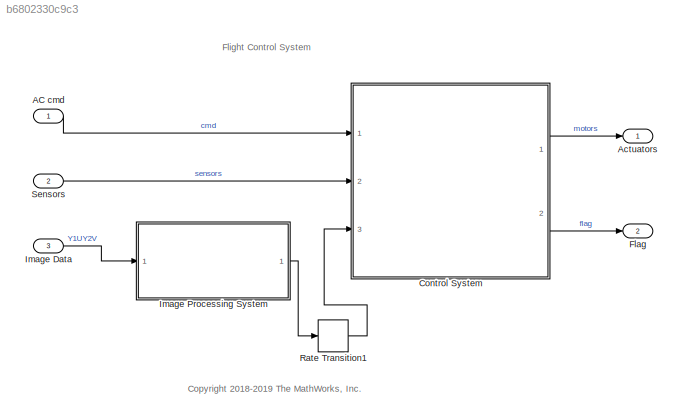
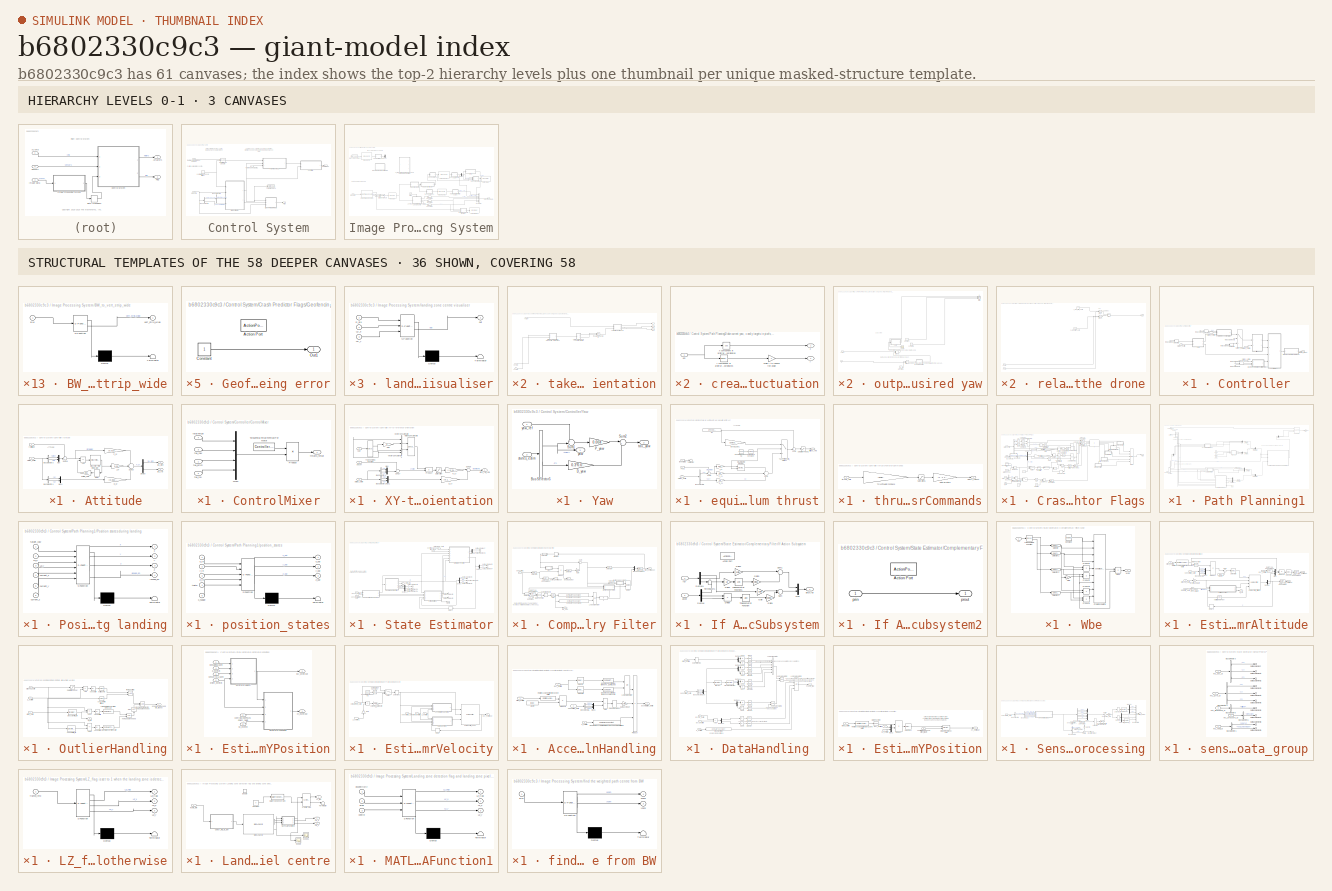
[diagram: thumbnail index - top-2 hierarchy levels (3 canvases) + 36 structural-template representatives of the remaining 58 canvases]
MODEL slx_b6802330c9c3
KIND model
CONFIG AbsTol = auto
CONFIG EnableMultiTasking = on
CONFIG FixedStep = Ts
CONFIG MaxStep = auto
CONFIG MinStep = auto
CONFIG RelTol = 1e-3
CONFIG SampleTimeConstraint = Unconstrained
CONFIG Solver = ode3
CONFIG SolverName = ode3
CONFIG StartTime = 0
CONFIG StopTime = TFinal
BLOCK [Inport] AC cmd
  BusOutputAsStruct = on
  OutDataTypeStr = Bus: CommandBus
BLOCK [Outport] Actuators
  OutDataTypeStr = single
  PortDimensions = 4
  VectorParamsAs1DForOutWhenUnconnected = off
BLOCK [SubSystem] Control System
  InitFcn = codertarget.parrot.internal.fcsSubsystemCallback(gcb);
  Ports = [3, 2]
  RTWSystemCode = Reusable function
  RequestExecContextInheritance = off
  SystemSampleTime = Ts
  TreatAsAtomicUnit = on
BLOCK [BusSelector] Control System/Bus Selector1
  OutputSignals = opticalFlow_data
  Ports = [1, 1]
BLOCK [BusSelector] Control System/Bus Selector4
  OutputSignals = VisionSensors,SensorCalibration
  Ports = [1, 2]
BLOCK [BusAssignment] Control System/Control Mode Update
  AssignedSignals = controlModePosVSOrient
  Ports = [2, 1]
BLOCK [SubSystem] Control System/Controller
  Ports = [2, 1]
  RequestExecContextInheritance = off
BLOCK [SubSystem] Control System/Controller/Attitude
  Ports = [2, 2]
  RequestExecContextInheritance = off
BLOCK [Sum] Control System/Controller/Attitude/Add
  IconShape = rectangular
  Inputs = +-
  Ports = [2, 1]
BLOCK [BusSelector] Control System/Controller/Attitude/Bus Selector3
  OutputSignals = pitch,roll
  Ports = [1, 2]
BLOCK [BusSelector] Control System/Controller/Attitude/Bus Selector4
  OutputSignals = q,p
  Ports = [1, 2]
BLOCK [Gain] Control System/Controller/Attitude/D_pr
  Gain = [0.002;0.003]
BLOCK [Delay] Control System/Controller/Attitude/Delay
  DelayLength = 1
  InitialCondition = 0
  InputPortMap = u0
  Ports = [1, 1]
BLOCK [Demux] Control System/Controller/Attitude/Demux
  Outputs = 2
  Ports = [1, 2]
BLOCK [DiscreteIntegrator] Control System/Controller/Attitude/Discrete-Time Integrator
  ICPrevOutput = DiscIntNeverNeededParam
  ICPrevScaledInput = DiscIntNeverNeededParam
  InitialConditionSetting = Auto
  LimitOutput = on
  LowerSaturationLimit = -2
  Ports = [1, 1]
  SampleTime = Ts
  UpperSaturationLimit = 2
BLOCK [Gain] Control System/Controller/Attitude/I_pr
  Gain = 0.01
BLOCK [Mux] Control System/Controller/Attitude/Mux
  DisplayOption = bar
  Inputs = 2
  Ports = [2, 1]
BLOCK [Mux] Control System/Controller/Attitude/Mux1
  DisplayOption = bar
  Inputs = 2
  Ports = [2, 1]
BLOCK [Gain] Control System/Controller/Attitude/P_pr
  Gain = [0.013;0.011]
BLOCK [Sum] Control System/Controller/Attitude/Sum16
  AccumDataTypeStr = single
  Inputs = ++-
  OutDataTypeStr = single
  Ports = [3, 1]
  SaturateOnIntegerOverflow = on
BLOCK [Sum] Control System/Controller/Attitude/Sum19
  Inputs = +-|
  Ports = [2, 1]
BLOCK [Gain] Control System/Controller/Attitude/antiWU_Gain
  Gain = 0.001
BLOCK [Inport] Control System/Controller/Attitude/refAttitude
BLOCK [Inport] Control System/Controller/Attitude/states_estim
  Port = 2
BLOCK [Outport] Control System/Controller/Attitude/tau_pitch
  VectorParamsAs1DForOutWhenUnconnected = off
BLOCK [Outport] Control System/Controller/Attitude/tau_roll
  Port = 2
  VectorParamsAs1DForOutWhenUnconnected = off
BLOCK [SubSystem] Control System/Controller/ControlMixer
  Ports = [4, 1]
  RequestExecContextInheritance = off
BLOCK [Mux] Control System/Controller/ControlMixer/Mux2
  DisplayOption = bar
  Ports = [4, 1]
BLOCK [Product] Control System/Controller/ControlMixer/Product
  Multiplication = Matrix(*)
  Ports = [2, 1]
  RndMeth = Zero
BLOCK [Constant] Control System/Controller/ControlMixer/TorqueTotalThrustToThrustPerMotor
  NameLocation = top
  OutDataTypeStr = single
  Value = Controller.Q2Ts
BLOCK [Inport] Control System/Controller/ControlMixer/tau_pitch
BLOCK [Inport] Control System/Controller/ControlMixer/tau_roll
  Port = 2
BLOCK [Inport] Control System/Controller/ControlMixer/tau_yaw
  Port = 3
BLOCK [Outport] Control System/Controller/ControlMixer/thrusts_refout
  VectorParamsAs1DForOutWhenUnconnected = off
BLOCK [Inport] Control System/Controller/ControlMixer/totalThrust
  Port = 4
BLOCK [Inport] Control System/Controller/In Bus Element
BLOCK [Inport] Control System/Controller/In Bus Element1
BLOCK [Inport] Control System/Controller/In Bus Element2
BLOCK [Inport] Control System/Controller/In Bus Element3
BLOCK [Inport] Control System/Controller/In Bus Element5
BLOCK [Inport] Control System/Controller/In Bus Element6
BLOCK [Selector] Control System/Controller/Selector
  IndexOptions = Index vector (dialog)
  Indices = 3
  InputPortWidth = 3
  OutputSizes = 1
  Ports = [1, 1]
BLOCK [Selector] Control System/Controller/Selector1
  IndexOptions = Index vector (dialog)
  Indices = [1 2]
  InputPortWidth = 3
  OutputSizes = 1
  Ports = [1, 1]
BLOCK [Selector] Control System/Controller/Selector2
  IndexOptions = Index vector (dialog)
  Indices = [2 3]
  InputPortWidth = 3
  OutputSizes = 1
  Ports = [1, 1]
BLOCK [Selector] Control System/Controller/Selector3
  IndexOptions = Index vector (dialog)
  Indices = 1
  InputPortWidth = 3
  OutputSizes = 1
  Ports = [1, 1]
BLOCK [Switch] Control System/Controller/Switch_refAtt
  Criteria = u2 > Threshold
  InputSameDT = off
  SaturateOnIntegerOverflow = off
BLOCK [SubSystem] Control System/Controller/XY-to-reference-orientation
  Ports = [3, 1]
  RequestExecContextInheritance = off
BLOCK [BusSelector] Control System/Controller/XY-to-reference-orientation/Bus Selector1
  OutputSignals = X,Y
  Ports = [1, 2]
BLOCK [BusSelector] Control System/Controller/XY-to-reference-orientation/Bus Selector2
  OutputSignals = dx,dy
  Ports = [1, 2]
BLOCK [Gain] Control System/Controller/XY-to-reference-orientation/D_xy
  Gain = [0.1, -0.1]
  OutDataTypeStr = single
  ParamDataTypeStr = single
  SaturateOnIntegerOverflow = on
BLOCK [Gain] Control System/Controller/XY-to-reference-orientation/Gain
  Gain = -1
BLOCK [Concatenate] Control System/Controller/XY-to-reference-orientation/Matrix Concatenate
  ConcatenateDimension = 2
  Mode = Multidimensional array
  Ports = [2, 1]
BLOCK [Mux] Control System/Controller/XY-to-reference-orientation/Mux
  DisplayOption = bar
  Inputs = 2
  Ports = [2, 1]
BLOCK [Mux] Control System/Controller/XY-to-reference-orientation/Mux1
  DisplayOption = bar
  Inputs = 2
  Ports = [2, 1]
BLOCK [Gain] Control System/Controller/XY-to-reference-orientation/P_xy
  Gain = [-0.24,0.24]
  OutDataTypeStr = single
  ParamDataTypeStr = single
  SaturateOnIntegerOverflow = on
BLOCK [Product] Control System/Controller/XY-to-reference-orientation/Product
  Multiplication = Matrix(*)
  OutDataTypeStr = single
  Ports = [2, 1]
  RndMeth = Zero
BLOCK [Saturate] Control System/Controller/XY-to-reference-orientation/Saturation
  LowerLimit = -3
  OutDataTypeStr = single
  UpperLimit = 3
BLOCK [Sum] Control System/Controller/XY-to-reference-orientation/Sum17
  AccumDataTypeStr = single
  Inputs = +-|
  Ports = [2, 1]
BLOCK [Sum] Control System/Controller/XY-to-reference-orientation/Sum18
  AccumDataTypeStr = single
  Inputs = |++
  OutDataTypeStr = single
  Ports = [2, 1]
  SaturateOnIntegerOverflow = on
BLOCK [Trigonometry] Control System/Controller/XY-to-reference-orientation/Trigonometric Function
  Operator = sincos
  Ports = [1, 2]
BLOCK [Concatenate] Control System/Controller/XY-to-reference-orientation/Vector Concatenate
  Ports = [2, 1]
BLOCK [Concatenate] Control System/Controller/XY-to-reference-orientation/Vector Concatenate1
  Ports = [2, 1]
BLOCK [Outport] Control System/Controller/XY-to-reference-orientation/pitch_roll_cmd
  VectorParamsAs1DForOutWhenUnconnected = off
BLOCK [Inport] Control System/Controller/XY-to-reference-orientation/posXY
BLOCK [Inport] Control System/Controller/XY-to-reference-orientation/states_estim
  Port = 2
BLOCK [Inport] Control System/Controller/XY-to-reference-orientation/yaw
  Port = 3
BLOCK [SubSystem] Control System/Controller/Yaw
  Ports = [2, 2]
  RequestExecContextInheritance = off
BLOCK [BusSelector] Control System/Controller/Yaw/Bus Selector5
  OutputSignals = yaw,r
  Ports = [1, 2]
BLOCK [Gain] Control System/Controller/Yaw/D_yaw
  Gain = 0.3*0.004
BLOCK [Gain] Control System/Controller/Yaw/P_yaw
  Gain = 0.004
  OutDataTypeStr = single
  ParamDataTypeStr = single
BLOCK [Sum] Control System/Controller/Yaw/Sum1
  AccumDataTypeStr = single
  Inputs = +-|
  OutDataTypeStr = single
  Ports = [2, 1]
  SaturateOnIntegerOverflow = on
BLOCK [Sum] Control System/Controller/Yaw/Sum2
  Inputs = |+-
  Ports = [2, 1]
BLOCK [Inport] Control System/Controller/Yaw/states_estim
  Port = 2
BLOCK [Outport] Control System/Controller/Yaw/tau_yaw
  Port = 2
  VectorParamsAs1DForOutWhenUnconnected = off
BLOCK [Outport] Control System/Controller/Yaw/yaw
  VectorParamsAs1DForOutWhenUnconnected = off
BLOCK [Inport] Control System/Controller/Yaw/yaw_ref
BLOCK [SubSystem] Control System/Controller/gravity feedforward//equilibrium thrust
  Ports = [3, 1]
  RequestExecContextInheritance = off
BLOCK [BusSelector] Control System/Controller/gravity feedforward//equilibrium thrust/Bus Selector1
  OutputSignals = Z,dz
  Ports = [1, 2]
BLOCK [Reference] Control System/Controller/gravity feedforward//equilibrium thrust/Compare To Constant  REF=simulink/Logic and Bit
Operations/Compare
To Constant
  Ports = [1, 1]
  SourceBlock = simulink/Logic and Bit\nOperations/Compare\nTo Constant
  SourceProductBaseCode = SL
  SourceType = Compare To Constant
BLOCK [Reference] Control System/Controller/gravity feedforward//equilibrium thrust/Counter Free-Running  REF=simulink/Sources/Counter
Free-Running
  Ports = [0, 1]
  SourceBlock = simulink/Sources/Counter\nFree-Running
  SourceProductBaseCode = SL
  SourceType = Counter Free-Running
BLOCK [Gain] Control System/Controller/gravity feedforward//equilibrium thrust/D_z1
  Gain = 0.5
  OutDataTypeStr = single
  ParamDataTypeStr = single
  SaturateOnIntegerOverflow = on
BLOCK [DiscreteIntegrator] Control System/Controller/gravity feedforward//equilibrium thrust/Discrete-Time Integrator
  ExternalReset = falling
  ICPrevOutput = DiscIntNeverNeededParam
  ICPrevScaledInput = DiscIntNeverNeededParam
  InitialConditionSetting = Auto
  LimitOutput = on
  LowerSaturationLimit = -2
  Ports = [2, 1]
  SampleTime = Ts
  UpperSaturationLimit = 2
BLOCK [Gain] Control System/Controller/gravity feedforward//equilibrium thrust/I_pr
  Gain = 0.24
BLOCK [Gain] Control System/Controller/gravity feedforward//equilibrium thrust/P_z1
  Gain = 0.8
  OutDataTypeStr = single
  ParamDataTypeStr = single
  SaturateOnIntegerOverflow = on
BLOCK [Inport] Control System/Controller/gravity feedforward//equilibrium thrust/PosZ
  Port = 2
BLOCK [Saturate] Control System/Controller/gravity feedforward//equilibrium thrust/SaturationThrust1
  LowerLimit = -4*Controller.totalThrustMaxRelative*Controller.motorsThrustPerMotorMax
  OutDataTypeStr = single
  UpperLimit = 4*Controller.totalThrustMaxRelative*Controller.motorsThrustPerMotorMax
BLOCK [Sum] Control System/Controller/gravity feedforward//equilibrium thrust/Sum1
  AccumDataTypeStr = single
  Inputs = ++-
  OutDataTypeStr = single
  Ports = [3, 1]
  SaturateOnIntegerOverflow = on
BLOCK [Sum] Control System/Controller/gravity feedforward//equilibrium thrust/Sum2
  AccumDataTypeStr = single
  Inputs = +-|
  OutDataTypeStr = single
  Ports = [2, 1]
  SaturateOnIntegerOverflow = on
BLOCK [Sum] Control System/Controller/gravity feedforward//equilibrium thrust/Sum5
  AccumDataTypeStr = single
  Inputs = ++|
  OutDataTypeStr = single
  Ports = [2, 1]
  SaturateOnIntegerOverflow = on
BLOCK [Switch] Control System/Controller/gravity feedforward//equilibrium thrust/TakeoffOrControl_Switch1
  Criteria = u2 > Threshold
  InputSameDT = off
  SaturateOnIntegerOverflow = off
BLOCK [Terminator] Control System/Controller/gravity feedforward//equilibrium thrust/Terminator
BLOCK [Outport] Control System/Controller/gravity feedforward//equilibrium thrust/altitude_cmd
  VectorParamsAs1DForOutWhenUnconnected = off
BLOCK [Inport] Control System/Controller/gravity feedforward//equilibrium thrust/states_estim
BLOCK [Inport] Control System/Controller/gravity feedforward//equilibrium thrust/takeoff_flag
  Port = 3
BLOCK [Gain] Control System/Controller/gravity feedforward//equilibrium thrust/takeoff_gain1
  Gain = Controller.takeoffGain
  OutDataTypeStr = single
  ParamDataTypeStr = single
  SaturateOnIntegerOverflow = on
BLOCK [Constant] Control System/Controller/gravity feedforward//equilibrium thrust/w1
  OutDataTypeStr = single
  SampleTime = Ts
  Value = -g*Vehicle.Airframe.mass
BLOCK [Outport] Control System/Controller/motors_refout
  VectorParamsAs1DForOutWhenUnconnected = off
BLOCK [Inport] Control System/Controller/states_estim
  Port = 2
BLOCK [InportShadow] Control System/Controller/states_estim1
  Port = 2
BLOCK [InportShadow] Control System/Controller/states_estim2
  Port = 2
BLOCK [InportShadow] Control System/Controller/states_estim3
  Port = 2
BLOCK [SubSystem] Control System/Controller/thrustsToMotorCommands
  Ports = [1, 1]
  RequestExecContextInheritance = off
BLOCK [Gain] Control System/Controller/thrustsToMotorCommands/MotorDirections
  Gain = [1 -1 1 -1]
BLOCK [Saturate] Control System/Controller/thrustsToMotorCommands/Saturation5
  LowerLimit = Vehicle.Motor.minLimit
  UpperLimit = Vehicle.Motor.maxLimit
BLOCK [Gain] Control System/Controller/thrustsToMotorCommands/ThrustToMotorCommand
  Gain = -Vehicle.Motor.thrustToMotorCommand
BLOCK [Outport] Control System/Controller/thrustsToMotorCommands/motors_cmdout
  VectorParamsAs1DForOutWhenUnconnected = off
BLOCK [Inport] Control System/Controller/thrustsToMotorCommands/thrusts_refin
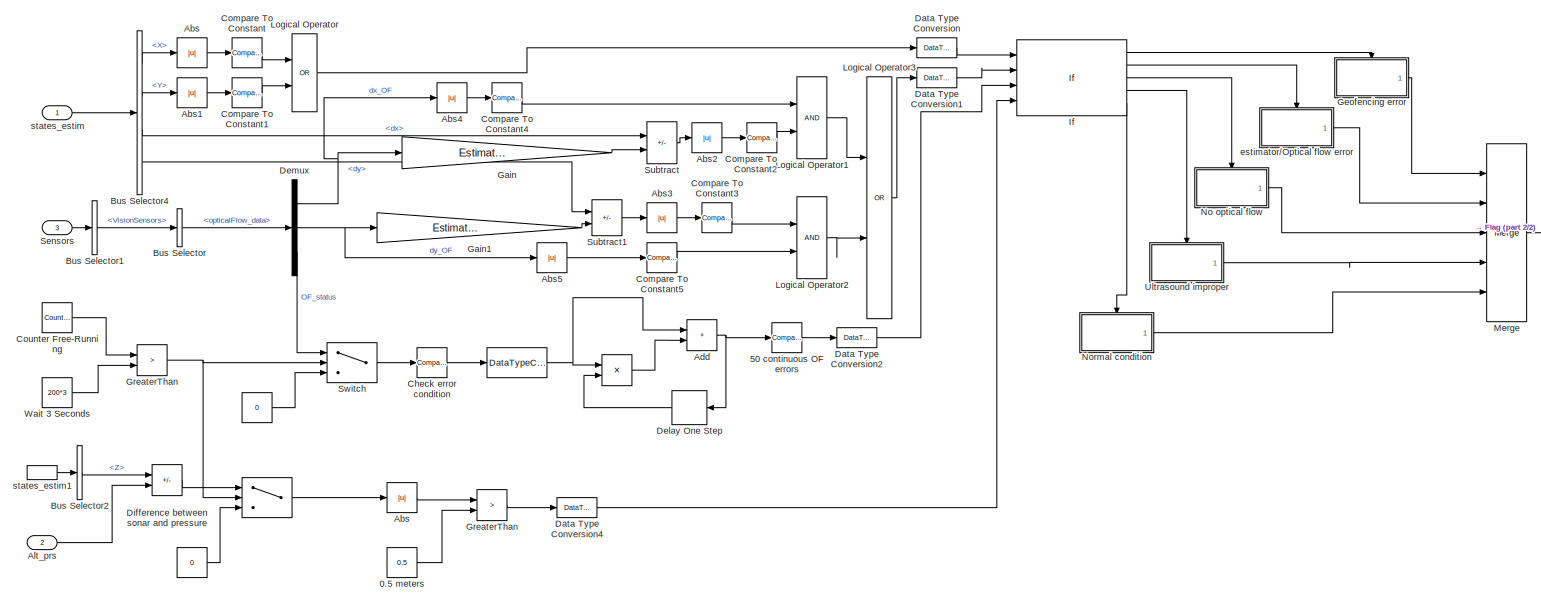
[diagram: Control System/Crash Predictor Flags - part 1/2, most of the canvas]
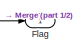
[diagram: Control System/Crash Predictor Flags - part 2/2, middle right region]
BLOCK [SubSystem] Control System/Crash Predictor Flags
  Ports = [3, 1]
  RequestExecContextInheritance = off
BLOCK [Constant] Control System/Crash Predictor Flags/ 
  Value = 0
BLOCK [Product] Control System/Crash Predictor Flags/  
  Inputs = **
  Ports = [2, 1]
BLOCK [DataTypeConversion] Control System/Crash Predictor Flags/   
  RndMeth = Floor
  SaturateOnIntegerOverflow = off
BLOCK [Constant] Control System/Crash Predictor Flags/    
  OutDataTypeStr = single
  Value = 0
BLOCK [Switch] Control System/Crash Predictor Flags/         
  Criteria = u2 > Threshold
  InputSameDT = off
  SaturateOnIntegerOverflow = off
BLOCK [Constant] Control System/Crash Predictor Flags/0.5 meters
  Value = 0.5
BLOCK [Reference] Control System/Crash Predictor Flags/50 continuous OF errors   REF=simulink/Logic and Bit
Operations/Compare
To Constant
  Ports = [1, 1]
  SourceBlock = simulink/Logic and Bit\nOperations/Compare\nTo Constant
  SourceProductBaseCode = SL
  SourceType = Compare To Constant
BLOCK [Abs] Control System/Crash Predictor Flags/Abs
  SaturateOnIntegerOverflow = off
BLOCK [Abs] Control System/Crash Predictor Flags/Abs  
  SaturateOnIntegerOverflow = off
BLOCK [Abs] Control System/Crash Predictor Flags/Abs1
  SaturateOnIntegerOverflow = off
BLOCK [Abs] Control System/Crash Predictor Flags/Abs2
  SaturateOnIntegerOverflow = off
BLOCK [Abs] Control System/Crash Predictor Flags/Abs3
  SaturateOnIntegerOverflow = off
BLOCK [Abs] Control System/Crash Predictor Flags/Abs4
  SaturateOnIntegerOverflow = off
BLOCK [Abs] Control System/Crash Predictor Flags/Abs5
  SaturateOnIntegerOverflow = off
BLOCK [Sum] Control System/Crash Predictor Flags/Add
  IconShape = rectangular
  Ports = [2, 1]
BLOCK [Inport] Control System/Crash Predictor Flags/Alt_prs
  Port = 2
BLOCK [BusSelector] Control System/Crash Predictor Flags/Bus Selector
  OutputSignals = opticalFlow_data
  Ports = [1, 1]
BLOCK [BusSelector] Control System/Crash Predictor Flags/Bus Selector1
  OutputSignals = VisionSensors
  Ports = [1, 1]
BLOCK [BusSelector] Control System/Crash Predictor Flags/Bus Selector2
  OutputSignals = Z
  Ports = [1, 1]
BLOCK [BusSelector] Control System/Crash Predictor Flags/Bus Selector4
  OutputSignals = X,Y,dx,dy
  Ports = [1, 4]
BLOCK [Reference] Control System/Crash Predictor Flags/Check error condition  REF=simulink/Logic and Bit
Operations/Compare
To Constant
  Ports = [1, 1]
  SourceBlock = simulink/Logic and Bit\nOperations/Compare\nTo Constant
  SourceProductBaseCode = SL
  SourceType = Compare To Constant
BLOCK [Reference] Control System/Crash Predictor Flags/Compare To Constant  REF=simulink/Logic and Bit
Operations/Compare
To Constant
  Ports = [1, 1]
  SourceBlock = simulink/Logic and Bit\nOperations/Compare\nTo Constant
  SourceProductBaseCode = SL
  SourceType = Compare To Constant
BLOCK [Reference] Control System/Crash Predictor Flags/Compare To Constant1  REF=simulink/Logic and Bit
Operations/Compare
To Constant
  Ports = [1, 1]
  SourceBlock = simulink/Logic and Bit\nOperations/Compare\nTo Constant
  SourceProductBaseCode = SL
  SourceType = Compare To Constant
BLOCK [Reference] Control System/Crash Predictor Flags/Compare To Constant2  REF=simulink/Logic and Bit
Operations/Compare
To Constant
  Ports = [1, 1]
  SourceBlock = simulink/Logic and Bit\nOperations/Compare\nTo Constant
  SourceProductBaseCode = SL
  SourceType = Compare To Constant
BLOCK [Reference] Control System/Crash Predictor Flags/Compare To Constant3  REF=simulink/Logic and Bit
Operations/Compare
To Constant
  Ports = [1, 1]
  SourceBlock = simulink/Logic and Bit\nOperations/Compare\nTo Constant
  SourceProductBaseCode = SL
  SourceType = Compare To Constant
BLOCK [Reference] Control System/Crash Predictor Flags/Compare To Constant4  REF=simulink/Logic and Bit
Operations/Compare
To Constant
  Ports = [1, 1]
  SourceBlock = simulink/Logic and Bit\nOperations/Compare\nTo Constant
  SourceProductBaseCode = SL
  SourceType = Compare To Constant
BLOCK [Reference] Control System/Crash Predictor Flags/Compare To Constant5  REF=simulink/Logic and Bit
Operations/Compare
To Constant
  Ports = [1, 1]
  SourceBlock = simulink/Logic and Bit\nOperations/Compare\nTo Constant
  SourceProductBaseCode = SL
  SourceType = Compare To Constant
BLOCK [Reference] Control System/Crash Predictor Flags/Counter Free-Running  REF=simulink/Sources/Counter
Free-Running
  Ports = [0, 1]
  SourceBlock = simulink/Sources/Counter\nFree-Running
  SourceProductBaseCode = SL
  SourceType = Counter Free-Running
BLOCK [DataTypeConversion] Control System/Crash Predictor Flags/Data Type Conversion
  OutDataTypeStr = uint8
  RndMeth = Nearest
  SaturateOnIntegerOverflow = off
BLOCK [DataTypeConversion] Control System/Crash Predictor Flags/Data Type Conversion1
  OutDataTypeStr = uint8
  RndMeth = Nearest
  SaturateOnIntegerOverflow = off
BLOCK [DataTypeConversion] Control System/Crash Predictor Flags/Data Type Conversion2
  OutDataTypeStr = uint8
  RndMeth = Nearest
  SaturateOnIntegerOverflow = off
BLOCK [DataTypeConversion] Control System/Crash Predictor Flags/Data Type Conversion4
  OutDataTypeStr = uint8
  RndMeth = Nearest
  SaturateOnIntegerOverflow = off
BLOCK [Delay] Control System/Crash Predictor Flags/Delay One Step
  DelayLength = 1
  InputPortMap = u0
  Ports = [1, 1]
BLOCK [Demux] Control System/Crash Predictor Flags/Demux
  Outputs = 3
  Ports = [1, 3]
BLOCK [Sum] Control System/Crash Predictor Flags/Difference between sonar and pressure
  IconShape = rectangular
  Inputs = +-
  Ports = [2, 1]
BLOCK [Outport] Control System/Crash Predictor Flags/Flag
  VectorParamsAs1DForOutWhenUnconnected = off
BLOCK [Gain] Control System/Crash Predictor Flags/Gain
  Gain = Estimator.pos.visDeltaXYMax
BLOCK [Gain] Control System/Crash Predictor Flags/Gain1
  Gain = Estimator.pos.visDeltaXYMax
BLOCK [SubSystem] Control System/Crash Predictor Flags/Geofencing error
  Ports = [0, 1, 0, 0, 0, 0, 0, 1]
  RequestExecContextInheritance = off
  TreatAsAtomicUnit = on
BLOCK [ActionPort] Control System/Crash Predictor Flags/Geofencing error/Action Port
  ActionPortLabel = if(u1 > 0)
BLOCK [Constant] Control System/Crash Predictor Flags/Geofencing error/Constant
  OutDataTypeStr = uint8
BLOCK [Outport] Control System/Crash Predictor Flags/Geofencing error/Out1
  VectorParamsAs1DForOutWhenUnconnected = off
BLOCK [RelationalOperator] Control System/Crash Predictor Flags/GreaterThan
  InputSameDT = off
  Operator = >
  OutDataTypeStr = boolean
  Ports = [2, 1]
  RndMeth = Simplest
BLOCK [RelationalOperator] Control System/Crash Predictor Flags/GreaterThan  
  InputSameDT = off
  NameLocation = top
  Operator = >
  OutDataTypeStr = boolean
  Ports = [2, 1]
  RndMeth = Simplest
BLOCK [If] Control System/Crash Predictor Flags/If
  ElseIfExpressions = u2 > 0, u3> 0,u4>0
  NumInputs = 4
  Ports = [4, 5]
BLOCK [Logic] Control System/Crash Predictor Flags/Logical Operator
  AllPortsSameDT = off
  Operator = OR
  Ports = [2, 1]
BLOCK [Logic] Control System/Crash Predictor Flags/Logical Operator1
  AllPortsSameDT = off
  OutDataTypeStr = boolean
  Ports = [2, 1]
BLOCK [Logic] Control System/Crash Predictor Flags/Logical Operator2
  AllPortsSameDT = off
  OutDataTypeStr = boolean
  Ports = [2, 1]
BLOCK [Logic] Control System/Crash Predictor Flags/Logical Operator3
  AllPortsSameDT = off
  Operator = OR
  Ports = [2, 1]
BLOCK [Merge] Control System/Crash Predictor Flags/Merge
  InitialOutput = 0
  Inputs = 5
  Ports = [5, 1]
BLOCK [SubSystem] Control System/Crash Predictor Flags/No optical flow 
  Ports = [0, 1, 0, 0, 0, 0, 0, 1]
  RequestExecContextInheritance = off
  TreatAsAtomicUnit = on
BLOCK [ActionPort] Control System/Crash Predictor Flags/No optical flow /Action Port
  ActionPortLabel = elseif( u3> 0)
BLOCK [Constant] Control System/Crash Predictor Flags/No optical flow /Constant
  OutDataTypeStr = uint8
  Value = 69
BLOCK [Outport] Control System/Crash Predictor Flags/No optical flow /Out1
  VectorParamsAs1DForOutWhenUnconnected = off
BLOCK [SubSystem] Control System/Crash Predictor Flags/Normal condition
  Ports = [0, 1, 0, 0, 0, 0, 0, 1]
  RequestExecContextInheritance = off
  TreatAsAtomicUnit = on
BLOCK [ActionPort] Control System/Crash Predictor Flags/Normal condition/Action Port
  ActionPortLabel = else
BLOCK [Constant] Control System/Crash Predictor Flags/Normal condition/Constant
  OutDataTypeStr = uint8
  Value = 0
BLOCK [Outport] Control System/Crash Predictor Flags/Normal condition/Out1
  VectorParamsAs1DForOutWhenUnconnected = off
BLOCK [Inport] Control System/Crash Predictor Flags/Sensors
  Port = 3
BLOCK [Sum] Control System/Crash Predictor Flags/Subtract
  IconShape = rectangular
  Inputs = -+
  Ports = [2, 1]
BLOCK [Sum] Control System/Crash Predictor Flags/Subtract1
  IconShape = rectangular
  Inputs = -+
  Ports = [2, 1]
BLOCK [Switch] Control System/Crash Predictor Flags/Switch
  Criteria = u2 > Threshold
  InputSameDT = off
  SaturateOnIntegerOverflow = off
BLOCK [SubSystem] Control System/Crash Predictor Flags/Ultrasound improper
  Ports = [0, 1, 0, 0, 0, 0, 0, 1]
  RequestExecContextInheritance = off
  TreatAsAtomicUnit = on
BLOCK [ActionPort] Control System/Crash Predictor Flags/Ultrasound improper/Action Port
  ActionPortLabel = elseif(u4>0)
BLOCK [Constant] Control System/Crash Predictor Flags/Ultrasound improper/Constant
  OutDataTypeStr = uint8
  Value = 88
BLOCK [Outport] Control System/Crash Predictor Flags/Ultrasound improper/Out1
  VectorParamsAs1DForOutWhenUnconnected = off
BLOCK [Constant] Control System/Crash Predictor Flags/Wait  3 Seconds
  Value = 200*3
BLOCK [SubSystem] Control System/Crash Predictor Flags/estimator//Optical flow error
  Ports = [0, 1, 0, 0, 0, 0, 0, 1]
  RequestExecContextInheritance = off
  TreatAsAtomicUnit = on
BLOCK [ActionPort] Control System/Crash Predictor Flags/estimator//Optical flow error/Action Port
  ActionPortLabel = elseif(u2 > 0)
BLOCK [Constant] Control System/Crash Predictor Flags/estimator//Optical flow error/Constant
  OutDataTypeStr = uint8
  Value = 99
BLOCK [Outport] Control System/Crash Predictor Flags/estimator//Optical flow error/Out1
  VectorParamsAs1DForOutWhenUnconnected = off
BLOCK [Inport] Control System/Crash Predictor Flags/states_estim
BLOCK [InportShadow] Control System/Crash Predictor Flags/states_estim1
BLOCK [Outport] Control System/Flag
  Port = 2
  VectorParamsAs1DForOutWhenUnconnected = off
BLOCK [SubSystem] Control System/Path Planning1
  Ports = [3, 1]
  RequestExecContextInheritance = off
BLOCK [BusAssignment] Control System/Path Planning1/Bus Assignment1
  AssignedSignals = orient_ref,pos_ref
  Ports = [3, 1]
BLOCK [BusSelector] Control System/Path Planning1/Bus Selector
  OutputSignals = X,Y,Z,roll,pitch,yaw
  Ports = [1, 6]
BLOCK [BusSelector] Control System/Path Planning1/Bus Selector1
  OutputSignals = turn_flag,unrestricted_centre,restricted_centre,LZ_flag,LZ_x,LZ_y
  Ports = [1, 6]
BLOCK [Constant] Control System/Path Planning1/Constant5
  Value = 0
BLOCK [Constant] Control System/Path Planning1/Constant6
  Value = -1
BLOCK [Constant] Control System/Path Planning1/Constant7
  Value = 0
BLOCK [DataTypeConversion] Control System/Path Planning1/Data Type Conversion
  OutDataTypeStr = double
  RndMeth = Floor
  SaturateOnIntegerOverflow = off
BLOCK [DataTypeConversion] Control System/Path Planning1/Data Type Conversion1
  OutDataTypeStr = single
  RndMeth = Floor
  SaturateOnIntegerOverflow = off
BLOCK [DataTypeConversion] Control System/Path Planning1/Data Type Conversion2
  OutDataTypeStr = single
  RndMeth = Floor
  SaturateOnIntegerOverflow = off
BLOCK [DataTypeConversion] Control System/Path Planning1/Data Type Conversion3
  OutDataTypeStr = single
  RndMeth = Floor
  SaturateOnIntegerOverflow = off
BLOCK [DataTypeConversion] Control System/Path Planning1/Data Type Conversion4
  OutDataTypeStr = single
  RndMeth = Floor
  SaturateOnIntegerOverflow = off
BLOCK [Demux] Control System/Path Planning1/Demux
  Outputs = 2
  Ports = [1, 2]
BLOCK [Demux] Control System/Path Planning1/Demux1
  Outputs = 2
  Ports = [1, 2]
BLOCK [SubSystem] Control System/Path Planning1/Determine which reference signals to pass based on the flight stage
  ErrorFcn = Stateflow.Translate.translate
  PermitHierarchicalResolution = ExplicitOnly
  Ports = [3, 1]
  RequestExecContextInheritance = off
  SFBlockType = Chart
  TreatAsAtomicUnit = on
BLOCK [Demux] Control System/Path Planning1/Determine which reference signals to pass based on the flight stage/ Demux 
  Outputs = 1
  Ports = [1, 1]
BLOCK [S-Function] Control System/Path Planning1/Determine which reference signals to pass based on the flight stage/ SFunction 
  EnableBusSupport = on
  FunctionName = sf_sfun
  PortCounts = [3 2]
  Ports = [3, 2]
  SFcnIsStateOwnerBlock = off
  SFunctionDeploymentMode = off
  Tag = Stateflow S-Function 7
BLOCK [Terminator] Control System/Path Planning1/Determine which reference signals to pass based on the flight stage/ Terminator 
BLOCK [Inport] Control System/Path Planning1/Determine which reference signals to pass based on the flight stage/LZ_flag
BLOCK [Inport] Control System/Path Planning1/Determine which reference signals to pass based on the flight stage/landing_ref
  Port = 3
BLOCK [Inport] Control System/Path Planning1/Determine which reference signals to pass based on the flight stage/path_following_ref
  Port = 2
BLOCK [Outport] Control System/Path Planning1/Determine which reference signals to pass based on the flight stage/ref_out
BLOCK [Inport] Control System/Path Planning1/EstimatedVal
  Port = 2
BLOCK [Mux] Control System/Path Planning1/Mux
  DisplayOption = bar
  Inputs = 3
  Ports = [3, 1]
BLOCK [Mux] Control System/Path Planning1/Mux1
  DisplayOption = bar
  Inputs = 3
  Ports = [3, 1]
BLOCK [Mux] Control System/Path Planning1/Mux2
  DisplayOption = bar
  Inputs = 3
  Ports = [3, 1]
BLOCK [SubSystem] Control System/Path Planning1/Position states during landing
  ErrorFcn = Stateflow.Translate.translate
  PermitHierarchicalResolution = ExplicitOnly
  Ports = [6, 4]
  RequestExecContextInheritance = off
  SFBlockType = MATLAB Function
  TreatAsAtomicUnit = on
BLOCK [Demux] Control System/Path Planning1/Position states during landing/ Demux 
  Outputs = 1
  Ports = [1, 1]
BLOCK [S-Function] Control System/Path Planning1/Position states during landing/ SFunction 
  EnableBusSupport = on
  FunctionName = sf_sfun
  PortCounts = [6 5]
  Ports = [6, 5]
  SFcnIsStateOwnerBlock = off
  SFunctionDeploymentMode = off
  Tag = Stateflow S-Function 8
BLOCK [Terminator] Control System/Path Planning1/Position states during landing/ Terminator 
BLOCK [Inport] Control System/Path Planning1/Position states during landing/LZ_x
  Port = 2
BLOCK [Inport] Control System/Path Planning1/Position states during landing/LZ_y
  Port = 3
BLOCK [Inport] Control System/Path Planning1/Position states during landing/current_x
  Port = 4
BLOCK [Inport] Control System/Path Planning1/Position states during landing/current_y
  Port = 5
BLOCK [Inport] Control System/Path Planning1/Position states during landing/current_z
  Port = 6
BLOCK [Outport] Control System/Path Planning1/Position states during landing/locked_on
  Port = 4
BLOCK [Inport] Control System/Path Planning1/Position states during landing/target_yaw
BLOCK [Outport] Control System/Path Planning1/Position states during landing/x
BLOCK [Outport] Control System/Path Planning1/Position states during landing/y
  Port = 2
BLOCK [Outport] Control System/Path Planning1/Position states during landing/z
  Port = 3
BLOCK [Inport] Control System/Path Planning1/ReferenceValueServerCmds
BLOCK [Scope] Control System/Path Planning1/Scope
  Commented = on
  Floating = off
  NumInputPorts = 1
  Ports = [1]
  ScopeSpecificationString = Simulink.scopes.TimeScopeBlockCfg('CurrentConfiguration', extmgr.ConfigurationSet(extmgr.Configuration('Core','General UI',true),extmgr.Configuration('Core','Source UI',true),extmgr.Configuration('Sources','WiredSimulink',true,'DataLoggingVariableName','ScopeData2'),extmgr.Configuration('Visuals','Time Domain',true,'SerializedDisplays',{struct('MinYLimReal','-0.125','MaxYLimReal','1.125','YLabelRe...<+1416ch>
BLOCK [Outport] Control System/Path Planning1/UpdatedReferenceCmds
  VectorParamsAs1DForOutWhenUnconnected = off
BLOCK [Inport] Control System/Path Planning1/Vision-based Data
  Port = 3
BLOCK [Mux] Control System/Path Planning1/landing positions and orientations
  DisplayOption = bar
  Inputs = 2
  Ports = [2, 1]
BLOCK [Mux] Control System/Path Planning1/line following pos and orientations
  DisplayOption = bar
  Inputs = 2
  Ports = [2, 1]
BLOCK [Mux] Control System/Path Planning1/position references
  DisplayOption = bar
  Inputs = 3
  Ports = [3, 1]
BLOCK [SubSystem] Control System/Path Planning1/position_states
  ErrorFcn = Stateflow.Translate.translate
  PermitHierarchicalResolution = ExplicitOnly
  Ports = [5, 3]
  RequestExecContextInheritance = off
  SFBlockType = Chart
  TreatAsAtomicUnit = on
BLOCK [Demux] Control System/Path Planning1/position_states/ Demux 
  Outputs = 1
  Ports = [1, 1]
BLOCK [S-Function] Control System/Path Planning1/position_states/ SFunction 
  EnableBusSupport = on
  FunctionName = sf_sfun
  PortCounts = [5 4]
  Ports = [5, 4]
  SFcnIsStateOwnerBlock = off
  SFunctionDeploymentMode = off
  Tag = Stateflow S-Function 4
BLOCK [Terminator] Control System/Path Planning1/position_states/ Terminator 
BLOCK [Inport] Control System/Path Planning1/position_states/theta
  Port = 4
BLOCK [Inport] Control System/Path Planning1/position_states/x_in
BLOCK [Inport] Control System/Path Planning1/position_states/x_nudge
  Port = 5
BLOCK [Outport] Control System/Path Planning1/position_states/x_out
BLOCK [Inport] Control System/Path Planning1/position_states/y_in
  Port = 2
BLOCK [Outport] Control System/Path Planning1/position_states/y_out
  Port = 2
BLOCK [Inport] Control System/Path Planning1/position_states/z_in
  Port = 3
BLOCK [Outport] Control System/Path Planning1/position_states/z_out
  Port = 3
BLOCK [SubSystem] Control System/Path Planning1/take current yaw, x and y targets in pixels, output the target orientation
  Ports = [3, 3]
  RequestExecContextInheritance = off
BLOCK [Inport] Control System/Path Planning1/take current yaw, x and y targets in pixels, output the target orientation/<xcom>
  Port = 2
BLOCK [Inport] Control System/Path Planning1/take current yaw, x and y targets in pixels, output the target orientation/<yaw>
BLOCK [Inport] Control System/Path Planning1/take current yaw, x and y targets in pixels, output the target orientation/<ycom>
  Port = 3
BLOCK [Outport] Control System/Path Planning1/take current yaw, x and y targets in pixels, output the target orientation/Out2
  Port = 2
BLOCK [Outport] Control System/Path Planning1/take current yaw, x and y targets in pixels, output the target orientation/Out3
  Port = 3
BLOCK [SubSystem] Control System/Path Planning1/take current yaw, x and y targets in pixels, output the target orientation/create scaled x and y coordinates for finding an error angle less prone to fluctuation
  Ports = [1, 2]
  RequestExecContextInheritance = off
BLOCK [Trigonometry] Control System/Path Planning1/take current yaw, x and y targets in pixels, output the target orientation/create scaled x and y coordinates for finding an error angle less prone to fluctuation/ y component in arbitrary coordinates
  Ports = [1, 1]
BLOCK [Inport] Control System/Path Planning1/take current yaw, x and y targets in pixels, output the target orientation/create scaled x and y coordinates for finding an error angle less prone to fluctuation/phi
BLOCK [Gain] Control System/Path Planning1/take current yaw, x and y targets in pixels, output the target orientation/create scaled x and y coordinates for finding an error angle less prone to fluctuation/scale y to reduce the angle
  Gain = 4
BLOCK [Outport] Control System/Path Planning1/take current yaw, x and y targets in pixels, output the target orientation/create scaled x and y coordinates for finding an error angle less prone to fluctuation/x
BLOCK [Trigonometry] Control System/Path Planning1/take current yaw, x and y targets in pixels, output the target orientation/create scaled x and y coordinates for finding an error angle less prone to fluctuation/x component in arbitrary coordinates
  Operator = cos
  Ports = [1, 1]
BLOCK [Outport] Control System/Path Planning1/take current yaw, x and y targets in pixels, output the target orientation/create scaled x and y coordinates for finding an error angle less prone to fluctuation/y
  Port = 2
BLOCK [SubSystem] Control System/Path Planning1/take current yaw, x and y targets in pixels, output the target orientation/output the desired yaw
  Ports = [2, 3]
  RequestExecContextInheritance = off
BLOCK [Inport] Control System/Path Planning1/take current yaw, x and y targets in pixels, output the target orientation/output the desired yaw/<yaw>
BLOCK [SubSystem] Control System/Path Planning1/take current yaw, x and y targets in pixels, output the target orientation/output the desired yaw/Chart
  ErrorFcn = Stateflow.Translate.translate
  PermitHierarchicalResolution = ExplicitOnly
  Ports = [1, 1]
  RequestExecContextInheritance = off
  SFBlockType = Chart
  TreatAsAtomicUnit = on
BLOCK [Demux] Control System/Path Planning1/take current yaw, x and y targets in pixels, output the target orientation/output the desired yaw/Chart/ Demux 
  Outputs = 1
  Ports = [1, 1]
BLOCK [S-Function] Control System/Path Planning1/take current yaw, x and y targets in pixels, output the target orientation/output the desired yaw/Chart/ SFunction 
  EnableBusSupport = on
  FunctionName = sf_sfun
  PortCounts = [1 2]
  Ports = [1, 2]
  SFcnIsStateOwnerBlock = off
  SFunctionDeploymentMode = off
  Tag = Stateflow S-Function 3
BLOCK [Terminator] Control System/Path Planning1/take current yaw, x and y targets in pixels, output the target orientation/output the desired yaw/Chart/ Terminator 
BLOCK [Inport] Control System/Path Planning1/take current yaw, x and y targets in pixels, output the target orientation/output the desired yaw/Chart/input_theta
BLOCK [Outport] Control System/Path Planning1/take current yaw, x and y targets in pixels, output the target orientation/output the desired yaw/Chart/z
BLOCK [Constant] Control System/Path Planning1/take current yaw, x and y targets in pixels, output the target orientation/output the desired yaw/Constant
  Value = 0
BLOCK [Constant] Control System/Path Planning1/take current yaw, x and y targets in pixels, output the target orientation/output the desired yaw/Constant1
  Value = 0
BLOCK [Constant] Control System/Path Planning1/take current yaw, x and y targets in pixels, output the target orientation/output the desired yaw/Constant4
  Value = pi/2
BLOCK [SubSystem] Control System/Path Planning1/take current yaw, x and y targets in pixels, output the target orientation/output the desired yaw/MATLAB Function
  ErrorFcn = Stateflow.Translate.translate
  PermitHierarchicalResolution = ExplicitOnly
  Ports = [1, 1]
  RequestExecContextInheritance = off
  SFBlockType = MATLAB Function
  TreatAsAtomicUnit = on
BLOCK [Demux] Control System/Path Planning1/take current yaw, x and y targets in pixels, output the target orientation/output the desired yaw/MATLAB Function/ Demux 
  Outputs = 1
  Ports = [1, 1]
BLOCK [S-Function] Control System/Path Planning1/take current yaw, x and y targets in pixels, output the target orientation/output the desired yaw/MATLAB Function/ SFunction 
  EnableBusSupport = on
  FunctionName = sf_sfun
  PortCounts = [1 2]
  Ports = [1, 2]
  SFcnIsStateOwnerBlock = off
  SFunctionDeploymentMode = off
  Tag = Stateflow S-Function 6
BLOCK [Terminator] Control System/Path Planning1/take current yaw, x and y targets in pixels, output the target orientation/output the desired yaw/MATLAB Function/ Terminator 
BLOCK [Inport] Control System/Path Planning1/take current yaw, x and y targets in pixels, output the target orientation/output the desired yaw/MATLAB Function/u
BLOCK [Outport] Control System/Path Planning1/take current yaw, x and y targets in pixels, output the target orientation/output the desired yaw/MATLAB Function/y
BLOCK [Sum] Control System/Path Planning1/take current yaw, x and y targets in pixels, output the target orientation/output the desired yaw/Minus2
  IconShape = rectangular
  Inputs = +-
  Ports = [2, 1]
BLOCK [Sum] Control System/Path Planning1/take current yaw, x and y targets in pixels, output the target orientation/output the desired yaw/Minus3
  IconShape = rectangular
  Ports = [2, 1]
BLOCK [Outport] Control System/Path Planning1/take current yaw, x and y targets in pixels, output the target orientation/output the desired yaw/Out2
  Port = 2
BLOCK [Outport] Control System/Path Planning1/take current yaw, x and y targets in pixels, output the target orientation/output the desired yaw/Out3
  Port = 3
BLOCK [Scope] Control System/Path Planning1/take current yaw, x and y targets in pixels, output the target orientation/output the desired yaw/Scope
  Floating = off
  NumInputPorts = 1
  Ports = [1]
  ScopeSpecificationString = Simulink.scopes.TimeScopeBlockCfg('CurrentConfiguration', extmgr.ConfigurationSet(extmgr.Configuration('Core','General UI',true),extmgr.Configuration('Core','Source UI',true),extmgr.Configuration('Sources','WiredSimulink',true),extmgr.Configuration('Visuals','Time Domain',true,'SerializedDisplays',{struct('MinYLimReal','-1.00000','MaxYLimReal','1.00000','YLabelReal','','MinYLimMag','0.00000','MaxY...<+1355ch>
BLOCK [Inport] Control System/Path Planning1/take current yaw, x and y targets in pixels, output the target orientation/output the desired yaw/a
  Port = 2
BLOCK [Outport] Control System/Path Planning1/take current yaw, x and y targets in pixels, output the target orientation/output the desired yaw/z
BLOCK [SubSystem] Control System/Path Planning1/take current yaw, x and y targets in pixels, output the target orientation/relative angle Phi of the pixel centre to the centre of mass measured anticlockwise from east in the frame of the drone
  Ports = [2, 1]
  RequestExecContextInheritance = off
BLOCK [Trigonometry] Control System/Path Planning1/take current yaw, x and y targets in pixels, output the target orientation/relative angle Phi of the pixel centre to the centre of mass measured anticlockwise from east in the frame of the drone/Atan2
  Operator = atan2
  Ports = [2, 1]
BLOCK [Sum] Control System/Path Planning1/take current yaw, x and y targets in pixels, output the target orientation/relative angle Phi of the pixel centre to the centre of mass measured anticlockwise from east in the frame of the drone/Minus
  IconShape = rectangular
  Inputs = +-
  Ports = [2, 1]
BLOCK [Sum] Control System/Path Planning1/take current yaw, x and y targets in pixels, output the target orientation/relative angle Phi of the pixel centre to the centre of mass measured anticlockwise from east in the frame of the drone/Minus1
  IconShape = rectangular
  Inputs = +-
  Ports = [2, 1]
BLOCK [Outport] Control System/Path Planning1/take current yaw, x and y targets in pixels, output the target orientation/relative angle Phi of the pixel centre to the centre of mass measured anticlockwise from east in the frame of the drone/Phi
BLOCK [Constant] Control System/Path Planning1/take current yaw, x and y targets in pixels, output the target orientation/relative angle Phi of the pixel centre to the centre of mass measured anticlockwise from east in the frame of the drone/x_pixel_grid_centre
  Value = 80
BLOCK [Inport] Control System/Path Planning1/take current yaw, x and y targets in pixels, output the target orientation/relative angle Phi of the pixel centre to the centre of mass measured anticlockwise from east in the frame of the drone/xcom
BLOCK [Constant] Control System/Path Planning1/take current yaw, x and y targets in pixels, output the target orientation/relative angle Phi of the pixel centre to the centre of mass measured anticlockwise from east in the frame of the drone/y_pixel_grid_centre
  Value = 60
BLOCK [Inport] Control System/Path Planning1/take current yaw, x and y targets in pixels, output the target orientation/relative angle Phi of the pixel centre to the centre of mass measured anticlockwise from east in the frame of the drone/ycom
  Port = 2
BLOCK [Trigonometry] Control System/Path Planning1/take current yaw, x and y targets in pixels, output the target orientation/the adjusted angle (a)
  Operator = atan2
  Ports = [2, 1]
BLOCK [Outport] Control System/Path Planning1/take current yaw, x and y targets in pixels, output the target orientation/z
BLOCK [SubSystem] Control System/Path Planning1/take current yaw, x and y targets in pixels, output the target orientation1
  Ports = [3, 3]
  RequestExecContextInheritance = off
BLOCK [Inport] Control System/Path Planning1/take current yaw, x and y targets in pixels, output the target orientation1/<xcom>
  Port = 2
BLOCK [Inport] Control System/Path Planning1/take current yaw, x and y targets in pixels, output the target orientation1/<yaw>
BLOCK [Inport] Control System/Path Planning1/take current yaw, x and y targets in pixels, output the target orientation1/<ycom>
  Port = 3
BLOCK [Outport] Control System/Path Planning1/take current yaw, x and y targets in pixels, output the target orientation1/Out2
  Port = 2
BLOCK [Outport] Control System/Path Planning1/take current yaw, x and y targets in pixels, output the target orientation1/Out3
BLOCK [SubSystem] Control System/Path Planning1/take current yaw, x and y targets in pixels, output the target orientation1/create scaled x and y coordinates for finding an error angle less prone to fluctuation
  Ports = [1, 2]
  RequestExecContextInheritance = off
BLOCK [Trigonometry] Control System/Path Planning1/take current yaw, x and y targets in pixels, output the target orientation1/create scaled x and y coordinates for finding an error angle less prone to fluctuation/ y component in arbitrary coordinates
  Ports = [1, 1]
BLOCK [Inport] Control System/Path Planning1/take current yaw, x and y targets in pixels, output the target orientation1/create scaled x and y coordinates for finding an error angle less prone to fluctuation/phi
BLOCK [Gain] Control System/Path Planning1/take current yaw, x and y targets in pixels, output the target orientation1/create scaled x and y coordinates for finding an error angle less prone to fluctuation/scale y to reduce the angle
  Gain = 2
BLOCK [Outport] Control System/Path Planning1/take current yaw, x and y targets in pixels, output the target orientation1/create scaled x and y coordinates for finding an error angle less prone to fluctuation/x
BLOCK [Trigonometry] Control System/Path Planning1/take current yaw, x and y targets in pixels, output the target orientation1/create scaled x and y coordinates for finding an error angle less prone to fluctuation/x component in arbitrary coordinates
  Operator = cos
  Ports = [1, 1]
BLOCK [Outport] Control System/Path Planning1/take current yaw, x and y targets in pixels, output the target orientation1/create scaled x and y coordinates for finding an error angle less prone to fluctuation/y
  Port = 2
BLOCK [SubSystem] Control System/Path Planning1/take current yaw, x and y targets in pixels, output the target orientation1/output the desired yaw
  Ports = [2, 3]
  RequestExecContextInheritance = off
BLOCK [Inport] Control System/Path Planning1/take current yaw, x and y targets in pixels, output the target orientation1/output the desired yaw/<yaw>
BLOCK [SubSystem] Control System/Path Planning1/take current yaw, x and y targets in pixels, output the target orientation1/output the desired yaw/Chart
  ErrorFcn = Stateflow.Translate.translate
  PermitHierarchicalResolution = ExplicitOnly
  Ports = [1, 1]
  RequestExecContextInheritance = off
  SFBlockType = Chart
  TreatAsAtomicUnit = on
BLOCK [Demux] Control System/Path Planning1/take current yaw, x and y targets in pixels, output the target orientation1/output the desired yaw/Chart/ Demux 
  Outputs = 1
  Ports = [1, 1]
BLOCK [S-Function] Control System/Path Planning1/take current yaw, x and y targets in pixels, output the target orientation1/output the desired yaw/Chart/ SFunction 
  EnableBusSupport = on
  FunctionName = sf_sfun
  PortCounts = [1 2]
  Ports = [1, 2]
  SFcnIsStateOwnerBlock = off
  SFunctionDeploymentMode = off
  Tag = Stateflow S-Function 9
BLOCK [Terminator] Control System/Path Planning1/take current yaw, x and y targets in pixels, output the target orientation1/output the desired yaw/Chart/ Terminator 
BLOCK [Inport] Control System/Path Planning1/take current yaw, x and y targets in pixels, output the target orientation1/output the desired yaw/Chart/input_theta
BLOCK [Outport] Control System/Path Planning1/take current yaw, x and y targets in pixels, output the target orientation1/output the desired yaw/Chart/z
BLOCK [Constant] Control System/Path Planning1/take current yaw, x and y targets in pixels, output the target orientation1/output the desired yaw/Constant
  Value = 0
BLOCK [Constant] Control System/Path Planning1/take current yaw, x and y targets in pixels, output the target orientation1/output the desired yaw/Constant1
  Value = 0
BLOCK [Constant] Control System/Path Planning1/take current yaw, x and y targets in pixels, output the target orientation1/output the desired yaw/Constant4
  Value = pi/2
BLOCK [SubSystem] Control System/Path Planning1/take current yaw, x and y targets in pixels, output the target orientation1/output the desired yaw/MATLAB Function
  ErrorFcn = Stateflow.Translate.translate
  PermitHierarchicalResolution = ExplicitOnly
  Ports = [1, 1]
  RequestExecContextInheritance = off
  SFBlockType = MATLAB Function
  TreatAsAtomicUnit = on
BLOCK [Demux] Control System/Path Planning1/take current yaw, x and y targets in pixels, output the target orientation1/output the desired yaw/MATLAB Function/ Demux 
  Outputs = 1
  Ports = [1, 1]
BLOCK [S-Function] Control System/Path Planning1/take current yaw, x and y targets in pixels, output the target orientation1/output the desired yaw/MATLAB Function/ SFunction 
  EnableBusSupport = on
  FunctionName = sf_sfun
  PortCounts = [1 2]
  Ports = [1, 2]
  SFcnIsStateOwnerBlock = off
  SFunctionDeploymentMode = off
  Tag = Stateflow S-Function 10
BLOCK [Terminator] Control System/Path Planning1/take current yaw, x and y targets in pixels, output the target orientation1/output the desired yaw/MATLAB Function/ Terminator 
BLOCK [Inport] Control System/Path Planning1/take current yaw, x and y targets in pixels, output the target orientation1/output the desired yaw/MATLAB Function/u
BLOCK [Outport] Control System/Path Planning1/take current yaw, x and y targets in pixels, output the target orientation1/output the desired yaw/MATLAB Function/y
BLOCK [Sum] Control System/Path Planning1/take current yaw, x and y targets in pixels, output the target orientation1/output the desired yaw/Minus2
  IconShape = rectangular
  Inputs = +-
  Ports = [2, 1]
BLOCK [Sum] Control System/Path Planning1/take current yaw, x and y targets in pixels, output the target orientation1/output the desired yaw/Minus3
  IconShape = rectangular
  Ports = [2, 1]
BLOCK [Outport] Control System/Path Planning1/take current yaw, x and y targets in pixels, output the target orientation1/output the desired yaw/Out2
  Port = 2
BLOCK [Outport] Control System/Path Planning1/take current yaw, x and y targets in pixels, output the target orientation1/output the desired yaw/Out3
  Port = 3
BLOCK [Scope] Control System/Path Planning1/take current yaw, x and y targets in pixels, output the target orientation1/output the desired yaw/Scope
  Floating = off
  NumInputPorts = 1
  Ports = [1]
  ScopeSpecificationString = Simulink.scopes.TimeScopeBlockCfg('CurrentConfiguration', extmgr.ConfigurationSet(extmgr.Configuration('Core','General UI',true),extmgr.Configuration('Core','Source UI',true),extmgr.Configuration('Sources','WiredSimulink',true),extmgr.Configuration('Visuals','Time Domain',true,'SerializedDisplays',{struct('MinYLimReal','-1.00000','MaxYLimReal','1.00000','YLabelReal','','MinYLimMag','0.00000','MaxY...<+1355ch>
BLOCK [Inport] Control System/Path Planning1/take current yaw, x and y targets in pixels, output the target orientation1/output the desired yaw/a
  Port = 2
BLOCK [Outport] Control System/Path Planning1/take current yaw, x and y targets in pixels, output the target orientation1/output the desired yaw/z
BLOCK [SubSystem] Control System/Path Planning1/take current yaw, x and y targets in pixels, output the target orientation1/relative angle Phi of the pixel centre to the centre of mass measured anticlockwise from east in the frame of the drone
  Ports = [2, 1]
  RequestExecContextInheritance = off
BLOCK [Trigonometry] Control System/Path Planning1/take current yaw, x and y targets in pixels, output the target orientation1/relative angle Phi of the pixel centre to the centre of mass measured anticlockwise from east in the frame of the drone/Atan2
  Operator = atan2
  Ports = [2, 1]
BLOCK [Sum] Control System/Path Planning1/take current yaw, x and y targets in pixels, output the target orientation1/relative angle Phi of the pixel centre to the centre of mass measured anticlockwise from east in the frame of the drone/Minus
  IconShape = rectangular
  Inputs = +-
  Ports = [2, 1]
BLOCK [Sum] Control System/Path Planning1/take current yaw, x and y targets in pixels, output the target orientation1/relative angle Phi of the pixel centre to the centre of mass measured anticlockwise from east in the frame of the drone/Minus1
  IconShape = rectangular
  Inputs = +-
  Ports = [2, 1]
BLOCK [Outport] Control System/Path Planning1/take current yaw, x and y targets in pixels, output the target orientation1/relative angle Phi of the pixel centre to the centre of mass measured anticlockwise from east in the frame of the drone/Phi
BLOCK [Constant] Control System/Path Planning1/take current yaw, x and y targets in pixels, output the target orientation1/relative angle Phi of the pixel centre to the centre of mass measured anticlockwise from east in the frame of the drone/x_pixel_grid_centre
  Value = 80
BLOCK [Inport] Control System/Path Planning1/take current yaw, x and y targets in pixels, output the target orientation1/relative angle Phi of the pixel centre to the centre of mass measured anticlockwise from east in the frame of the drone/xcom
BLOCK [Constant] Control System/Path Planning1/take current yaw, x and y targets in pixels, output the target orientation1/relative angle Phi of the pixel centre to the centre of mass measured anticlockwise from east in the frame of the drone/y_pixel_grid_centre
  Value = 60
BLOCK [Inport] Control System/Path Planning1/take current yaw, x and y targets in pixels, output the target orientation1/relative angle Phi of the pixel centre to the centre of mass measured anticlockwise from east in the frame of the drone/ycom
  Port = 2
BLOCK [Trigonometry] Control System/Path Planning1/take current yaw, x and y targets in pixels, output the target orientation1/the adjusted angle (a)
  Operator = atan2
  Ports = [2, 1]
BLOCK [Outport] Control System/Path Planning1/take current yaw, x and y targets in pixels, output the target orientation1/z
  Port = 3
BLOCK [Inport] Control System/ReferenceValueServerCmds
  OutDataTypeStr = Bus: CommandBus
BLOCK [Inport] Control System/Sensors
  BusOutputAsStruct = on
  OutDataTypeStr = Bus: SensorsBus
  Port = 2
BLOCK [SubSystem] Control System/State Estimator
  Ports = [4, 2]
  RequestExecContextInheritance = off
BLOCK [Outport] Control System/State Estimator/Alt_prs
  Port = 2
  VectorParamsAs1DForOutWhenUnconnected = off
BLOCK [SubSystem] Control System/State Estimator/Complementary Filter
  Ports = [1, 4]
  RequestExecContextInheritance = off
BLOCK [Reference] Control System/State Estimator/Complementary Filter/Compare To Constant  REF=simulink/Logic and Bit
Operations/Compare
To Constant
  Ports = [1, 1]
  SourceBlock = simulink/Logic and Bit\nOperations/Compare\nTo Constant
  SourceProductBaseCode = SL
  SourceType = Compare To Constant
BLOCK [Reference] Control System/State Estimator/Complementary Filter/Compare To Constant1  REF=simulink/Logic and Bit
Operations/Compare
To Constant
  Ports = [1, 1]
  SourceBlock = simulink/Logic and Bit\nOperations/Compare\nTo Constant
  SourceProductBaseCode = SL
  SourceType = Compare To Constant
BLOCK [Constant] Control System/State Estimator/Complementary Filter/Constant
  OutDataTypeStr = single
  Value = 2
BLOCK [DataTypeConversion] Control System/State Estimator/Complementary Filter/Data Type Conversion1
  OutDataTypeStr = single
  RndMeth = Floor
  SaturateOnIntegerOverflow = off
BLOCK [DataTypeConversion] Control System/State Estimator/Complementary Filter/Data Type Conversion2
  OutDataTypeStr = single
  RndMeth = Floor
  SaturateOnIntegerOverflow = off
BLOCK [DataTypeConversion] Control System/State Estimator/Complementary Filter/Data Type Conversion3
  OutDataTypeStr = single
  RndMeth = Floor
  SaturateOnIntegerOverflow = off
BLOCK [Gain] Control System/State Estimator/Complementary Filter/Gain
  Gain = Ts/Estimator.gyroscopeSensitivity
BLOCK [If] Control System/State Estimator/Complementary Filter/If
  Ports = [1, 2]
BLOCK [SubSystem] Control System/State Estimator/Complementary Filter/If Action Subsystem
  NameLocation = top
  Ports = [2, 1, 0, 0, 0, 0, 0, 1]
  RequestExecContextInheritance = off
  TreatAsAtomicUnit = on
BLOCK [ActionPort] Control System/State Estimator/Complementary Filter/If Action Subsystem/Action Port
  ActionPortLabel = if(u1 > 0)
BLOCK [Demux] Control System/State Estimator/Complementary Filter/If Action Subsystem/Demux
  Outputs = 3
  Ports = [1, 3]
BLOCK [Demux] Control System/State Estimator/Complementary Filter/If Action Subsystem/Demux1
  Outputs = 3
  Ports = [1, 3]
BLOCK [Product] Control System/State Estimator/Complementary Filter/If Action Subsystem/Divide
  Inputs = */
  Ports = [2, 1]
BLOCK [Gain] Control System/State Estimator/Complementary Filter/If Action Subsystem/Gain
  Gain = 1-Estimator.gyroAngleUpdateAccWeight
BLOCK [Gain] Control System/State Estimator/Complementary Filter/If Action Subsystem/Gain1
  Gain = Estimator.gyroAngleUpdateAccWeight
BLOCK [Gain] Control System/State Estimator/Complementary Filter/If Action Subsystem/Gain2
  Gain = 1/g
BLOCK [Gain] Control System/State Estimator/Complementary Filter/If Action Subsystem/Gain3
  Gain = Estimator.gyroAngleUpdateAccWeight
BLOCK [Gain] Control System/State Estimator/Complementary Filter/If Action Subsystem/Gain4
  Gain = 1-Estimator.gyroAngleUpdateAccWeight
BLOCK [Mux] Control System/State Estimator/Complementary Filter/If Action Subsystem/Mux
  DisplayOption = bar
  Inputs = 2
  Ports = [2, 1]
BLOCK [Sum] Control System/State Estimator/Complementary Filter/If Action Subsystem/Sum
  Inputs = |++
  Ports = [2, 1]
BLOCK [Sum] Control System/State Estimator/Complementary Filter/If Action Subsystem/Sum1
  Inputs = |++
  Ports = [2, 1]
BLOCK [Terminator] Control System/State Estimator/Complementary Filter/If Action Subsystem/Terminator1
BLOCK [Trigonometry] Control System/State Estimator/Complementary Filter/If Action Subsystem/Trigonometric Function
  Operator = atan
  Ports = [1, 1]
BLOCK [Trigonometry] Control System/State Estimator/Complementary Filter/If Action Subsystem/Trigonometric Function1
  Operator = asin
  Ports = [1, 1]
BLOCK [Inport] Control System/State Estimator/Complementary Filter/If Action Subsystem/accel
  Port = 2
BLOCK [Outport] Control System/State Estimator/Complementary Filter/If Action Subsystem/pitch,roll
  VectorParamsAs1DForOutWhenUnconnected = off
BLOCK [Inport] Control System/State Estimator/Complementary Filter/If Action Subsystem/rpy
BLOCK [SubSystem] Control System/State Estimator/Complementary Filter/If Action Subsystem2
  NameLocation = top
  Ports = [1, 1, 0, 0, 0, 0, 0, 1]
  RequestExecContextInheritance = off
  TreatAsAtomicUnit = on
BLOCK [ActionPort] Control System/State Estimator/Complementary Filter/If Action Subsystem2/Action Port
  ActionPortLabel = else
BLOCK [Inport] Control System/State Estimator/Complementary Filter/If Action Subsystem2/prin
BLOCK [Outport] Control System/State Estimator/Complementary Filter/If Action Subsystem2/prout
  VectorParamsAs1DForOutWhenUnconnected = off
BLOCK [Logic] Control System/State Estimator/Complementary Filter/Logical Operator
  AllPortsSameDT = off
  OutDataTypeStr = fixdt(1,16)
  Ports = [2, 1]
BLOCK [Math] Control System/State Estimator/Complementary Filter/Math Function
  Operator = pow
  Ports = [2, 1]
  SignedPower = on
BLOCK [Memory] Control System/State Estimator/Complementary Filter/Memory
  InheritSampleTime = on
  InitialCondition = single(Estimator.complementaryFilterInit)
BLOCK [Merge] Control System/State Estimator/Complementary Filter/Merge
  Ports = [2, 1]
BLOCK [Mux] Control System/State Estimator/Complementary Filter/Mux
  DisplayOption = bar
  Inputs = 2
  Ports = [2, 1]
BLOCK [Product] Control System/State Estimator/Complementary Filter/Product
  Multiplication = Matrix(*)
  Ports = [2, 1]
BLOCK [Selector] Control System/State Estimator/Complementary Filter/Selector
  IndexOptions = Index vector (dialog)
  Indices = [3 2 1]
  InputPortWidth = 3
  OutputSizes = 1
  Ports = [1, 1]
BLOCK [Selector] Control System/State Estimator/Complementary Filter/Selector1
  IndexOptions = Index vector (dialog)
  Indices = [4 5 6]
  InputPortWidth = 6
  OutputSizes = 1
  Ports = [1, 1]
BLOCK [Selector] Control System/State Estimator/Complementary Filter/Selector2
  IndexOptions = Index vector (dialog)
  Indices = [1 2 3]
  InputPortWidth = 6
  OutputSizes = 1
  Ports = [1, 1]
BLOCK [Selector] Control System/State Estimator/Complementary Filter/Selector3
  IndexOptions = Index vector (dialog)
  Indices = [2 1]
  InputPortWidth = 3
  OutputSizes = 1
  Ports = [1, 1]
BLOCK [Selector] Control System/State Estimator/Complementary Filter/Selector4
  IndexOptions = Index vector (dialog)
  Indices = [3]
  InputPortWidth = 3
  OutputSizes = 1
  Ports = [1, 1]
BLOCK [Selector] Control System/State Estimator/Complementary Filter/Selector5
  IndexOptions = Index vector (dialog)
  Indices = [3 2 1]
  InputPortWidth = 3
  OutputSizes = 1
  Ports = [1, 1]
BLOCK [Sqrt] Control System/State Estimator/Complementary Filter/Sqrt
BLOCK [Sum] Control System/State Estimator/Complementary Filter/Sum
  Inputs = |++
  Ports = [2, 1]
BLOCK [Sum] Control System/State Estimator/Complementary Filter/Sum of Elements
  IconShape = rectangular
  Inputs = +
  Ports = [1, 1]
BLOCK [SubSystem] Control System/State Estimator/Complementary Filter/Wbe
  Ports = [1, 1]
  RequestExecContextInheritance = off
BLOCK [Constant] Control System/State Estimator/Complementary Filter/Wbe/Constant
  Value = single(0)
BLOCK [Reference] Control System/State Estimator/Complementary Filter/Wbe/Create 3x3 Matrix  REF=sharedutil/Create 3x3 Matrix
  Ports = [9, 1]
  SourceBlock = sharedutil/Create 3x3 Matrix
  SourceProductBaseCode = AE,PW,MT,VE,VP
  SourceType = Create 3x3 Matrix
BLOCK [Product] Control System/State Estimator/Complementary Filter/Wbe/Divide
  Inputs = */
  Ports = [2, 1]
BLOCK [Gain] Control System/State Estimator/Complementary Filter/Wbe/Gain
  Gain = -1
BLOCK [Product] Control System/State Estimator/Complementary Filter/Wbe/Product1
  Ports = [2, 1]
BLOCK [Product] Control System/State Estimator/Complementary Filter/Wbe/Product2
  Ports = [2, 1]
BLOCK [Product] Control System/State Estimator/Complementary Filter/Wbe/Product3
  Ports = [2, 1]
BLOCK [Product] Control System/State Estimator/Complementary Filter/Wbe/Product4
  Ports = [2, 1]
BLOCK [Selector] Control System/State Estimator/Complementary Filter/Wbe/Selector
  IndexOptions = Index vector (dialog)
  Indices = [1]
  InputPortWidth = 3
  OutputSizes = 1
  Ports = [1, 1]
BLOCK [Selector] Control System/State Estimator/Complementary Filter/Wbe/Selector1
  IndexOptions = Index vector (dialog)
  Indices = [1]
  InputPortWidth = 3
  OutputSizes = 1
  Ports = [1, 1]
BLOCK [Selector] Control System/State Estimator/Complementary Filter/Wbe/Selector2
  IndexOptions = Index vector (dialog)
  Indices = [2]
  InputPortWidth = 3
  OutputSizes = 1
  Ports = [1, 1]
BLOCK [Selector] Control System/State Estimator/Complementary Filter/Wbe/Selector3
  IndexOptions = Index vector (dialog)
  Indices = [2]
  InputPortWidth = 3
  OutputSizes = 1
  Ports = [1, 1]
BLOCK [Trigonometry] Control System/State Estimator/Complementary Filter/Wbe/Trigonometric Function
  Operator = sincos
  Ports = [1, 2]
BLOCK [Outport] Control System/State Estimator/Complementary Filter/Wbe/Wbe
  VectorParamsAs1DForOutWhenUnconnected = off
BLOCK [Inport] Control System/State Estimator/Complementary Filter/Wbe/rpy
  OutDataTypeStr = single
BLOCK [Outport] Control System/State Estimator/Complementary Filter/deuler_datout
  Port = 2
  VectorParamsAs1DForOutWhenUnconnected = off
BLOCK [Outport] Control System/State Estimator/Complementary Filter/dorient_estimaout
  Port = 4
  VectorParamsAs1DForOutWhenUnconnected = off
BLOCK [Outport] Control System/State Estimator/Complementary Filter/imu_abs
  OutDataTypeStr = single
  Port = 3
  VectorParamsAs1DForOutWhenUnconnected = off
BLOCK [Outport] Control System/State Estimator/Complementary Filter/orient_estimaout
  VectorParamsAs1DForOutWhenUnconnected = off
BLOCK [Inport] Control System/State Estimator/Complementary Filter/sensorIMU
  OutDataTypeStr = single
BLOCK [Delay] Control System/State Estimator/Delay1
  DelayLength = 1
  InitialCondition = 0
  InputPortMap = u0
  Ports = [1, 1]
BLOCK [Demux] Control System/State Estimator/Demux
  Outputs = 3
  Ports = [1, 3]
BLOCK [Demux] Control System/State Estimator/Demux1
  Outputs = 3
  Ports = [1, 3]
BLOCK [Demux] Control System/State Estimator/Demux3
  Outputs = 2
  Ports = [1, 2]
BLOCK [Demux] Control System/State Estimator/Demux4
  Outputs = 2
  Ports = [1, 2]
BLOCK [SubSystem] Control System/State Estimator/EstimatorAltitude
  Ports = [5, 3]
  RequestExecContextInheritance = off
BLOCK [Outport] Control System/State Estimator/EstimatorAltitude/Alt_prs
  Port = 3
  VectorParamsAs1DForOutWhenUnconnected = off
BLOCK [BusSelector] Control System/State Estimator/EstimatorAltitude/Bus Selector2
  OutputSignals = ddx,ddy,ddz
  Ports = [1, 3]
BLOCK [DataTypeConversion] Control System/State Estimator/EstimatorAltitude/Data Type Conversion
  OutDataTypeStr = single
  RndMeth = Floor
BLOCK [DataTypeConversion] Control System/State Estimator/EstimatorAltitude/Data Type Conversion1
  OutDataTypeStr = double
  RndMeth = Floor
BLOCK [DataTypeConversion] Control System/State Estimator/EstimatorAltitude/Data Type Conversion2
  OutDataTypeStr = single
  RndMeth = Floor
BLOCK [Delay] Control System/State Estimator/EstimatorAltitude/Delay2
  DelayLength = 1
  InitialCondition = 0
  InputPortMap = u0
  NameLocation = top
  Ports = [1, 1]
BLOCK [Demux] Control System/State Estimator/EstimatorAltitude/Demux
  Outputs = 2
  Ports = [1, 2]
BLOCK [Reference] Control System/State Estimator/EstimatorAltitude/KalmanFilter_altitude  REF=ctrlSharedLib/Kalman Filter
  Ports = [4, 1]
  SourceBlock = ctrlSharedLib/Kalman Filter
  SourceProductBaseCode = CT,ID
  SourceType = ctrlKalmanFilter
BLOCK [Math] Control System/State Estimator/EstimatorAltitude/Math Function
  Operator = transpose
  Ports = [1, 1]
  SignedPower = on
BLOCK [Mux] Control System/State Estimator/EstimatorAltitude/Mux
  DisplayOption = bar
  Inputs = 2
  Ports = [2, 1]
BLOCK [Mux] Control System/State Estimator/EstimatorAltitude/Mux2
  DisplayOption = bar
  Inputs = 3
  Ports = [3, 1]
BLOCK [SubSystem] Control System/State Estimator/EstimatorAltitude/OutlierHandling
  Ports = [3, 2]
  RequestExecContextInheritance = off
BLOCK [Abs] Control System/State Estimator/EstimatorAltitude/OutlierHandling/Absestdiff
  SaturateOnIntegerOverflow = off
BLOCK [Abs] Control System/State Estimator/EstimatorAltitude/OutlierHandling/Absestdiff1
  SaturateOnIntegerOverflow = off
BLOCK [Abs] Control System/State Estimator/EstimatorAltitude/OutlierHandling/Absestdiff2
  SaturateOnIntegerOverflow = off
BLOCK [Sum] Control System/State Estimator/EstimatorAltitude/OutlierHandling/Add
  IconShape = rectangular
  Inputs = -+
  Ports = [2, 1]
BLOCK [Sum] Control System/State Estimator/EstimatorAltitude/OutlierHandling/Add1
  IconShape = rectangular
  Inputs = -+
  Ports = [2, 1]
BLOCK [Sum] Control System/State Estimator/EstimatorAltitude/OutlierHandling/Add2
  IconShape = rectangular
  Inputs = -+
  Ports = [2, 1]
BLOCK [Outport] Control System/State Estimator/EstimatorAltitude/OutlierHandling/Alt_prs
  Port = 2
  VectorParamsAs1DForOutWhenUnconnected = off
BLOCK [Logic] Control System/State Estimator/EstimatorAltitude/OutlierHandling/NOT
  AllPortsSameDT = off
  IconShape = distinctive
  NameLocation = right
  Operator = NOT
  OutDataTypeStr = boolean
  Ports = [1, 1]
BLOCK [Saturate] Control System/State Estimator/EstimatorAltitude/OutlierHandling/SaturationSonar
  LowerLimit = -inf
  UpperLimit = -Sensors.altSensorMin
BLOCK [Inport] Control System/State Estimator/EstimatorAltitude/OutlierHandling/Z_estimin
  Port = 3
BLOCK [Inport] Control System/State Estimator/EstimatorAltitude/OutlierHandling/altPrs_datin
  Port = 2
BLOCK [Inport] Control System/State Estimator/EstimatorAltitude/OutlierHandling/altSonar_datin
  NameLocation = top
BLOCK [Reference] Control System/State Estimator/EstimatorAltitude/OutlierHandling/check for min altitude  REF=simulink/Logic and Bit
Operations/Compare
To Constant
  Ports = [1, 1]
  SourceBlock = simulink/Logic and Bit\nOperations/Compare\nTo Constant
  SourceProductBaseCode = SL
  SourceType = Compare To Constant
BLOCK [Reference] Control System/State Estimator/EstimatorAltitude/OutlierHandling/currentEstimateVeryOffFromPressure  REF=simulink/Logic and Bit
Operations/Compare
To Constant
  Ports = [1, 1]
  SourceBlock = simulink/Logic and Bit\nOperations/Compare\nTo Constant
  SourceProductBaseCode = SL
  SourceType = Compare To Constant
BLOCK [Reference] Control System/State Estimator/EstimatorAltitude/OutlierHandling/currentStateVeryOffsonarflt  REF=simulink/Logic and Bit
Operations/Compare
To Constant
  Ports = [1, 1]
  SourceBlock = simulink/Logic and Bit\nOperations/Compare\nTo Constant
  SourceProductBaseCode = SL
  SourceType = Compare To Constant
BLOCK [Outport] Control System/State Estimator/EstimatorAltitude/OutlierHandling/enableKFmeasupdate_flagout
  VectorParamsAs1DForOutWhenUnconnected = off
BLOCK [Logic] Control System/State Estimator/EstimatorAltitude/OutlierHandling/findingoutliers
  AllPortsSameDT = off
  OutDataTypeStr = boolean
  Ports = [2, 1]
BLOCK [Logic] Control System/State Estimator/EstimatorAltitude/OutlierHandling/newupdateneeded
  AllPortsSameDT = off
  OutDataTypeStr = boolean
  Ports = [2, 1]
BLOCK [Logic] Control System/State Estimator/EstimatorAltitude/OutlierHandling/nicemeasurementor newupdateneeded
  AllPortsSameDT = off
  OutDataTypeStr = boolean
  Ports = [2, 1]
BLOCK [Reference] Control System/State Estimator/EstimatorAltitude/OutlierHandling/outlierJump  REF=simulink/Logic and Bit
Operations/Compare
To Constant
  Ports = [1, 1]
  SourceBlock = simulink/Logic and Bit\nOperations/Compare\nTo Constant
  SourceProductBaseCode = SL
  SourceType = Compare To Constant
BLOCK [DiscreteFilter] Control System/State Estimator/EstimatorAltitude/OutlierHandling/pressureFilter_IIR
  Denominator = Estimator.alt.filterPrsDen
  InputPortMap = u0
  Numerator = Estimator.alt.filterPrsNum
  Ports = [1, 1]
BLOCK [DiscreteFilter] Control System/State Estimator/EstimatorAltitude/OutlierHandling/soonarFilter_IIR
  Denominator = Estimator.alt.filterSonarDen
  InputPortMap = u0
  Numerator = Estimator.alt.filterSonarNum
  Ports = [1, 1]
BLOCK [Product] Control System/State Estimator/EstimatorAltitude/Product
  Multiplication = Matrix(*)
  Ports = [2, 1]
BLOCK [Product] Control System/State Estimator/EstimatorAltitude/Product1
  Multiplication = Matrix(*)
  Ports = [2, 1]
BLOCK [Reference] Control System/State Estimator/EstimatorAltitude/Rotation Angles to Direction Cosine Matrix  REF=sharedtransform/Rotation Angles to
Direction Cosine Matrix
  AttributesFormatString = Rotation Order: %<rotationOrder>
  Ports = [1, 1]
  SourceBlock = sharedtransform/Rotation Angles to\nDirection Cosine Matrix
  SourceProductBaseCode = AE,PW,MT,VE,VP
  SourceType = Ang2DCM
BLOCK [Selector] Control System/State Estimator/EstimatorAltitude/Selector4
  IndexOptions = Index vector (dialog)
  Indices = [3]
  InputPortWidth = 3
  OutputSizes = 1
  Ports = [1, 1]
BLOCK [Selector] Control System/State Estimator/EstimatorAltitude/Selector5
  IndexOptions = Index vector (dialog)
  Indices = [3]
  InputPortWidth = 3
  OutputSizes = 1
  Ports = [1, 1]
BLOCK [Sum] Control System/State Estimator/EstimatorAltitude/Sum
  Inputs = |++
  Ports = [2, 1]
BLOCK [Outport] Control System/State Estimator/EstimatorAltitude/Z_estimout
  Port = 2
  VectorParamsAs1DForOutWhenUnconnected = off
BLOCK [Inport] Control System/State Estimator/EstimatorAltitude/altSonar_datin
  Port = 2
BLOCK [Inport] Control System/State Estimator/EstimatorAltitude/dxy_estimin
  Port = 4
BLOCK [Outport] Control System/State Estimator/EstimatorAltitude/dz_estimout
  VectorParamsAs1DForOutWhenUnconnected = off
BLOCK [Constant] Control System/State Estimator/EstimatorAltitude/gravity
  Value = [0 0 g]
BLOCK [Gain] Control System/State Estimator/EstimatorAltitude/invertzaxisGain
  Gain = -1
  OutDataTypeStr = double
  ParamDataTypeStr = single
BLOCK [Inport] Control System/State Estimator/EstimatorAltitude/orient_estimin
  Port = 5
BLOCK [Reference] Control System/State Estimator/EstimatorAltitude/outlierBelowFloor  REF=simulink/Logic and Bit
Operations/Compare
To Constant
  Ports = [1, 1]
  SourceBlock = simulink/Logic and Bit\nOperations/Compare\nTo Constant
  SourceProductBaseCode = SL
  SourceType = Compare To Constant
BLOCK [Inport] Control System/State Estimator/EstimatorAltitude/prsDelta_datin
  Port = 3
BLOCK [Gain] Control System/State Estimator/EstimatorAltitude/prsToAltGain
  Gain = 1/Sensors.altToPrsGain
BLOCK [Inport] Control System/State Estimator/EstimatorAltitude/sensorIMU_datin
BLOCK [SubSystem] Control System/State Estimator/EstimatorXYPosition
  Ports = [6, 2]
  RequestExecContextInheritance = off
BLOCK [SubSystem] Control System/State Estimator/EstimatorXYPosition/EstimatorVelocity
  Ports = [4, 1]
  RequestExecContextInheritance = off
BLOCK [Product] Control System/State Estimator/EstimatorXYPosition/EstimatorVelocity/ 
  Inputs = **
  Ports = [2, 1]
BLOCK [SubSystem] Control System/State Estimator/EstimatorXYPosition/EstimatorVelocity/AccelerationHandling
  Ports = [4, 1]
  RequestExecContextInheritance = off
BLOCK [Sum] Control System/State Estimator/EstimatorXYPosition/EstimatorVelocity/AccelerationHandling/Add
  IconShape = rectangular
  Inputs = -+
  Ports = [2, 1]
BLOCK [BusSelector] Control System/State Estimator/EstimatorXYPosition/EstimatorVelocity/AccelerationHandling/Bus Selector1
  OutputSignals = ddx,ddy,ddz
  Ports = [1, 3]
BLOCK [Reference] Control System/State Estimator/EstimatorXYPosition/EstimatorVelocity/AccelerationHandling/Deactivate Acceleration If OF is not used due to low altitude  REF=simulink/Logic and Bit
Operations/Compare
To Constant
  Ports = [1, 1]
  SourceBlock = simulink/Logic and Bit\nOperations/Compare\nTo Constant
  SourceProductBaseCode = SL
  SourceType = Compare To Constant
BLOCK [Logic] Control System/State Estimator/EstimatorXYPosition/EstimatorVelocity/AccelerationHandling/Logical Operator
  AllPortsSameDT = off
  Operator = OR
  OutDataTypeStr = boolean
  Ports = [2, 1]
BLOCK [Mux] Control System/State Estimator/EstimatorXYPosition/EstimatorVelocity/AccelerationHandling/Mux6
  DisplayOption = bar
  Inputs = 3
  Ports = [3, 1]
BLOCK [Product] Control System/State Estimator/EstimatorXYPosition/EstimatorVelocity/AccelerationHandling/Product
  Inputs = 3
  Ports = [3, 1]
BLOCK [Product] Control System/State Estimator/EstimatorXYPosition/EstimatorVelocity/AccelerationHandling/Product1
  Multiplication = Matrix(*)
  Ports = [2, 1]
BLOCK [Reference] Control System/State Estimator/EstimatorXYPosition/EstimatorVelocity/AccelerationHandling/Rotation Angles to Direction Cosine Matrix  REF=sharedtransform/Rotation Angles to
Direction Cosine Matrix
  AttributesFormatString = Rotation Order: %<rotationOrder>
  Ports = [1, 1]
  SourceBlock = sharedtransform/Rotation Angles to\nDirection Cosine Matrix
  SourceProductBaseCode = AE,PW,MT,VE,VP
  SourceType = Ang2DCM
BLOCK [Selector] Control System/State Estimator/EstimatorXYPosition/EstimatorVelocity/AccelerationHandling/SelectPlanarddxy
  IndexOptions = Index vector (dialog)
  Indices = [1 2]
  InputPortWidth = 3
  OutputSizes = 1
  Ports = [1, 1]
BLOCK [Selector] Control System/State Estimator/EstimatorXYPosition/EstimatorVelocity/AccelerationHandling/Selector
  IndexOptions = Index vector (dialog)
  Indices = 1
  InputPortWidth = 2
  OutputSizes = 1
  Ports = [1, 1]
BLOCK [Selector] Control System/State Estimator/EstimatorXYPosition/EstimatorVelocity/AccelerationHandling/Selector1
  IndexOptions = Index vector (dialog)
  Indices = 2
  InputPortWidth = 2
  OutputSizes = 1
  Ports = [1, 1]
BLOCK [Inport] Control System/State Estimator/EstimatorXYPosition/EstimatorVelocity/AccelerationHandling/Z_estimin
  Port = 4
BLOCK [Outport] Control System/State Estimator/EstimatorXYPosition/EstimatorVelocity/AccelerationHandling/acceleration_world
  OutDataTypeStr = single
  VectorParamsAs1DForOutWhenUnconnected = off
BLOCK [Reference] Control System/State Estimator/EstimatorXYPosition/EstimatorVelocity/AccelerationHandling/do not use acc if optical flow never available (Note OF@60Hz but ZOH to 200!)  REF=simulink/Logic and Bit
Operations/Compare
To Constant
  Ports = [1, 1]
  SourceBlock = simulink/Logic and Bit\nOperations/Compare\nTo Constant
  SourceProductBaseCode = SL
  SourceType = Compare To Constant
BLOCK [Reference] Control System/State Estimator/EstimatorXYPosition/EstimatorVelocity/AccelerationHandling/do not use acc if optical flow never available (Note OF@60Hz but ZOH to 200!)1  REF=simulink/Logic and Bit
Operations/Compare
To Constant
  Ports = [1, 1]
  SourceBlock = simulink/Logic and Bit\nOperations/Compare\nTo Constant
  SourceProductBaseCode = SL
  SourceType = Compare To Constant
BLOCK [Inport] Control System/State Estimator/EstimatorXYPosition/EstimatorVelocity/AccelerationHandling/dxy_estimin
BLOCK [Gain] Control System/State Estimator/EstimatorXYPosition/EstimatorVelocity/AccelerationHandling/gainaccinput
  Gain = Estimator.pos.accelerationInputGain
  OutDataTypeStr = single
BLOCK [Constant] Control System/State Estimator/EstimatorXYPosition/EstimatorVelocity/AccelerationHandling/gravity
  Value = [0 0 -g]
BLOCK [Inport] Control System/State Estimator/EstimatorXYPosition/EstimatorVelocity/AccelerationHandling/orient_estimin
  NameLocation = top
  Port = 3
BLOCK [Inport] Control System/State Estimator/EstimatorXYPosition/EstimatorVelocity/AccelerationHandling/sensorIMU_datin
  Port = 2
BLOCK [Reference] Control System/State Estimator/EstimatorXYPosition/EstimatorVelocity/Compare To Constant  REF=simulink/Logic and Bit
Operations/Compare
To Constant
  Ports = [1, 1]
  SourceBlock = simulink/Logic and Bit\nOperations/Compare\nTo Constant
  SourceProductBaseCode = SL
  SourceType = Compare To Constant
BLOCK [Reference] Control System/State Estimator/EstimatorXYPosition/EstimatorVelocity/Counter Free-Running  REF=simulink/Sources/Counter
Free-Running
  Ports = [0, 1]
  SourceBlock = simulink/Sources/Counter\nFree-Running
  SourceProductBaseCode = SL
  SourceType = Counter Free-Running
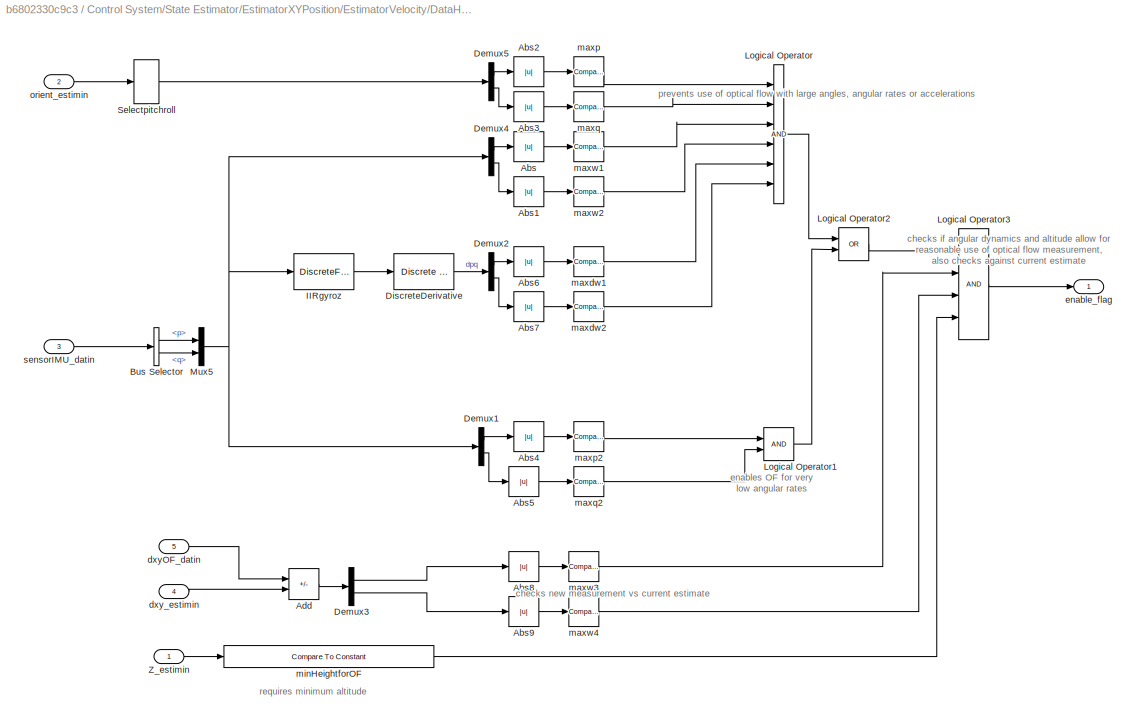
BLOCK [SubSystem] Control System/State Estimator/EstimatorXYPosition/EstimatorVelocity/DataHandling
  Ports = [5, 1]
  RequestExecContextInheritance = off
BLOCK [Abs] Control System/State Estimator/EstimatorXYPosition/EstimatorVelocity/DataHandling/Abs
  SaturateOnIntegerOverflow = off
BLOCK [Abs] Control System/State Estimator/EstimatorXYPosition/EstimatorVelocity/DataHandling/Abs1
  SaturateOnIntegerOverflow = off
BLOCK [Abs] Control System/State Estimator/EstimatorXYPosition/EstimatorVelocity/DataHandling/Abs2
  SaturateOnIntegerOverflow = off
BLOCK [Abs] Control System/State Estimator/EstimatorXYPosition/EstimatorVelocity/DataHandling/Abs3
  SaturateOnIntegerOverflow = off
BLOCK [Abs] Control System/State Estimator/EstimatorXYPosition/EstimatorVelocity/DataHandling/Abs4
  SaturateOnIntegerOverflow = off
BLOCK [Abs] Control System/State Estimator/EstimatorXYPosition/EstimatorVelocity/DataHandling/Abs5
  SaturateOnIntegerOverflow = off
BLOCK [Abs] Control System/State Estimator/EstimatorXYPosition/EstimatorVelocity/DataHandling/Abs6
  SaturateOnIntegerOverflow = off
BLOCK [Abs] Control System/State Estimator/EstimatorXYPosition/EstimatorVelocity/DataHandling/Abs7
  SaturateOnIntegerOverflow = off
BLOCK [Abs] Control System/State Estimator/EstimatorXYPosition/EstimatorVelocity/DataHandling/Abs8
  SaturateOnIntegerOverflow = off
BLOCK [Abs] Control System/State Estimator/EstimatorXYPosition/EstimatorVelocity/DataHandling/Abs9
  SaturateOnIntegerOverflow = off
BLOCK [Sum] Control System/State Estimator/EstimatorXYPosition/EstimatorVelocity/DataHandling/Add
  IconShape = rectangular
  Inputs = -+
  Ports = [2, 1]
BLOCK [BusSelector] Control System/State Estimator/EstimatorXYPosition/EstimatorVelocity/DataHandling/Bus Selector
  OutputSignals = p,q
  Ports = [1, 2]
BLOCK [Demux] Control System/State Estimator/EstimatorXYPosition/EstimatorVelocity/DataHandling/Demux1
  Outputs = 2
  Ports = [1, 2]
BLOCK [Demux] Control System/State Estimator/EstimatorXYPosition/EstimatorVelocity/DataHandling/Demux2
  Outputs = 2
  Ports = [1, 2]
BLOCK [Demux] Control System/State Estimator/EstimatorXYPosition/EstimatorVelocity/DataHandling/Demux3
  Outputs = 2
  Ports = [1, 2]
BLOCK [Demux] Control System/State Estimator/EstimatorXYPosition/EstimatorVelocity/DataHandling/Demux4
  Outputs = 2
  Ports = [1, 2]
BLOCK [Demux] Control System/State Estimator/EstimatorXYPosition/EstimatorVelocity/DataHandling/Demux5
  Outputs = 2
  Ports = [1, 2]
BLOCK [Reference] Control System/State Estimator/EstimatorXYPosition/EstimatorVelocity/DataHandling/DiscreteDerivative  REF=simulink/Discrete/Discrete Derivative
  Ports = [1, 1]
  SourceBlock = simulink/Discrete/Discrete Derivative
  SourceProductBaseCode = SL
  SourceType = Discrete Derivative
BLOCK [DiscreteFilter] Control System/State Estimator/EstimatorXYPosition/EstimatorVelocity/DataHandling/IIRgyroz
  Denominator = Estimator.IMU.filterGyroDen
  InputPortMap = u0
  Numerator = Estimator.IMU.filterGyroNum
  Ports = [1, 1]
BLOCK [Logic] Control System/State Estimator/EstimatorXYPosition/EstimatorVelocity/DataHandling/Logical Operator
  AllPortsSameDT = off
  Inputs = 6
  OutDataTypeStr = boolean
  Ports = [6, 1]
BLOCK [Logic] Control System/State Estimator/EstimatorXYPosition/EstimatorVelocity/DataHandling/Logical Operator1
  AllPortsSameDT = off
  OutDataTypeStr = boolean
  Ports = [2, 1]
BLOCK [Logic] Control System/State Estimator/EstimatorXYPosition/EstimatorVelocity/DataHandling/Logical Operator2
  AllPortsSameDT = off
  Operator = OR
  OutDataTypeStr = boolean
  Ports = [2, 1]
BLOCK [Logic] Control System/State Estimator/EstimatorXYPosition/EstimatorVelocity/DataHandling/Logical Operator3
  AllPortsSameDT = off
  Inputs = 4
  OutDataTypeStr = boolean
  Ports = [4, 1]
BLOCK [Mux] Control System/State Estimator/EstimatorXYPosition/EstimatorVelocity/DataHandling/Mux5
  DisplayOption = bar
  Inputs = 2
  Ports = [2, 1]
BLOCK [Selector] Control System/State Estimator/EstimatorXYPosition/EstimatorVelocity/DataHandling/Selectpitchroll
  IndexOptions = Index vector (dialog)
  Indices = [2 3]
  InputPortWidth = 3
  OutputSizes = 1
  Ports = [1, 1]
BLOCK [Inport] Control System/State Estimator/EstimatorXYPosition/EstimatorVelocity/DataHandling/Z_estimin
BLOCK [Inport] Control System/State Estimator/EstimatorXYPosition/EstimatorVelocity/DataHandling/dxyOF_datin
  Port = 5
BLOCK [Inport] Control System/State Estimator/EstimatorXYPosition/EstimatorVelocity/DataHandling/dxy_estimin
  Port = 4
BLOCK [Outport] Control System/State Estimator/EstimatorXYPosition/EstimatorVelocity/DataHandling/enable_flag
  VectorParamsAs1DForOutWhenUnconnected = off
BLOCK [Reference] Control System/State Estimator/EstimatorXYPosition/EstimatorVelocity/DataHandling/maxdw1  REF=simulink/Logic and Bit
Operations/Compare
To Constant
  Ports = [1, 1]
  SourceBlock = simulink/Logic and Bit\nOperations/Compare\nTo Constant
  SourceProductBaseCode = SL
  SourceType = Compare To Constant
BLOCK [Reference] Control System/State Estimator/EstimatorXYPosition/EstimatorVelocity/DataHandling/maxdw2  REF=simulink/Logic and Bit
Operations/Compare
To Constant
  Ports = [1, 1]
  SourceBlock = simulink/Logic and Bit\nOperations/Compare\nTo Constant
  SourceProductBaseCode = SL
  SourceType = Compare To Constant
BLOCK [Reference] Control System/State Estimator/EstimatorXYPosition/EstimatorVelocity/DataHandling/maxp  REF=simulink/Logic and Bit
Operations/Compare
To Constant
  Ports = [1, 1]
  SourceBlock = simulink/Logic and Bit\nOperations/Compare\nTo Constant
  SourceProductBaseCode = SL
  SourceType = Compare To Constant
BLOCK [Reference] Control System/State Estimator/EstimatorXYPosition/EstimatorVelocity/DataHandling/maxp2  REF=simulink/Logic and Bit
Operations/Compare
To Constant
  Ports = [1, 1]
  SourceBlock = simulink/Logic and Bit\nOperations/Compare\nTo Constant
  SourceProductBaseCode = SL
  SourceType = Compare To Constant
BLOCK [Reference] Control System/State Estimator/EstimatorXYPosition/EstimatorVelocity/DataHandling/maxq  REF=simulink/Logic and Bit
Operations/Compare
To Constant
  Ports = [1, 1]
  SourceBlock = simulink/Logic and Bit\nOperations/Compare\nTo Constant
  SourceProductBaseCode = SL
  SourceType = Compare To Constant
BLOCK [Reference] Control System/State Estimator/EstimatorXYPosition/EstimatorVelocity/DataHandling/maxq2  REF=simulink/Logic and Bit
Operations/Compare
To Constant
  Ports = [1, 1]
  SourceBlock = simulink/Logic and Bit\nOperations/Compare\nTo Constant
  SourceProductBaseCode = SL
  SourceType = Compare To Constant
BLOCK [Reference] Control System/State Estimator/EstimatorXYPosition/EstimatorVelocity/DataHandling/maxw1  REF=simulink/Logic and Bit
Operations/Compare
To Constant
  Ports = [1, 1]
  SourceBlock = simulink/Logic and Bit\nOperations/Compare\nTo Constant
  SourceProductBaseCode = SL
  SourceType = Compare To Constant
BLOCK [Reference] Control System/State Estimator/EstimatorXYPosition/EstimatorVelocity/DataHandling/maxw2  REF=simulink/Logic and Bit
Operations/Compare
To Constant
  Ports = [1, 1]
  SourceBlock = simulink/Logic and Bit\nOperations/Compare\nTo Constant
  SourceProductBaseCode = SL
  SourceType = Compare To Constant
BLOCK [Reference] Control System/State Estimator/EstimatorXYPosition/EstimatorVelocity/DataHandling/maxw3  REF=simulink/Logic and Bit
Operations/Compare
To Constant
  Ports = [1, 1]
  SourceBlock = simulink/Logic and Bit\nOperations/Compare\nTo Constant
  SourceProductBaseCode = SL
  SourceType = Compare To Constant
BLOCK [Reference] Control System/State Estimator/EstimatorXYPosition/EstimatorVelocity/DataHandling/maxw4  REF=simulink/Logic and Bit
Operations/Compare
To Constant
  Ports = [1, 1]
  SourceBlock = simulink/Logic and Bit\nOperations/Compare\nTo Constant
  SourceProductBaseCode = SL
  SourceType = Compare To Constant
BLOCK [Reference] Control System/State Estimator/EstimatorXYPosition/EstimatorVelocity/DataHandling/minHeightforOF  REF=simulink/Logic and Bit
Operations/Compare
To Constant
  Ports = [1, 1]
  SourceBlock = simulink/Logic and Bit\nOperations/Compare\nTo Constant
  SourceProductBaseCode = SL
  SourceType = Compare To Constant
BLOCK [Inport] Control System/State Estimator/EstimatorXYPosition/EstimatorVelocity/DataHandling/orient_estimin
  Port = 2
BLOCK [Inport] Control System/State Estimator/EstimatorXYPosition/EstimatorVelocity/DataHandling/sensorIMU_datin
  Port = 3
BLOCK [Delay] Control System/State Estimator/EstimatorXYPosition/EstimatorVelocity/Delay
  DelayLength = 1
  InitialCondition = 0
  InputPortMap = u0
  Ports = [1, 1]
BLOCK [Gain] Control System/State Estimator/EstimatorXYPosition/EstimatorVelocity/Gain
  Gain = -1
  NameLocation = right
BLOCK [Reference] Control System/State Estimator/EstimatorXYPosition/EstimatorVelocity/KalmanFilter_dxdy  REF=ctrlSharedLib/Kalman Filter
  Ports = [3, 1]
  SourceBlock = ctrlSharedLib/Kalman Filter
  SourceProductBaseCode = CT,ID
  SourceType = ctrlKalmanFilter
BLOCK [Selector] Control System/State Estimator/EstimatorXYPosition/EstimatorVelocity/Select dxy
  IndexOptions = Index vector (dialog)
  Indices = [1 2]
  InputPortWidth = 3
  OutputSizes = 1
  Ports = [1, 1]
BLOCK [Switch] Control System/State Estimator/EstimatorXYPosition/EstimatorVelocity/Switch
  Criteria = u2 > Threshold
  InputSameDT = off
  SaturateOnIntegerOverflow = off
BLOCK [Inport] Control System/State Estimator/EstimatorXYPosition/EstimatorVelocity/Z_estimin
  Port = 2
  SampleTime = Ts
BLOCK [InportShadow] Control System/State Estimator/EstimatorXYPosition/EstimatorVelocity/Z_estimin1
  Port = 2
  SampleTime = Ts
BLOCK [Outport] Control System/State Estimator/EstimatorXYPosition/EstimatorVelocity/dxy_estimout
  VectorParamsAs1DForOutWhenUnconnected = off
BLOCK [Gain] Control System/State Estimator/EstimatorXYPosition/EstimatorVelocity/opticalFlowErrorCorrect
  Gain = 1.15
BLOCK [Inport] Control System/State Estimator/EstimatorXYPosition/EstimatorVelocity/opticalFlow_datin
BLOCK [Inport] Control System/State Estimator/EstimatorXYPosition/EstimatorVelocity/orient_estimin
  Port = 4
BLOCK [Inport] Control System/State Estimator/EstimatorXYPosition/EstimatorVelocity/sensorIMU_datin
  Port = 3
BLOCK [SubSystem] Control System/State Estimator/EstimatorXYPosition/EstimatorXYPosition
  Ports = [4, 1]
  RequestExecContextInheritance = off
BLOCK [Math] Control System/State Estimator/EstimatorXYPosition/EstimatorXYPosition/Math Function
  Operator = transpose
  Ports = [1, 1]
  SignedPower = on
BLOCK [Mux] Control System/State Estimator/EstimatorXYPosition/EstimatorXYPosition/Mux2
  DisplayOption = bar
  Inputs = 2
  Ports = [2, 1]
BLOCK [Product] Control System/State Estimator/EstimatorXYPosition/EstimatorXYPosition/Product
  Multiplication = Matrix(*)
  Ports = [2, 1]
BLOCK [Reference] Control System/State Estimator/EstimatorXYPosition/EstimatorXYPosition/Rotation Angles to Direction Cosine Matrix  REF=sharedtransform/Rotation Angles to
Direction Cosine Matrix
  AttributesFormatString = Rotation Order: %<rotationOrder>
  Ports = [1, 1]
  SourceBlock = sharedtransform/Rotation Angles to\nDirection Cosine Matrix
  SourceProductBaseCode = AE,PW,MT,VE,VP
  SourceType = Ang2DCM
BLOCK [Selector] Control System/State Estimator/EstimatorXYPosition/EstimatorXYPosition/SelectdXY
  IndexOptions = Index vector (dialog)
  Indices = [1 2]
  InputPortWidth = 3
  OutputSizes = 1
  Ports = [1, 1]
BLOCK [DiscreteIntegrator] Control System/State Estimator/EstimatorXYPosition/EstimatorXYPosition/SimplyIntegrateVelocity
  ExternalReset = rising
  ICPrevOutput = DiscIntNeverNeededParam
  ICPrevScaledInput = DiscIntNeverNeededParam
  InitialConditionSetting = Auto
  Ports = [2, 1]
  SampleTime = Ts
BLOCK [Outport] Control System/State Estimator/EstimatorXYPosition/EstimatorXYPosition/XY_estimout
  VectorParamsAs1DForOutWhenUnconnected = off
BLOCK [Inport] Control System/State Estimator/EstimatorXYPosition/EstimatorXYPosition/controlModePosVSOrient_flagin
  Port = 3
BLOCK [Inport] Control System/State Estimator/EstimatorXYPosition/EstimatorXYPosition/dxy_estimin
BLOCK [Inport] Control System/State Estimator/EstimatorXYPosition/EstimatorXYPosition/dz_estimin
  Port = 4
BLOCK [Inport] Control System/State Estimator/EstimatorXYPosition/EstimatorXYPosition/orient_estimin
  NameLocation = top
  Port = 2
  SampleTime = Ts
BLOCK [Outport] Control System/State Estimator/EstimatorXYPosition/XY_estimout
  VectorParamsAs1DForOutWhenUnconnected = off
BLOCK [Inport] Control System/State Estimator/EstimatorXYPosition/Z_estimin
  Port = 4
BLOCK [Inport] Control System/State Estimator/EstimatorXYPosition/controlModePosVSOrient_flagin
  Port = 2
BLOCK [Outport] Control System/State Estimator/EstimatorXYPosition/dxy_estimout
  Port = 2
  VectorParamsAs1DForOutWhenUnconnected = off
BLOCK [Inport] Control System/State Estimator/EstimatorXYPosition/dz_estimin
  Port = 5
BLOCK [Inport] Control System/State Estimator/EstimatorXYPosition/opticalFlow_datin
BLOCK [Inport] Control System/State Estimator/EstimatorXYPosition/orient_estimin
  Port = 6
BLOCK [Inport] Control System/State Estimator/EstimatorXYPosition/sensorIMU_datin
  Port = 3
BLOCK [Outport] Control System/State Estimator/Out Bus Element
  VectorParamsAs1DForOutWhenUnconnected = off
BLOCK [Outport] Control System/State Estimator/Out Bus Element1
  VectorParamsAs1DForOutWhenUnconnected = off
BLOCK [Outport] Control System/State Estimator/Out Bus Element10
  VectorParamsAs1DForOutWhenUnconnected = off
BLOCK [Outport] Control System/State Estimator/Out Bus Element11
  VectorParamsAs1DForOutWhenUnconnected = off
BLOCK [Outport] Control System/State Estimator/Out Bus Element2
  VectorParamsAs1DForOutWhenUnconnected = off
BLOCK [Outport] Control System/State Estimator/Out Bus Element3
  VectorParamsAs1DForOutWhenUnconnected = off
BLOCK [Outport] Control System/State Estimator/Out Bus Element4
  VectorParamsAs1DForOutWhenUnconnected = off
BLOCK [Outport] Control System/State Estimator/Out Bus Element5
  VectorParamsAs1DForOutWhenUnconnected = off
BLOCK [Outport] Control System/State Estimator/Out Bus Element6
  VectorParamsAs1DForOutWhenUnconnected = off
BLOCK [Outport] Control System/State Estimator/Out Bus Element7
  VectorParamsAs1DForOutWhenUnconnected = off
BLOCK [Outport] Control System/State Estimator/Out Bus Element8
  VectorParamsAs1DForOutWhenUnconnected = off
BLOCK [Outport] Control System/State Estimator/Out Bus Element9
  VectorParamsAs1DForOutWhenUnconnected = off
BLOCK [SubSystem] Control System/State Estimator/SensorPreprocessing
  Ports = [2, 3]
  RequestExecContextInheritance = off
BLOCK [Bias] Control System/State Estimator/SensorPreprocessing/Assuming that calib was done level!
  Bias = [0 0 +g 0 0 0]
  SaturateOnIntegerOverflow = off
BLOCK [BusCreator] Control System/State Estimator/SensorPreprocessing/Bus Creator3
  DisplayOption = bar
  InheritFromInputs = on
  Inputs = 6
  Ports = [6, 1]
BLOCK [BusSelector] Control System/State Estimator/SensorPreprocessing/Bus Selector
  OutputSignals = ddx,ddy,ddz,p,q,r
  Ports = [1, 6]
BLOCK [BusSelector] Control System/State Estimator/SensorPreprocessing/Bus Selector1
  OutputSignals = altitude_sonar,prs
  Ports = [1, 2]
BLOCK [BusSelector] Control System/State Estimator/SensorPreprocessing/Bus Selector2
  OutputSignals = HAL_acc_SI,HAL_gyro_SI,HAL_ultrasound_SI,HAL_pressure_SI,HAL_vbat_SI
  Ports = [1, 5]
BLOCK [BusSelector] Control System/State Estimator/SensorPreprocessing/Bus Selector3
  OutputSignals = HALSensors
  Ports = [1, 1]
BLOCK [DataTypeConversion] Control System/State Estimator/SensorPreprocessing/Data Type Conversion
  RndMeth = Floor
  SaturateOnIntegerOverflow = off
BLOCK [Demux] Control System/State Estimator/SensorPreprocessing/Demux1
  Outputs = 3
  Ports = [1, 3]
BLOCK [Demux] Control System/State Estimator/SensorPreprocessing/Demux2
  Outputs = 3
  Ports = [1, 3]
BLOCK [DiscreteFir] Control System/State Estimator/SensorPreprocessing/FIR_IMUaccel
  Coefficients = Estimator.IMU.filterAccel.Coefficients
  InputPortMap = u0
  OutputPortMap = o0
  Ports = [1, 1]
BLOCK [DiscreteFilter] Control System/State Estimator/SensorPreprocessing/IIR_IMUgyro_r
  Denominator = Estimator.IMU.filterGyroDen
  InputPortMap = u0
  Numerator = Estimator.IMU.filterGyroNum
  Ports = [1, 1]
BLOCK [Mux] Control System/State Estimator/SensorPreprocessing/Mux1
  DisplayOption = bar
  Inputs = 6
  Ports = [6, 1]
BLOCK [Selector] Control System/State Estimator/SensorPreprocessing/Select Accel
  IndexOptions = Index vector (dialog)
  Indices = [1 2 3]
  InputPortWidth = 6
  OutputSizes = 1
  Ports = [1, 1]
BLOCK [Selector] Control System/State Estimator/SensorPreprocessing/Select pqr
  IndexOptions = Index vector (dialog)
  Indices = [4 5 6]
  InputPortWidth = 6
  OutputSizes = 1
  Ports = [1, 1]
BLOCK [Selector] Control System/State Estimator/SensorPreprocessing/Selector2
  IndexOptions = Index vector (dialog)
  Indices = [1:6]
  InputPortWidth = 8
  OutputSizes = 1
  Ports = [1, 1]
BLOCK [Selector] Control System/State Estimator/SensorPreprocessing/Selector4
  IndexOptions = Index vector (dialog)
  Indices = [7]
  InputPortWidth = 8
  NameLocation = left
  OutputSizes = 1
  Ports = [1, 1]
BLOCK [Sum] Control System/State Estimator/SensorPreprocessing/Sum1
  Inputs = |+-
  Ports = [2, 1]
BLOCK [Sum] Control System/State Estimator/SensorPreprocessing/Sum2
  Inputs = -+|
  Ports = [2, 1]
BLOCK [Outport] Control System/State Estimator/SensorPreprocessing/altSonar_datout
  NameLocation = top
  Port = 2
  VectorParamsAs1DForOutWhenUnconnected = off
BLOCK [Gain] Control System/State Estimator/SensorPreprocessing/inverseIMU_gain
  Gain = Estimator.inverseIMUGain
  OutDataTypeStr = single
  ParamDataTypeStr = single
BLOCK [Outport] Control System/State Estimator/SensorPreprocessing/prsDelta_datout
  Port = 3
  VectorParamsAs1DForOutWhenUnconnected = off
BLOCK [Inport] Control System/State Estimator/SensorPreprocessing/sensorCalibration_datin
  Port = 2
BLOCK [Outport] Control System/State Estimator/SensorPreprocessing/sensorIMU_datout
  VectorParamsAs1DForOutWhenUnconnected = off
BLOCK [Inport] Control System/State Estimator/SensorPreprocessing/sensordata_datin
BLOCK [SubSystem] Control System/State Estimator/SensorPreprocessing/sensordata_group
  Ports = [5, 1]
  RequestExecContextInheritance = off
BLOCK [BusSelector] Control System/State Estimator/SensorPreprocessing/sensordata_group/Bus Selector1
  OutputSignals = vbat_V,vbat_percentage
  Ports = [1, 2]
BLOCK [BusSelector] Control System/State Estimator/SensorPreprocessing/sensordata_group/Bus Selector3
  OutputSignals = x,y,z
  Ports = [1, 3]
BLOCK [BusSelector] Control System/State Estimator/SensorPreprocessing/sensordata_group/Bus Selector4
  OutputSignals = x,y,z
  Ports = [1, 3]
BLOCK [BusSelector] Control System/State Estimator/SensorPreprocessing/sensordata_group/Bus Selector5
  OutputSignals = altitude
  Ports = [1, 1]
BLOCK [BusSelector] Control System/State Estimator/SensorPreprocessing/sensordata_group/Bus Selector6
  OutputSignals = pressure
  Ports = [1, 1]
BLOCK [Inport] Control System/State Estimator/SensorPreprocessing/sensordata_group/HAL_acc_SI
  OutDataTypeStr = Bus: HAL_acc_SI_t
BLOCK [Inport] Control System/State Estimator/SensorPreprocessing/sensordata_group/HAL_gyro_SI
  OutDataTypeStr = Bus: HAL_gyro_SI_t
  Port = 2
BLOCK [Inport] Control System/State Estimator/SensorPreprocessing/sensordata_group/HAL_pressure_SI
  OutDataTypeStr = Bus: HAL_pressure_SI_t
  Port = 4
BLOCK [Inport] Control System/State Estimator/SensorPreprocessing/sensordata_group/HAL_ultrasound_SI
  OutDataTypeStr = Bus: HAL_ultrasound_SI_t
  Port = 3
BLOCK [Inport] Control System/State Estimator/SensorPreprocessing/sensordata_group/HAL_vbat_SI
  OutDataTypeStr = Bus: HAL_vbat_SI_t
  Port = 5
BLOCK [Outport] Control System/State Estimator/SensorPreprocessing/sensordata_group/Out Bus Element
  VectorParamsAs1DForOutWhenUnconnected = off
BLOCK [Outport] Control System/State Estimator/SensorPreprocessing/sensordata_group/Out Bus Element1
  VectorParamsAs1DForOutWhenUnconnected = off
BLOCK [Outport] Control System/State Estimator/SensorPreprocessing/sensordata_group/Out Bus Element2
  VectorParamsAs1DForOutWhenUnconnected = off
BLOCK [Outport] Control System/State Estimator/SensorPreprocessing/sensordata_group/Out Bus Element3
  VectorParamsAs1DForOutWhenUnconnected = off
BLOCK [Outport] Control System/State Estimator/SensorPreprocessing/sensordata_group/Out Bus Element4
  VectorParamsAs1DForOutWhenUnconnected = off
BLOCK [Outport] Control System/State Estimator/SensorPreprocessing/sensordata_group/Out Bus Element5
  VectorParamsAs1DForOutWhenUnconnected = off
BLOCK [Outport] Control System/State Estimator/SensorPreprocessing/sensordata_group/Out Bus Element6
  VectorParamsAs1DForOutWhenUnconnected = off
BLOCK [Outport] Control System/State Estimator/SensorPreprocessing/sensordata_group/Out Bus Element7
  VectorParamsAs1DForOutWhenUnconnected = off
BLOCK [Outport] Control System/State Estimator/SensorPreprocessing/sensordata_group/Out Bus Element8
  VectorParamsAs1DForOutWhenUnconnected = off
BLOCK [Outport] Control System/State Estimator/SensorPreprocessing/sensordata_group/Out Bus Element9
  VectorParamsAs1DForOutWhenUnconnected = off
BLOCK [Terminator] Control System/State Estimator/Terminator
BLOCK [Terminator] Control System/State Estimator/Terminator1
BLOCK [Inport] Control System/State Estimator/controlModePosVSOrient_flagin
  OutDataTypeStr = boolean
BLOCK [Inport] Control System/State Estimator/opticalFlow_datin
  Port = 3
BLOCK [Inport] Control System/State Estimator/sensorCalibration_datin
  Port = 4
BLOCK [Inport] Control System/State Estimator/sensor_data_in
  Port = 2
BLOCK [ToWorkspace] Control System/To Workspace
  FixptAsFi = on
  MaxDataPoints = inf
  Ports = [1]
  SampleTime = -1
  SaveFormat = Structure With Time
  VariableName = estimatedStates
BLOCK [Inport] Control System/Vision-based Data1
  Port = 3
BLOCK [Constant] Control System/controlModePosVsOrient
  OutDataTypeStr = boolean
BLOCK [Outport] Control System/motorCmds
  VectorParamsAs1DForOutWhenUnconnected = off
BLOCK [Outport] Flag
  OutDataTypeStr = uint8
  Port = 2
  PortDimensions = 1
  VectorParamsAs1DForOutWhenUnconnected = off
BLOCK [Inport] Image Data
  BusOutputAsStruct = on
  InitFcn = codertarget.parrot.internal.inportCallback(gcb);
  OutDataTypeStr = uint8
  Port = 3
  PortDimensions = [4 9600]
  Tag = IP_IN
BLOCK [SubSystem] Image Processing System
  InitFcn = codertarget.parrot.internal.ipSubsystemCallback(gcb);
  Ports = [1, 1]
  RTWFcnName = ImageFunction
  RTWFcnNameOpts = User specified
  RTWSystemCode = Inline
  RequestExecContextInheritance = off
  SystemSampleTime = 40*Ts
  Tag = IP_SUB
  TreatAsAtomicUnit = on
  TreatAsGroupedWhenPropagatingVariantConditions = off
BLOCK [SubSystem] Image Processing System/BW_to_vert_strip_wide
  ErrorFcn = Stateflow.Translate.translate
  PermitHierarchicalResolution = ExplicitOnly
  Ports = [1, 1]
  RequestExecContextInheritance = off
  SFBlockType = MATLAB Function
  TreatAsAtomicUnit = on
BLOCK [Demux] Image Processing System/BW_to_vert_strip_wide/ Demux 
  Outputs = 1
  Ports = [1, 1]
BLOCK [S-Function] Image Processing System/BW_to_vert_strip_wide/ SFunction 
  EnableBusSupport = on
  FunctionName = sf_sfun
  Parameters = straight_view_width
  PortCounts = [1 2]
  Ports = [1, 2]
  SFcnIsStateOwnerBlock = off
  SFunctionDeploymentMode = off
  Tag = Stateflow S-Function 15
BLOCK [Terminator] Image Processing System/BW_to_vert_strip_wide/ Terminator 
BLOCK [Inport] Image Processing System/BW_to_vert_strip_wide/BW
BLOCK [Outport] Image Processing System/BW_to_vert_strip_wide/vert_strip_wide
BLOCK [Reference] Image Processing System/Blob Analysis  REF=visionstatistics/Blob Analysis
  Commented = on
  Ports = [1, 1]
  SourceBlock = visionstatistics/Blob Analysis
  SourceProductBaseCode = VP
  SourceType = Blob Analysis
  Tag = vipblks_row_conv
BLOCK [Reference] Image Processing System/Blob Analysis1  REF=visionstatistics/Blob Analysis
  Ports = [1, 1]
  SourceBlock = visionstatistics/Blob Analysis
  SourceProductBaseCode = VP
  SourceType = Blob Analysis
  Tag = vipblks_row_conv
BLOCK [Reference] Image Processing System/Blob Analysis2  REF=visionstatistics/Blob Analysis
  Ports = [1, 1]
  SourceBlock = visionstatistics/Blob Analysis
  SourceProductBaseCode = VP
  SourceType = Blob Analysis
  Tag = vipblks_row_conv
BLOCK [BusCreator] Image Processing System/Bus Creator
  DisplayOption = bar
  InheritFromInputs = on
  Inputs = 6
  Ports = [6, 1]
BLOCK [SubSystem] Image Processing System/Colour_img_to_BW
  ErrorFcn = Stateflow.Translate.translate
  PermitHierarchicalResolution = ExplicitOnly
  Ports = [1, 1]
  RequestExecContextInheritance = off
  SFBlockType = MATLAB Function
  TreatAsAtomicUnit = on
BLOCK [Demux] Image Processing System/Colour_img_to_BW/ Demux 
  Outputs = 1
  Ports = [1, 1]
BLOCK [S-Function] Image Processing System/Colour_img_to_BW/ SFunction 
  EnableBusSupport = on
  FunctionName = sf_sfun
  PortCounts = [1 2]
  Ports = [1, 2]
  SFcnIsStateOwnerBlock = off
  SFunctionDeploymentMode = off
  Tag = Stateflow S-Function 16
BLOCK [Terminator] Image Processing System/Colour_img_to_BW/ Terminator 
BLOCK [Inport] Image Processing System/Colour_img_to_BW/frame_info
BLOCK [Outport] Image Processing System/Colour_img_to_BW/y
BLOCK [DataTypeConversion] Image Processing System/Data Type Conversion
  OutDataTypeStr = double
  RndMeth = Floor
  SaturateOnIntegerOverflow = off
BLOCK [DataTypeConversion] Image Processing System/Data Type Conversion1
  OutDataTypeStr = double
  RndMeth = Floor
  SaturateOnIntegerOverflow = off
BLOCK [DataTypeConversion] Image Processing System/Data Type Conversion2
  OutDataTypeStr = double
  RndMeth = Floor
  SaturateOnIntegerOverflow = off
BLOCK [DataTypeConversion] Image Processing System/Data Type Conversion3
  Commented = on
  OutDataTypeStr = boolean
  RndMeth = Floor
  SaturateOnIntegerOverflow = off
BLOCK [Demux] Image Processing System/Demux
  Commented = on
  Outputs = 2
  Ports = [1, 2]
BLOCK [Demux] Image Processing System/Demux1
  Outputs = 2
  Ports = [1, 2]
BLOCK [Inport] Image Processing System/Image Data
BLOCK [SubSystem] Image Processing System/LZ_flag is set to 1 when the landing zone is detected, and 0 otherwise
  Commented = on
  ErrorFcn = Stateflow.Translate.translate
  PermitHierarchicalResolution = ExplicitOnly
  Ports = [1, 3]
  RequestExecContextInheritance = off
  SFBlockType = MATLAB Function
  TreatAsAtomicUnit = on
BLOCK [Demux] Image Processing System/LZ_flag is set to 1 when the landing zone is detected, and 0 otherwise/ Demux 
  Outputs = 1
  Ports = [1, 1]
BLOCK [S-Function] Image Processing System/LZ_flag is set to 1 when the landing zone is detected, and 0 otherwise/ SFunction 
  EnableBusSupport = on
  FunctionName = sf_sfun
  PortCounts = [1 4]
  Ports = [1, 4]
  SFcnIsStateOwnerBlock = off
  SFunctionDeploymentMode = off
  Tag = Stateflow S-Function 1
BLOCK [Terminator] Image Processing System/LZ_flag is set to 1 when the landing zone is detected, and 0 otherwise/ Terminator 
BLOCK [Outport] Image Processing System/LZ_flag is set to 1 when the landing zone is detected, and 0 otherwise/LZ_flag
BLOCK [Outport] Image Processing System/LZ_flag is set to 1 when the landing zone is detected, and 0 otherwise/LZ_x
  Port = 2
BLOCK [Outport] Image Processing System/LZ_flag is set to 1 when the landing zone is detected, and 0 otherwise/LZ_y
  Port = 3
BLOCK [Inport] Image Processing System/LZ_flag is set to 1 when the landing zone is detected, and 0 otherwise/frame_info
BLOCK [SubSystem] Image Processing System/Landing zone detection flag and landing zone pixel centre
  Ports = [1, 3, 1]
  RequestExecContextInheritance = off
  TreatAsAtomicUnit = on
BLOCK [Reference] Image Processing System/Landing zone detection flag and landing zone pixel centre/Blob Analysis  REF=visionstatistics/Blob Analysis
  Ports = [1, 3]
  SourceBlock = visionstatistics/Blob Analysis
  SourceProductBaseCode = VP
  SourceType = Blob Analysis
  Tag = vipblks_row_conv
BLOCK [SubSystem] Image Processing System/Landing zone detection flag and landing zone pixel centre/Colour_img_to_BW
  ErrorFcn = Stateflow.Translate.translate
  PermitHierarchicalResolution = ExplicitOnly
  Ports = [1, 1]
  RequestExecContextInheritance = off
  SFBlockType = MATLAB Function
  TreatAsAtomicUnit = on
BLOCK [Demux] Image Processing System/Landing zone detection flag and landing zone pixel centre/Colour_img_to_BW/ Demux 
  Outputs = 1
  Ports = [1, 1]
BLOCK [S-Function] Image Processing System/Landing zone detection flag and landing zone pixel centre/Colour_img_to_BW/ SFunction 
  EnableBusSupport = on
  FunctionName = sf_sfun
  PortCounts = [1 2]
  Ports = [1, 2]
  SFcnIsStateOwnerBlock = off
  SFunctionDeploymentMode = off
  Tag = Stateflow S-Function 12
BLOCK [Terminator] Image Processing System/Landing zone detection flag and landing zone pixel centre/Colour_img_to_BW/ Terminator 
BLOCK [Inport] Image Processing System/Landing zone detection flag and landing zone pixel centre/Colour_img_to_BW/frame_info
BLOCK [Outport] Image Processing System/Landing zone detection flag and landing zone pixel centre/Colour_img_to_BW/y
BLOCK [Constant] Image Processing System/Landing zone detection flag and landing zone pixel centre/Constant
  Value = 0
BLOCK [DataTypeConversion] Image Processing System/Landing zone detection flag and landing zone pixel centre/Data Type Conversion
  OutDataTypeStr = boolean
  RndMeth = Floor
  SaturateOnIntegerOverflow = off
BLOCK [EnablePort] Image Processing System/Landing zone detection flag and landing zone pixel centre/Enable
  Ports = []
BLOCK [Outport] Image Processing System/Landing zone detection flag and landing zone pixel centre/Lz_flag
BLOCK [Outport] Image Processing System/Landing zone detection flag and landing zone pixel centre/Lz_x
  Port = 2
BLOCK [Outport] Image Processing System/Landing zone detection flag and landing zone pixel centre/Lz_y
  Port = 3
BLOCK [SubSystem] Image Processing System/Landing zone detection flag and landing zone pixel centre/MATLAB Function1
  ErrorFcn = Stateflow.Translate.translate
  PermitHierarchicalResolution = ExplicitOnly
  Ports = [3, 3]
  RequestExecContextInheritance = off
  SFBlockType = MATLAB Function
  TreatAsAtomicUnit = on
BLOCK [Demux] Image Processing System/Landing zone detection flag and landing zone pixel centre/MATLAB Function1/ Demux 
  Outputs = 1
  Ports = [1, 1]
BLOCK [S-Function] Image Processing System/Landing zone detection flag and landing zone pixel centre/MATLAB Function1/ SFunction 
  EnableBusSupport = on
  FunctionName = sf_sfun
  PortCounts = [3 4]
  Ports = [3, 4]
  SFcnIsStateOwnerBlock = off
  SFunctionDeploymentMode = off
  Tag = Stateflow S-Function 13
BLOCK [Terminator] Image Processing System/Landing zone detection flag and landing zone pixel centre/MATLAB Function1/ Terminator 
BLOCK [Outport] Image Processing System/Landing zone detection flag and landing zone pixel centre/MATLAB Function1/Lz_flag
BLOCK [Outport] Image Processing System/Landing zone detection flag and landing zone pixel centre/MATLAB Function1/Lz_x
  Port = 2
BLOCK [Outport] Image Processing System/Landing zone detection flag and landing zone pixel centre/MATLAB Function1/Lz_y
  Port = 3
BLOCK [Inport] Image Processing System/Landing zone detection flag and landing zone pixel centre/MATLAB Function1/area
  Port = 2
BLOCK [Inport] Image Processing System/Landing zone detection flag and landing zone pixel centre/MATLAB Function1/centre
  Port = 3
BLOCK [Inport] Image Processing System/Landing zone detection flag and landing zone pixel centre/MATLAB Function1/eccentricity
BLOCK [Reference] Image Processing System/Landing zone detection flag and landing zone pixel centre/S-R Flip-Flop  REF=simulink_extras/Flip Flops/S-R
Flip-Flop
  Ports = [2, 2]
  SourceBlock = simulink_extras/Flip Flops/S-R\nFlip-Flop
  SourceProductBaseCode = SL
  SourceType = SRFlipFlop
BLOCK [Scope] Image Processing System/Landing zone detection flag and landing zone pixel centre/Scope
  Commented = on
  Floating = off
  NumInputPorts = 1
  Ports = [1]
  ScopeSpecificationString = Simulink.scopes.TimeScopeBlockCfg('CurrentConfiguration', extmgr.ConfigurationSet(extmgr.Configuration('Core','General UI',true),extmgr.Configuration('Core','Source UI',true),extmgr.Configuration('Sources','WiredSimulink',true,'DataLoggingVariableName','ScopeData1'),extmgr.Configuration('Visuals','Time Domain',true,'SerializedDisplays',{struct('MinYLimReal','-0.125','MaxYLimReal','1.125','YLabelRe...<+1399ch>
BLOCK [Scope] Image Processing System/Landing zone detection flag and landing zone pixel centre/Scope1
  Commented = on
  Floating = off
  NumInputPorts = 1
  Ports = [1]
  ScopeSpecificationString = Simulink.scopes.TimeScopeBlockCfg('CurrentConfiguration', extmgr.ConfigurationSet(extmgr.Configuration('Core','General UI',true),extmgr.Configuration('Core','Source UI',true),extmgr.Configuration('Sources','WiredSimulink',true,'DataLoggingVariableName','ScopeData2'),extmgr.Configuration('Visuals','Time Domain',true,'SerializedDisplays',{struct('MinYLimReal','-1.2498','MaxYLimReal','1.24816','YLabe...<+2758ch>
BLOCK [Terminator] Image Processing System/Landing zone detection flag and landing zone pixel centre/Terminator
BLOCK [Inport] Image Processing System/Landing zone detection flag and landing zone pixel centre/frame_info
BLOCK [Concatenate] Image Processing System/Matrix Concatenate
  ConcatenateDimension = 2
  Mode = Multidimensional array
  NumInputs = 3
  Ports = [3, 1]
BLOCK [Reference] Image Processing System/PARROT Image Conversion  REF=parrotlib/PARROT Image Conversion
  Ports = [1, 3]
  SourceBlock = parrotlib/PARROT Image Conversion
  SourceProductBaseCode = MINIDRONES
  SourceType = parrot.ImageProcess
BLOCK [SubSystem] Image Processing System/Pick the centroid of the first shape
  ErrorFcn = Stateflow.Translate.translate
  PermitHierarchicalResolution = ExplicitOnly
  Ports = [1, 1]
  RequestExecContextInheritance = off
  SFBlockType = MATLAB Function
  TreatAsAtomicUnit = on
BLOCK [Demux] Image Processing System/Pick the centroid of the first shape/ Demux 
  Outputs = 1
  Ports = [1, 1]
BLOCK [S-Function] Image Processing System/Pick the centroid of the first shape/ SFunction 
  EnableBusSupport = on
  FunctionName = sf_sfun
  PortCounts = [1 2]
  Ports = [1, 2]
  SFcnIsStateOwnerBlock = off
  SFunctionDeploymentMode = off
  Tag = Stateflow S-Function 2
BLOCK [Terminator] Image Processing System/Pick the centroid of the first shape/ Terminator 
BLOCK [Inport] Image Processing System/Pick the centroid of the first shape/u
BLOCK [Outport] Image Processing System/Pick the centroid of the first shape/y
BLOCK [SubSystem] Image Processing System/Pick the centroid of the first shape1
  ErrorFcn = Stateflow.Translate.translate
  PermitHierarchicalResolution = ExplicitOnly
  Ports = [1, 1]
  RequestExecContextInheritance = off
  SFBlockType = MATLAB Function
  TreatAsAtomicUnit = on
BLOCK [Demux] Image Processing System/Pick the centroid of the first shape1/ Demux 
  Outputs = 1
  Ports = [1, 1]
BLOCK [S-Function] Image Processing System/Pick the centroid of the first shape1/ SFunction 
  EnableBusSupport = on
  FunctionName = sf_sfun
  PortCounts = [1 2]
  Ports = [1, 2]
  SFcnIsStateOwnerBlock = off
  SFunctionDeploymentMode = off
  Tag = Stateflow S-Function 20
BLOCK [Terminator] Image Processing System/Pick the centroid of the first shape1/ Terminator 
BLOCK [Inport] Image Processing System/Pick the centroid of the first shape1/u
BLOCK [Outport] Image Processing System/Pick the centroid of the first shape1/y
BLOCK [Reshape] Image Processing System/Reshape
  OutputDimensionality = Customize
  OutputDimensions = [120, 160, 3]
  Ports = [1, 1]
BLOCK [Step] Image Processing System/Step
  Time = 3
BLOCK [SubSystem] Image Processing System/Take centroid x,y com
  Commented = on
  ErrorFcn = Stateflow.Translate.translate
  PermitHierarchicalResolution = ExplicitOnly
  Ports = [1, 1]
  RequestExecContextInheritance = off
  SFBlockType = MATLAB Function
  TreatAsAtomicUnit = on
BLOCK [Demux] Image Processing System/Take centroid x,y com/ Demux 
  Outputs = 1
  Ports = [1, 1]
BLOCK [S-Function] Image Processing System/Take centroid x,y com/ SFunction 
  EnableBusSupport = on
  FunctionName = sf_sfun
  PortCounts = [1 2]
  Ports = [1, 2]
  SFcnIsStateOwnerBlock = off
  SFunctionDeploymentMode = off
  Tag = Stateflow S-Function 19
BLOCK [Terminator] Image Processing System/Take centroid x,y com/ Terminator 
BLOCK [Inport] Image Processing System/Take centroid x,y com/u
BLOCK [Outport] Image Processing System/Take centroid x,y com/y
BLOCK [VideoViewer] Image Processing System/Video Viewer1
  Commented = on
  FigPos = [384 668 732 338]
  Ports = [1]
  ScopeSpecificationString = vipscopes.VideoViewerScopeCfg('CurrentConfiguration', extmgr.ConfigurationSet(extmgr.Configuration('Core','General UI',true),extmgr.Configuration('Core','Source UI',true),extmgr.Configuration('Sources','WiredSimulink',true),extmgr.Configuration('Visuals','Video',true),extmgr.Configuration('Tools','Image Navigation Tools',true),extmgr.Configuration('Tools','Image Tool',true),extmgr.Configuration('T...<+75ch>
BLOCK [Outport] Image Processing System/Vision-based Data1
  OutDataTypeStr = double
  VectorParamsAs1DForOutWhenUnconnected = off
BLOCK [VideoViewer] Image Processing System/centre_viewer
  FigPos = [298.5 1022 554 510]
  Ports = [1]
  ScopeSpecificationString = vipscopes.VideoViewerScopeCfg('CurrentConfiguration', extmgr.ConfigurationSet(extmgr.Configuration('Core','General UI',true),extmgr.Configuration('Core','Source UI',true),extmgr.Configuration('Sources','WiredSimulink',true),extmgr.Configuration('Visuals','Video',true),extmgr.Configuration('Tools','Image Navigation Tools',true),extmgr.Configuration('Tools','Image Tool',true),extmgr.Configuration('T...<+103ch>
BLOCK [SubSystem] Image Processing System/find the weighted path centre from BW
  Commented = on
  ErrorFcn = Stateflow.Translate.translate
  PermitHierarchicalResolution = ExplicitOnly
  Ports = [1, 2]
  RequestExecContextInheritance = off
  SFBlockType = MATLAB Function
  TreatAsAtomicUnit = on
BLOCK [Demux] Image Processing System/find the weighted path centre from BW/ Demux 
  Outputs = 1
  Ports = [1, 1]
BLOCK [S-Function] Image Processing System/find the weighted path centre from BW/ SFunction 
  EnableBusSupport = on
  FunctionName = sf_sfun
  PortCounts = [1 3]
  Ports = [1, 3]
  SFcnIsStateOwnerBlock = off
  SFunctionDeploymentMode = off
  Tag = Stateflow S-Function 17
BLOCK [Terminator] Image Processing System/find the weighted path centre from BW/ Terminator 
BLOCK [Inport] Image Processing System/find the weighted path centre from BW/BW
BLOCK [Outport] Image Processing System/find the weighted path centre from BW/xcom
BLOCK [Outport] Image Processing System/find the weighted path centre from BW/ycom
  Port = 2
BLOCK [SubSystem] Image Processing System/landing zone centre visualiser
  Commented = on
  ErrorFcn = Stateflow.Translate.translate
  PermitHierarchicalResolution = ExplicitOnly
  Ports = [3, 1]
  RequestExecContextInheritance = off
  SFBlockType = MATLAB Function
  TreatAsAtomicUnit = on
BLOCK [Demux] Image Processing System/landing zone centre visualiser/ Demux 
  Outputs = 1
  Ports = [1, 1]
BLOCK [S-Function] Image Processing System/landing zone centre visualiser/ SFunction 
  EnableBusSupport = on
  FunctionName = sf_sfun
  PortCounts = [3 2]
  Ports = [3, 2]
  SFcnIsStateOwnerBlock = off
  SFunctionDeploymentMode = off
  Tag = Stateflow S-Function 11
BLOCK [Terminator] Image Processing System/landing zone centre visualiser/ Terminator 
BLOCK [Inport] Image Processing System/landing zone centre visualiser/LZ_x
  Port = 2
BLOCK [Inport] Image Processing System/landing zone centre visualiser/LZ_y
  Port = 3
BLOCK [Inport] Image Processing System/landing zone centre visualiser/R_pix
BLOCK [Outport] Image Processing System/landing zone centre visualiser/out
BLOCK [SubSystem] Image Processing System/path centre visualiser1
  ErrorFcn = Stateflow.Translate.translate
  PermitHierarchicalResolution = ExplicitOnly
  Ports = [3, 1]
  RequestExecContextInheritance = off
  SFBlockType = MATLAB Function
  TreatAsAtomicUnit = on
BLOCK [Demux] Image Processing System/path centre visualiser1/ Demux 
  Outputs = 1
  Ports = [1, 1]
BLOCK [S-Function] Image Processing System/path centre visualiser1/ SFunction 
  EnableBusSupport = on
  FunctionName = sf_sfun
  PortCounts = [3 2]
  Ports = [3, 2]
  SFcnIsStateOwnerBlock = off
  SFunctionDeploymentMode = off
  Tag = Stateflow S-Function 18
BLOCK [Terminator] Image Processing System/path centre visualiser1/ Terminator 
BLOCK [Inport] Image Processing System/path centre visualiser1/BW_pix
BLOCK [Outport] Image Processing System/path centre visualiser1/out
BLOCK [Inport] Image Processing System/path centre visualiser1/xcom
  Port = 2
BLOCK [Inport] Image Processing System/path centre visualiser1/ycom
  Port = 3
BLOCK [SubSystem] Image Processing System/the cone of silence
  ErrorFcn = Stateflow.Translate.translate
  PermitHierarchicalResolution = ExplicitOnly
  Ports = [1, 1]
  RequestExecContextInheritance = off
  SFBlockType = MATLAB Function
  TreatAsAtomicUnit = on
BLOCK [Demux] Image Processing System/the cone of silence/ Demux 
  Outputs = 1
  Ports = [1, 1]
BLOCK [S-Function] Image Processing System/the cone of silence/ SFunction 
  EnableBusSupport = on
  FunctionName = sf_sfun
  Parameters = straight_view_width
  PortCounts = [1 2]
  Ports = [1, 2]
  SFcnIsStateOwnerBlock = off
  SFunctionDeploymentMode = off
  Tag = Stateflow S-Function 5
BLOCK [Terminator] Image Processing System/the cone of silence/ Terminator 
BLOCK [Inport] Image Processing System/the cone of silence/BW
BLOCK [Outport] Image Processing System/the cone of silence/strip_wo_tail
BLOCK [SubSystem] Image Processing System/the cone of silence1
  ErrorFcn = Stateflow.Translate.translate
  PermitHierarchicalResolution = ExplicitOnly
  Ports = [1, 1]
  RequestExecContextInheritance = off
  SFBlockType = MATLAB Function
  TreatAsAtomicUnit = on
BLOCK [Demux] Image Processing System/the cone of silence1/ Demux 
  Outputs = 1
  Ports = [1, 1]
BLOCK [S-Function] Image Processing System/the cone of silence1/ SFunction 
  EnableBusSupport = on
  FunctionName = sf_sfun
  Parameters = straight_view_width
  PortCounts = [1 2]
  Ports = [1, 2]
  SFcnIsStateOwnerBlock = off
  SFunctionDeploymentMode = off
  Tag = Stateflow S-Function 21
BLOCK [Terminator] Image Processing System/the cone of silence1/ Terminator 
BLOCK [Inport] Image Processing System/the cone of silence1/BW
BLOCK [Outport] Image Processing System/the cone of silence1/strip_wo_tail
BLOCK [SubSystem] Image Processing System/turn flag
  ErrorFcn = Stateflow.Translate.translate
  PermitHierarchicalResolution = ExplicitOnly
  Ports = [1, 1]
  RequestExecContextInheritance = off
  SFBlockType = MATLAB Function
  TreatAsAtomicUnit = on
BLOCK [Demux] Image Processing System/turn flag/ Demux 
  Outputs = 1
  Ports = [1, 1]
BLOCK [S-Function] Image Processing System/turn flag/ SFunction 
  EnableBusSupport = on
  FunctionName = sf_sfun
  PortCounts = [1 2]
  Ports = [1, 2]
  SFcnIsStateOwnerBlock = off
  SFunctionDeploymentMode = off
  Tag = Stateflow S-Function 14
BLOCK [Terminator] Image Processing System/turn flag/ Terminator 
BLOCK [Outport] Image Processing System/turn flag/turnFlag
BLOCK [Inport] Image Processing System/turn flag/ycom
BLOCK [RateTransition] Rate Transition1
  Deterministic = off
BLOCK [Inport] Sensors
  BusOutputAsStruct = on
  OutDataTypeStr = Bus: SensorsBus
  Port = 2
ANNOTATION (root): <copyright redacted>
ANNOTATION (root): Flight Control System
ANNOTATION Control System: Derived from the work by Sertac Karaman and Fabian Riether
ANNOTATION Control System: Position or Orientation Control
ANNOTATION Control System: Use this subsystem to change the path of the Minidrone depending on the input Vision-based Data
ANNOTATION Control System/Controller/Attitude: ATTITUDE
ANNOTATION Control System/Controller/gravity feedforward//equilibrium thrust: ALTITUDE
ANNOTATION Control System/Path Planning1: Estimated values from the State Estimator
ANNOTATION Control System/Path Planning1: Evaluating new reference positions and orientations for landing
ANNOTATION Control System/Path Planning1: Evaluating new reference positions and orientations for line following
ANNOTATION Control System/Path Planning1: orient_ref
ANNOTATION Control System/Path Planning1: pos_ref
ANNOTATION Control System/Path Planning1: this should now be the mux'd orientation and position references for the current flight stage
ANNOTATION Control System/Path Planning1/take current yaw, x and y targets in pixels, output the target orientation/output the desired yaw: Find the difference between absolute and relative angle
ANNOTATION Control System/Path Planning1/take current yaw, x and y targets in pixels, output the target orientation/output the desired yaw: Pump this through a logistic function so that smaller relative theta values are scaled less
ANNOTATION Control System/Path Planning1/take current yaw, x and y targets in pixels, output the target orientation/output the desired yaw: Subsystem
ANNOTATION Control System/Path Planning1/take current yaw, x and y targets in pixels, output the target orientation/output the desired yaw: relative angle, correction for 0 degrees at north (instead of east)
ANNOTATION Control System/Path Planning1/take current yaw, x and y targets in pixels, output the target orientation/relative angle Phi of the pixel centre to the centre of mass measured anticlockwise from east in the frame of the drone: angle in frame 1
ANNOTATION Control System/Path Planning1/take current yaw, x and y targets in pixels, output the target orientation/relative angle Phi of the pixel centre to the centre of mass measured anticlockwise from east in the frame of the drone: delX
ANNOTATION Control System/Path Planning1/take current yaw, x and y targets in pixels, output the target orientation/relative angle Phi of the pixel centre to the centre of mass measured anticlockwise from east in the frame of the drone: delY
ANNOTATION Control System/Path Planning1/take current yaw, x and y targets in pixels, output the target orientation1/output the desired yaw: Find the difference between absolute and relative angle
ANNOTATION Control System/Path Planning1/take current yaw, x and y targets in pixels, output the target orientation1/output the desired yaw: Pump this through a logistic function so that smaller relative theta values are scaled less
ANNOTATION Control System/Path Planning1/take current yaw, x and y targets in pixels, output the target orientation1/output the desired yaw: Subsystem
ANNOTATION Control System/Path Planning1/take current yaw, x and y targets in pixels, output the target orientation1/output the desired yaw: relative angle, correction for 0 degrees at north (instead of east)
ANNOTATION Control System/Path Planning1/take current yaw, x and y targets in pixels, output the target orientation1/relative angle Phi of the pixel centre to the centre of mass measured anticlockwise from east in the frame of the drone: angle in frame 1
ANNOTATION Control System/Path Planning1/take current yaw, x and y targets in pixels, output the target orientation1/relative angle Phi of the pixel centre to the centre of mass measured anticlockwise from east in the frame of the drone: delX
ANNOTATION Control System/Path Planning1/take current yaw, x and y targets in pixels, output the target orientation1/relative angle Phi of the pixel centre to the centre of mass measured anticlockwise from east in the frame of the drone: delY
ANNOTATION Control System/State Estimator: Derived frrom the work by Sertac Karaman and Fabian Riether
ANNOTATION Control System/State Estimator/Complementary Filter: Derived from the work by Fabian Riether Inspired by http://www.pieter-jan.com/node/11
ANNOTATION Control System/State Estimator/EstimatorXYPosition/EstimatorVelocity/DataHandling: checks if angular dynamics and altitude allow for reasonable use of optical flow measurement, also checks against current estimate
ANNOTATION Control System/State Estimator/EstimatorXYPosition/EstimatorVelocity/DataHandling: checks new measurement vs current estimate
ANNOTATION Control System/State Estimator/EstimatorXYPosition/EstimatorVelocity/DataHandling: enables OF for very low angular rates
ANNOTATION Control System/State Estimator/EstimatorXYPosition/EstimatorVelocity/DataHandling: prevents use of optical flow with large angles, angular rates or accelerations
ANNOTATION Control System/State Estimator/EstimatorXYPosition/EstimatorVelocity/DataHandling: requires minimum altitude
ANNOTATION Control System/State Estimator/EstimatorXYPosition/EstimatorXYPosition: Switching from orientationControl to Position control reset the current world position estimate (happens when using no markers)
ANNOTATION Control System/State Estimator/SensorPreprocessing: IMU
ANNOTATION Image Processing System: Graveyard - Where ideas come to die
ANNOTATION Image Processing System: Obtain the RGB image from camera
LINE AC cmd:1 -> Control System:1
LINE Control System/Bus Selector1:1 -> Control System/State Estimator:3
LINE Control System/Bus Selector4:1 -> Control System/Bus Selector1:1
LINE Control System/Bus Selector4:2 -> Control System/State Estimator:4
LINE Control System/Control Mode Update:1 -> Control System/Path Planning1:1
LINE Control System/Controller/Attitude/Add:1 -> Control System/Controller/Attitude/Discrete-Time Integrator:1
LINE Control System/Controller/Attitude/Bus Selector3:1 -> Control System/Controller/Attitude/Mux:1
LINE Control System/Controller/Attitude/Bus Selector3:2 -> Control System/Controller/Attitude/Mux:2
LINE Control System/Controller/Attitude/Bus Selector4:1 -> Control System/Controller/Attitude/Mux1:1
LINE Control System/Controller/Attitude/Bus Selector4:2 -> Control System/Controller/Attitude/Mux1:2
LINE Control System/Controller/Attitude/D_pr:1 -> Control System/Controller/Attitude/Sum16:3
LINE Control System/Controller/Attitude/Delay:1 -> Control System/Controller/Attitude/antiWU_Gain:1
LINE Control System/Controller/Attitude/Demux:1 -> Control System/Controller/Attitude/tau_pitch:1
LINE Control System/Controller/Attitude/Demux:2 -> Control System/Controller/Attitude/tau_roll:1
NET Control System/Controller/Attitude/Discrete-Time Integrator:1 -> Control System/Controller/Attitude/Delay:1, Control System/Controller/Attitude/I_pr:1
LINE Control System/Controller/Attitude/I_pr:1 -> Control System/Controller/Attitude/Sum16:2
LINE Control System/Controller/Attitude/Mux1:1 -> Control System/Controller/Attitude/D_pr:1
LINE Control System/Controller/Attitude/Mux:1 -> Control System/Controller/Attitude/Sum19:2
LINE Control System/Controller/Attitude/P_pr:1 -> Control System/Controller/Attitude/Sum16:1
LINE Control System/Controller/Attitude/Sum16:1 -> Control System/Controller/Attitude/Demux:1
NET Control System/Controller/Attitude/Sum19:1 -> Control System/Controller/Attitude/Add:1, Control System/Controller/Attitude/P_pr:1
LINE Control System/Controller/Attitude/antiWU_Gain:1 -> Control System/Controller/Attitude/Add:2
LINE Control System/Controller/Attitude/refAttitude:1 -> Control System/Controller/Attitude/Sum19:1
NET Control System/Controller/Attitude/states_estim:1 -> Control System/Controller/Attitude/Bus Selector3:1, Control System/Controller/Attitude/Bus Selector4:1
LINE Control System/Controller/Attitude:1 -> Control System/Controller/ControlMixer:1
LINE Control System/Controller/Attitude:2 -> Control System/Controller/ControlMixer:2
LINE Control System/Controller/ControlMixer/Mux2:1 -> Control System/Controller/ControlMixer/Product:2
LINE Control System/Controller/ControlMixer/Product:1 -> Control System/Controller/ControlMixer/thrusts_refout:1
LINE Control System/Controller/ControlMixer/TorqueTotalThrustToThrustPerMotor:1 -> Control System/Controller/ControlMixer/Product:1
LINE Control System/Controller/ControlMixer/tau_pitch:1 -> Control System/Controller/ControlMixer/Mux2:3
LINE Control System/Controller/ControlMixer/tau_roll:1 -> Control System/Controller/ControlMixer/Mux2:4
LINE Control System/Controller/ControlMixer/tau_yaw:1 -> Control System/Controller/ControlMixer/Mux2:2
LINE Control System/Controller/ControlMixer/totalThrust:1 -> Control System/Controller/ControlMixer/Mux2:1
LINE Control System/Controller/ControlMixer:1 -> Control System/Controller/thrustsToMotorCommands:1
LINE Control System/Controller/In Bus Element1:1 -> Control System/Controller/Switch_refAtt:2
LINE Control System/Controller/In Bus Element2:1 -> Control System/Controller/Selector3:1
LINE Control System/Controller/In Bus Element3:1 -> Control System/Controller/gravity feedforward//equilibrium thrust:3
LINE Control System/Controller/In Bus Element5:1 -> Control System/Controller/Selector:1
LINE Control System/Controller/In Bus Element6:1 -> Control System/Controller/Selector2:1
LINE Control System/Controller/In Bus Element:1 -> Control System/Controller/Selector1:1
LINE Control System/Controller/Selector1:1 -> Control System/Controller/XY-to-reference-orientation:1
LINE Control System/Controller/Selector2:1 -> Control System/Controller/Switch_refAtt:3
LINE Control System/Controller/Selector3:1 -> Control System/Controller/Yaw:1
LINE Control System/Controller/Selector:1 -> Control System/Controller/gravity feedforward//equilibrium thrust:2
LINE Control System/Controller/Switch_refAtt:1 -> Control System/Controller/Attitude:1
LINE Control System/Controller/XY-to-reference-orientation/Bus Selector1:1 -> Control System/Controller/XY-to-reference-orientation/Mux:1
LINE Control System/Controller/XY-to-reference-orientation/Bus Selector1:2 -> Control System/Controller/XY-to-reference-orientation/Mux:2
LINE Control System/Controller/XY-to-reference-orientation/Bus Selector2:1 -> Control System/Controller/XY-to-reference-orientation/Mux1:1
LINE Control System/Controller/XY-to-reference-orientation/Bus Selector2:2 -> Control System/Controller/XY-to-reference-orientation/Mux1:2
LINE Control System/Controller/XY-to-reference-orientation/D_xy:1 -> Control System/Controller/XY-to-reference-orientation/Sum18:2
LINE Control System/Controller/XY-to-reference-orientation/Gain:1 -> Control System/Controller/XY-to-reference-orientation/Vector Concatenate:2
LINE Control System/Controller/XY-to-reference-orientation/Matrix Concatenate:1 -> Control System/Controller/XY-to-reference-orientation/Product:1
LINE Control System/Controller/XY-to-reference-orientation/Mux1:1 -> Control System/Controller/XY-to-reference-orientation/D_xy:1
LINE Control System/Controller/XY-to-reference-orientation/Mux:1 -> Control System/Controller/XY-to-reference-orientation/Sum17:2
LINE Control System/Controller/XY-to-reference-orientation/P_xy:1 -> Control System/Controller/XY-to-reference-orientation/Sum18:1
LINE Control System/Controller/XY-to-reference-orientation/Product:1 -> Control System/Controller/XY-to-reference-orientation/Saturation:1
LINE Control System/Controller/XY-to-reference-orientation/Saturation:1 -> Control System/Controller/XY-to-reference-orientation/P_xy:1
LINE Control System/Controller/XY-to-reference-orientation/Sum17:1 -> Control System/Controller/XY-to-reference-orientation/Product:2
LINE Control System/Controller/XY-to-reference-orientation/Sum18:1 -> Control System/Controller/XY-to-reference-orientation/pitch_roll_cmd:1
NET Control System/Controller/XY-to-reference-orientation/Trigonometric Function:1 -> Control System/Controller/XY-to-reference-orientation/Gain:1, Control System/Controller/XY-to-reference-orientation/Vector Concatenate1:1
NET Control System/Controller/XY-to-reference-orientation/Trigonometric Function:2 -> Control System/Controller/XY-to-reference-orientation/Vector Concatenate1:2, Control System/Controller/XY-to-reference-orientation/Vector Concatenate:1
LINE Control System/Controller/XY-to-reference-orientation/Vector Concatenate1:1 -> Control System/Controller/XY-to-reference-orientation/Matrix Concatenate:2
LINE Control System/Controller/XY-to-reference-orientation/Vector Concatenate:1 -> Control System/Controller/XY-to-reference-orientation/Matrix Concatenate:1
LINE Control System/Controller/XY-to-reference-orientation/posXY:1 -> Control System/Controller/XY-to-reference-orientation/Sum17:1
NET Control System/Controller/XY-to-reference-orientation/states_estim:1 -> Control System/Controller/XY-to-reference-orientation/Bus Selector1:1, Control System/Controller/XY-to-reference-orientation/Bus Selector2:1
LINE Control System/Controller/XY-to-reference-orientation/yaw:1 -> Control System/Controller/XY-to-reference-orientation/Trigonometric Function:1
LINE Control System/Controller/XY-to-reference-orientation:1 -> Control System/Controller/Switch_refAtt:1
NET Control System/Controller/Yaw/Bus Selector5:1 -> Control System/Controller/Yaw/Sum1:2, Control System/Controller/Yaw/yaw:1
LINE Control System/Controller/Yaw/Bus Selector5:2 -> Control System/Controller/Yaw/D_yaw:1
LINE Control System/Controller/Yaw/D_yaw:1 -> Control System/Controller/Yaw/Sum2:2
LINE Control System/Controller/Yaw/P_yaw:1 -> Control System/Controller/Yaw/Sum2:1
LINE Control System/Controller/Yaw/Sum1:1 -> Control System/Controller/Yaw/P_yaw:1
LINE Control System/Controller/Yaw/Sum2:1 -> Control System/Controller/Yaw/tau_yaw:1
LINE Control System/Controller/Yaw/states_estim:1 -> Control System/Controller/Yaw/Bus Selector5:1
LINE Control System/Controller/Yaw/yaw_ref:1 -> Control System/Controller/Yaw/Sum1:1
LINE Control System/Controller/Yaw:1 -> Control System/Controller/XY-to-reference-orientation:3
LINE Control System/Controller/Yaw:2 -> Control System/Controller/ControlMixer:3
LINE Control System/Controller/gravity feedforward//equilibrium thrust/Bus Selector1:1 -> Control System/Controller/gravity feedforward//equilibrium thrust/Sum2:2
LINE Control System/Controller/gravity feedforward//equilibrium thrust/Bus Selector1:2 -> Control System/Controller/gravity feedforward//equilibrium thrust/D_z1:1
NET Control System/Controller/gravity feedforward//equilibrium thrust/Compare To Constant:1 -> Control System/Controller/gravity feedforward//equilibrium thrust/Discrete-Time Integrator:2, Control System/Controller/gravity feedforward//equilibrium thrust/TakeoffOrControl_Switch1:2
LINE Control System/Controller/gravity feedforward//equilibrium thrust/Counter Free-Running:1 -> Control System/Controller/gravity feedforward//equilibrium thrust/Compare To Constant:1
LINE Control System/Controller/gravity feedforward//equilibrium thrust/D_z1:1 -> Control System/Controller/gravity feedforward//equilibrium thrust/Sum1:3
LINE Control System/Controller/gravity feedforward//equilibrium thrust/Discrete-Time Integrator:1 -> Control System/Controller/gravity feedforward//equilibrium thrust/Sum1:1
LINE Control System/Controller/gravity feedforward//equilibrium thrust/I_pr:1 -> Control System/Controller/gravity feedforward//equilibrium thrust/Discrete-Time Integrator:1
LINE Control System/Controller/gravity feedforward//equilibrium thrust/P_z1:1 -> Control System/Controller/gravity feedforward//equilibrium thrust/Sum1:2
LINE Control System/Controller/gravity feedforward//equilibrium thrust/PosZ:1 -> Control System/Controller/gravity feedforward//equilibrium thrust/Sum2:1
LINE Control System/Controller/gravity feedforward//equilibrium thrust/SaturationThrust1:1 -> Control System/Controller/gravity feedforward//equilibrium thrust/altitude_cmd:1
LINE Control System/Controller/gravity feedforward//equilibrium thrust/Sum1:1 -> Control System/Controller/gravity feedforward//equilibrium thrust/TakeoffOrControl_Switch1:3
NET Control System/Controller/gravity feedforward//equilibrium thrust/Sum2:1 -> Control System/Controller/gravity feedforward//equilibrium thrust/I_pr:1, Control System/Controller/gravity feedforward//equilibrium thrust/P_z1:1
LINE Control System/Controller/gravity feedforward//equilibrium thrust/Sum5:1 -> Control System/Controller/gravity feedforward//equilibrium thrust/SaturationThrust1:1
LINE Control System/Controller/gravity feedforward//equilibrium thrust/TakeoffOrControl_Switch1:1 -> Control System/Controller/gravity feedforward//equilibrium thrust/Sum5:2
LINE Control System/Controller/gravity feedforward//equilibrium thrust/states_estim:1 -> Control System/Controller/gravity feedforward//equilibrium thrust/Bus Selector1:1
LINE Control System/Controller/gravity feedforward//equilibrium thrust/takeoff_flag:1 -> Control System/Controller/gravity feedforward//equilibrium thrust/Terminator:1
LINE Control System/Controller/gravity feedforward//equilibrium thrust/takeoff_gain1:1 -> Control System/Controller/gravity feedforward//equilibrium thrust/TakeoffOrControl_Switch1:1
NET Control System/Controller/gravity feedforward//equilibrium thrust/w1:1 -> Control System/Controller/gravity feedforward//equilibrium thrust/Sum5:1, Control System/Controller/gravity feedforward//equilibrium thrust/takeoff_gain1:1
LINE Control System/Controller/gravity feedforward//equilibrium thrust:1 -> Control System/Controller/ControlMixer:4
LINE Control System/Controller/states_estim1:1 -> Control System/Controller/gravity feedforward//equilibrium thrust:1
LINE Control System/Controller/states_estim2:1 -> Control System/Controller/Attitude:2
LINE Control System/Controller/states_estim3:1 -> Control System/Controller/XY-to-reference-orientation:2
LINE Control System/Controller/states_estim:1 -> Control System/Controller/Yaw:2
LINE Control System/Controller/thrustsToMotorCommands/MotorDirections:1 -> Control System/Controller/thrustsToMotorCommands/motors_cmdout:1
LINE Control System/Controller/thrustsToMotorCommands/Saturation5:1 -> Control System/Controller/thrustsToMotorCommands/MotorDirections:1
LINE Control System/Controller/thrustsToMotorCommands/ThrustToMotorCommand:1 -> Control System/Controller/thrustsToMotorCommands/Saturation5:1
LINE Control System/Controller/thrustsToMotorCommands/thrusts_refin:1 -> Control System/Controller/thrustsToMotorCommands/ThrustToMotorCommand:1
LINE Control System/Controller/thrustsToMotorCommands:1 -> Control System/Controller/motors_refout:1
LINE Control System/Controller:1 -> Control System/motorCmds:1
LINE Control System/Crash Predictor Flags/         :1 -> Control System/Crash Predictor Flags/Abs  :1
LINE Control System/Crash Predictor Flags/    :1 -> Control System/Crash Predictor Flags/         :3
NET Control System/Crash Predictor Flags/   :1 -> Control System/Crash Predictor Flags/  :1, Control System/Crash Predictor Flags/Add:1
LINE Control System/Crash Predictor Flags/  :1 -> Control System/Crash Predictor Flags/Add:2
LINE Control System/Crash Predictor Flags/ :1 -> Control System/Crash Predictor Flags/Switch:3
LINE Control System/Crash Predictor Flags/0.5 meters:1 -> Control System/Crash Predictor Flags/GreaterThan  :2
LINE Control System/Crash Predictor Flags/50 continuous OF errors :1 -> Control System/Crash Predictor Flags/Data Type Conversion2:1
LINE Control System/Crash Predictor Flags/Abs  :1 -> Control System/Crash Predictor Flags/GreaterThan  :1
LINE Control System/Crash Predictor Flags/Abs1:1 -> Control System/Crash Predictor Flags/Compare To Constant1:1
LINE Control System/Crash Predictor Flags/Abs2:1 -> Control System/Crash Predictor Flags/Compare To Constant2:1
LINE Control System/Crash Predictor Flags/Abs3:1 -> Control System/Crash Predictor Flags/Compare To Constant3:1
LINE Control System/Crash Predictor Flags/Abs4:1 -> Control System/Crash Predictor Flags/Compare To Constant4:1
LINE Control System/Crash Predictor Flags/Abs5:1 -> Control System/Crash Predictor Flags/Compare To Constant5:1
LINE Control System/Crash Predictor Flags/Abs:1 -> Control System/Crash Predictor Flags/Compare To Constant:1
NET Control System/Crash Predictor Flags/Add:1 -> Control System/Crash Predictor Flags/50 continuous OF errors :1, Control System/Crash Predictor Flags/Delay One Step:1
LINE Control System/Crash Predictor Flags/Alt_prs:1 -> Control System/Crash Predictor Flags/Difference between sonar and pressure:2
LINE Control System/Crash Predictor Flags/Bus Selector1:1 -> Control System/Crash Predictor Flags/Bus Selector:1
LINE Control System/Crash Predictor Flags/Bus Selector2:1 -> Control System/Crash Predictor Flags/Difference between sonar and pressure:1
LINE Control System/Crash Predictor Flags/Bus Selector4:1 -> Control System/Crash Predictor Flags/Abs:1
LINE Control System/Crash Predictor Flags/Bus Selector4:2 -> Control System/Crash Predictor Flags/Abs1:1
LINE Control System/Crash Predictor Flags/Bus Selector4:3 -> Control System/Crash Predictor Flags/Subtract:1
LINE Control System/Crash Predictor Flags/Bus Selector4:4 -> Control System/Crash Predictor Flags/Subtract1:1
LINE Control System/Crash Predictor Flags/Bus Selector:1 -> Control System/Crash Predictor Flags/Demux:1
LINE Control System/Crash Predictor Flags/Check error condition:1 -> Control System/Crash Predictor Flags/   :1
LINE Control System/Crash Predictor Flags/Compare To Constant1:1 -> Control System/Crash Predictor Flags/Logical Operator:2
LINE Control System/Crash Predictor Flags/Compare To Constant2:1 -> Control System/Crash Predictor Flags/Logical Operator1:2
LINE Control System/Crash Predictor Flags/Compare To Constant3:1 -> Control System/Crash Predictor Flags/Logical Operator2:1
LINE Control System/Crash Predictor Flags/Compare To Constant4:1 -> Control System/Crash Predictor Flags/Logical Operator1:1
LINE Control System/Crash Predictor Flags/Compare To Constant5:1 -> Control System/Crash Predictor Flags/Logical Operator2:2
LINE Control System/Crash Predictor Flags/Compare To Constant:1 -> Control System/Crash Predictor Flags/Logical Operator:1
LINE Control System/Crash Predictor Flags/Counter Free-Running:1 -> Control System/Crash Predictor Flags/GreaterThan:1
LINE Control System/Crash Predictor Flags/Data Type Conversion1:1 -> Control System/Crash Predictor Flags/If:2
LINE Control System/Crash Predictor Flags/Data Type Conversion2:1 -> Control System/Crash Predictor Flags/If:3
LINE Control System/Crash Predictor Flags/Data Type Conversion4:1 -> Control System/Crash Predictor Flags/If:4
LINE Control System/Crash Predictor Flags/Data Type Conversion:1 -> Control System/Crash Predictor Flags/If:1
LINE Control System/Crash Predictor Flags/Delay One Step:1 -> Control System/Crash Predictor Flags/  :2
NET Control System/Crash Predictor Flags/Demux:1 -> Control System/Crash Predictor Flags/Abs4:1, Control System/Crash Predictor Flags/Gain:1
NET Control System/Crash Predictor Flags/Demux:2 -> Control System/Crash Predictor Flags/Abs5:1, Control System/Crash Predictor Flags/Gain1:1
LINE Control System/Crash Predictor Flags/Demux:3 -> Control System/Crash Predictor Flags/Switch:1
LINE Control System/Crash Predictor Flags/Difference between sonar and pressure:1 -> Control System/Crash Predictor Flags/         :1
LINE Control System/Crash Predictor Flags/Gain1:1 -> Control System/Crash Predictor Flags/Subtract1:2
LINE Control System/Crash Predictor Flags/Gain:1 -> Control System/Crash Predictor Flags/Subtract:2
LINE Control System/Crash Predictor Flags/Geofencing error/Constant:1 -> Control System/Crash Predictor Flags/Geofencing error/Out1:1
LINE Control System/Crash Predictor Flags/Geofencing error:1 -> Control System/Crash Predictor Flags/Merge:1
LINE Control System/Crash Predictor Flags/GreaterThan  :1 -> Control System/Crash Predictor Flags/Data Type Conversion4:1
NET Control System/Crash Predictor Flags/GreaterThan:1 -> Control System/Crash Predictor Flags/         :2, Control System/Crash Predictor Flags/Switch:2
LINE Control System/Crash Predictor Flags/If:1 -> Control System/Crash Predictor Flags/Geofencing error:ifaction
LINE Control System/Crash Predictor Flags/If:2 -> Control System/Crash Predictor Flags/estimator//Optical flow error:ifaction
LINE Control System/Crash Predictor Flags/If:3 -> Control System/Crash Predictor Flags/No optical flow :ifaction
LINE Control System/Crash Predictor Flags/If:4 -> Control System/Crash Predictor Flags/Ultrasound improper:ifaction
LINE Control System/Crash Predictor Flags/If:5 -> Control System/Crash Predictor Flags/Normal condition:ifaction
LINE Control System/Crash Predictor Flags/Logical Operator1:1 -> Control System/Crash Predictor Flags/Logical Operator3:1
LINE Control System/Crash Predictor Flags/Logical Operator2:1 -> Control System/Crash Predictor Flags/Logical Operator3:2
LINE Control System/Crash Predictor Flags/Logical Operator3:1 -> Control System/Crash Predictor Flags/Data Type Conversion1:1
LINE Control System/Crash Predictor Flags/Logical Operator:1 -> Control System/Crash Predictor Flags/Data Type Conversion:1
LINE Control System/Crash Predictor Flags/Merge:1 -> Control System/Crash Predictor Flags/Flag:1
LINE Control System/Crash Predictor Flags/No optical flow /Constant:1 -> Control System/Crash Predictor Flags/No optical flow /Out1:1
LINE Control System/Crash Predictor Flags/No optical flow :1 -> Control System/Crash Predictor Flags/Merge:3
LINE Control System/Crash Predictor Flags/Normal condition/Constant:1 -> Control System/Crash Predictor Flags/Normal condition/Out1:1
LINE Control System/Crash Predictor Flags/Normal condition:1 -> Control System/Crash Predictor Flags/Merge:5
LINE Control System/Crash Predictor Flags/Sensors:1 -> Control System/Crash Predictor Flags/Bus Selector1:1
LINE Control System/Crash Predictor Flags/Subtract1:1 -> Control System/Crash Predictor Flags/Abs3:1
LINE Control System/Crash Predictor Flags/Subtract:1 -> Control System/Crash Predictor Flags/Abs2:1
LINE Control System/Crash Predictor Flags/Switch:1 -> Control System/Crash Predictor Flags/Check error condition:1
LINE Control System/Crash Predictor Flags/Ultrasound improper/Constant:1 -> Control System/Crash Predictor Flags/Ultrasound improper/Out1:1
LINE Control System/Crash Predictor Flags/Ultrasound improper:1 -> Control System/Crash Predictor Flags/Merge:4
LINE Control System/Crash Predictor Flags/Wait  3 Seconds:1 -> Control System/Crash Predictor Flags/GreaterThan:2
LINE Control System/Crash Predictor Flags/estimator//Optical flow error/Constant:1 -> Control System/Crash Predictor Flags/estimator//Optical flow error/Out1:1
LINE Control System/Crash Predictor Flags/estimator//Optical flow error:1 -> Control System/Crash Predictor Flags/Merge:2
LINE Control System/Crash Predictor Flags/states_estim1:1 -> Control System/Crash Predictor Flags/Bus Selector2:1
LINE Control System/Crash Predictor Flags/states_estim:1 -> Control System/Crash Predictor Flags/Bus Selector4:1
LINE Control System/Crash Predictor Flags:1 -> Control System/Flag:1
LINE Control System/Path Planning1/Bus Assignment1:1 -> Control System/Path Planning1/UpdatedReferenceCmds:1
LINE Control System/Path Planning1/Bus Selector1:3 -> Control System/Path Planning1/Demux:1
LINE Control System/Path Planning1/Bus Selector1:4 -> Control System/Path Planning1/Determine which reference signals to pass based on the flight stage:1
NET Control System/Path Planning1/Bus Selector1:5 -> Control System/Path Planning1/Position states during landing:2, Control System/Path Planning1/take current yaw, x and y targets in pixels, output the target orientation1:2
NET Control System/Path Planning1/Bus Selector1:6 -> Control System/Path Planning1/Position states during landing:3, Control System/Path Planning1/take current yaw, x and y targets in pixels, output the target orientation1:3
LINE Control System/Path Planning1/Bus Selector:1 -> Control System/Path Planning1/Position states during landing:4
LINE Control System/Path Planning1/Bus Selector:2 -> Control System/Path Planning1/Position states during landing:5
LINE Control System/Path Planning1/Bus Selector:3 -> Control System/Path Planning1/Position states during landing:6
NET Control System/Path Planning1/Bus Selector:6 -> Control System/Path Planning1/Data Type Conversion:1, Control System/Path Planning1/take current yaw, x and y targets in pixels, output the target orientation1:1, Control System/Path Planning1/take current yaw, x and y targets in pixels, output the target orientation:1
LINE Control System/Path Planning1/Constant5:1 -> Control System/Path Planning1/position_states:1
LINE Control System/Path Planning1/Constant6:1 -> Control System/Path Planning1/position_states:3
LINE Control System/Path Planning1/Constant7:1 -> Control System/Path Planning1/position_states:2
LINE Control System/Path Planning1/Data Type Conversion1:1 -> Control System/Path Planning1/line following pos and orientations:1
LINE Control System/Path Planning1/Data Type Conversion2:1 -> Control System/Path Planning1/line following pos and orientations:2
LINE Control System/Path Planning1/Data Type Conversion3:1 -> Control System/Path Planning1/landing positions and orientations:2
LINE Control System/Path Planning1/Data Type Conversion4:1 -> Control System/Path Planning1/landing positions and orientations:1
LINE Control System/Path Planning1/Data Type Conversion:1 -> Control System/Path Planning1/Mux:1
LINE Control System/Path Planning1/Demux1:1 -> Control System/Path Planning1/Bus Assignment1:2
LINE Control System/Path Planning1/Demux1:2 -> Control System/Path Planning1/Bus Assignment1:3
LINE Control System/Path Planning1/Demux:1 -> Control System/Path Planning1/take current yaw, x and y targets in pixels, output the target orientation:2
LINE Control System/Path Planning1/Demux:2 -> Control System/Path Planning1/take current yaw, x and y targets in pixels, output the target orientation:3
LINE Control System/Path Planning1/Determine which reference signals to pass based on the flight stage:1 -> Control System/Path Planning1/Demux1:1
LINE Control System/Path Planning1/EstimatedVal:1 -> Control System/Path Planning1/Bus Selector:1
LINE Control System/Path Planning1/Mux1:1 -> Control System/Path Planning1/Data Type Conversion2:1
LINE Control System/Path Planning1/Mux2:1 -> Control System/Path Planning1/Data Type Conversion1:1
LINE Control System/Path Planning1/Mux:1 -> Control System/Path Planning1/Data Type Conversion4:1
LINE Control System/Path Planning1/Position states during landing:1 -> Control System/Path Planning1/position references:1
LINE Control System/Path Planning1/Position states during landing:2 -> Control System/Path Planning1/position references:2
LINE Control System/Path Planning1/Position states during landing:3 -> Control System/Path Planning1/position references:3
LINE Control System/Path Planning1/Position states during landing:4 -> Control System/Path Planning1/Scope:1
LINE Control System/Path Planning1/ReferenceValueServerCmds:1 -> Control System/Path Planning1/Bus Assignment1:1
LINE Control System/Path Planning1/Vision-based Data:1 -> Control System/Path Planning1/Bus Selector1:1
LINE Control System/Path Planning1/landing positions and orientations:1 -> Control System/Path Planning1/Determine which reference signals to pass based on the flight stage:3
LINE Control System/Path Planning1/line following pos and orientations:1 -> Control System/Path Planning1/Determine which reference signals to pass based on the flight stage:2
LINE Control System/Path Planning1/position references:1 -> Control System/Path Planning1/Data Type Conversion3:1
LINE Control System/Path Planning1/position_states:1 -> Control System/Path Planning1/Mux1:1
LINE Control System/Path Planning1/position_states:2 -> Control System/Path Planning1/Mux1:2
LINE Control System/Path Planning1/position_states:3 -> Control System/Path Planning1/Mux1:3
LINE Control System/Path Planning1/take current yaw, x and y targets in pixels, output the target orientation/<xcom>:1 -> Control System/Path Planning1/take current yaw, x and y targets in pixels, output the target orientation/relative angle Phi of the pixel centre to the centre of mass measured anticlockwise from east in the frame of the drone:1
LINE Control System/Path Planning1/take current yaw, x and y targets in pixels, output the target orientation/<yaw>:1 -> Control System/Path Planning1/take current yaw, x and y targets in pixels, output the target orientation/output the desired yaw:1
LINE Control System/Path Planning1/take current yaw, x and y targets in pixels, output the target orientation/<ycom>:1 -> Control System/Path Planning1/take current yaw, x and y targets in pixels, output the target orientation/relative angle Phi of the pixel centre to the centre of mass measured anticlockwise from east in the frame of the drone:2
LINE Control System/Path Planning1/take current yaw, x and y targets in pixels, output the target orientation/create scaled x and y coordinates for finding an error angle less prone to fluctuation/ y component in arbitrary coordinates:1 -> Control System/Path Planning1/take current yaw, x and y targets in pixels, output the target orientation/create scaled x and y coordinates for finding an error angle less prone to fluctuation/scale y to reduce the angle:1
NET Control System/Path Planning1/take current yaw, x and y targets in pixels, output the target orientation/create scaled x and y coordinates for finding an error angle less prone to fluctuation/phi:1 -> Control System/Path Planning1/take current yaw, x and y targets in pixels, output the target orientation/create scaled x and y coordinates for finding an error angle less prone to fluctuation/ y component in arbitrary coordinates:1, Control System/Path Planning1/take current yaw, x and y targets in pixels, output the target orientation/create scaled x and y coordinates for finding an error angle less prone to fluctuation/x component in arbitrary coordinates:1
LINE Control System/Path Planning1/take current yaw, x and y targets in pixels, output the target orientation/create scaled x and y coordinates for finding an error angle less prone to fluctuation/scale y to reduce the angle:1 -> Control System/Path Planning1/take current yaw, x and y targets in pixels, output the target orientation/create scaled x and y coordinates for finding an error angle less prone to fluctuation/y:1
LINE Control System/Path Planning1/take current yaw, x and y targets in pixels, output the target orientation/create scaled x and y coordinates for finding an error angle less prone to fluctuation/x component in arbitrary coordinates:1 -> Control System/Path Planning1/take current yaw, x and y targets in pixels, output the target orientation/create scaled x and y coordinates for finding an error angle less prone to fluctuation/x:1
LINE Control System/Path Planning1/take current yaw, x and y targets in pixels, output the target orientation/create scaled x and y coordinates for finding an error angle less prone to fluctuation:1 -> Control System/Path Planning1/take current yaw, x and y targets in pixels, output the target orientation/the adjusted angle (a):2
LINE Control System/Path Planning1/take current yaw, x and y targets in pixels, output the target orientation/create scaled x and y coordinates for finding an error angle less prone to fluctuation:2 -> Control System/Path Planning1/take current yaw, x and y targets in pixels, output the target orientation/the adjusted angle (a):1
LINE Control System/Path Planning1/take current yaw, x and y targets in pixels, output the target orientation/output the desired yaw/<yaw>:1 -> Control System/Path Planning1/take current yaw, x and y targets in pixels, output the target orientation/output the desired yaw/Minus3:1
NET Control System/Path Planning1/take current yaw, x and y targets in pixels, output the target orientation/output the desired yaw/Chart:1 -> Control System/Path Planning1/take current yaw, x and y targets in pixels, output the target orientation/output the desired yaw/Scope:1, Control System/Path Planning1/take current yaw, x and y targets in pixels, output the target orientation/output the desired yaw/z:1
LINE Control System/Path Planning1/take current yaw, x and y targets in pixels, output the target orientation/output the desired yaw/Constant1:1 -> Control System/Path Planning1/take current yaw, x and y targets in pixels, output the target orientation/output the desired yaw/Out3:1
LINE Control System/Path Planning1/take current yaw, x and y targets in pixels, output the target orientation/output the desired yaw/Constant4:1 -> Control System/Path Planning1/take current yaw, x and y targets in pixels, output the target orientation/output the desired yaw/Minus2:1
LINE Control System/Path Planning1/take current yaw, x and y targets in pixels, output the target orientation/output the desired yaw/Constant:1 -> Control System/Path Planning1/take current yaw, x and y targets in pixels, output the target orientation/output the desired yaw/Out2:1
LINE Control System/Path Planning1/take current yaw, x and y targets in pixels, output the target orientation/output the desired yaw/MATLAB Function:1 -> Control System/Path Planning1/take current yaw, x and y targets in pixels, output the target orientation/output the desired yaw/Minus3:2
LINE Control System/Path Planning1/take current yaw, x and y targets in pixels, output the target orientation/output the desired yaw/Minus2:1 -> Control System/Path Planning1/take current yaw, x and y targets in pixels, output the target orientation/output the desired yaw/MATLAB Function:1
LINE Control System/Path Planning1/take current yaw, x and y targets in pixels, output the target orientation/output the desired yaw/Minus3:1 -> Control System/Path Planning1/take current yaw, x and y targets in pixels, output the target orientation/output the desired yaw/Chart:1
LINE Control System/Path Planning1/take current yaw, x and y targets in pixels, output the target orientation/output the desired yaw/a:1 -> Control System/Path Planning1/take current yaw, x and y targets in pixels, output the target orientation/output the desired yaw/Minus2:2
LINE Control System/Path Planning1/take current yaw, x and y targets in pixels, output the target orientation/output the desired yaw:1 -> Control System/Path Planning1/take current yaw, x and y targets in pixels, output the target orientation/z:1
LINE Control System/Path Planning1/take current yaw, x and y targets in pixels, output the target orientation/output the desired yaw:2 -> Control System/Path Planning1/take current yaw, x and y targets in pixels, output the target orientation/Out2:1
LINE Control System/Path Planning1/take current yaw, x and y targets in pixels, output the target orientation/output the desired yaw:3 -> Control System/Path Planning1/take current yaw, x and y targets in pixels, output the target orientation/Out3:1
LINE Control System/Path Planning1/take current yaw, x and y targets in pixels, output the target orientation/relative angle Phi of the pixel centre to the centre of mass measured anticlockwise from east in the frame of the drone/Atan2:1 -> Control System/Path Planning1/take current yaw, x and y targets in pixels, output the target orientation/relative angle Phi of the pixel centre to the centre of mass measured anticlockwise from east in the frame of the drone/Phi:1
LINE Control System/Path Planning1/take current yaw, x and y targets in pixels, output the target orientation/relative angle Phi of the pixel centre to the centre of mass measured anticlockwise from east in the frame of the drone/Minus1:1 -> Control System/Path Planning1/take current yaw, x and y targets in pixels, output the target orientation/relative angle Phi of the pixel centre to the centre of mass measured anticlockwise from east in the frame of the drone/Atan2:2
LINE Control System/Path Planning1/take current yaw, x and y targets in pixels, output the target orientation/relative angle Phi of the pixel centre to the centre of mass measured anticlockwise from east in the frame of the drone/Minus:1 -> Control System/Path Planning1/take current yaw, x and y targets in pixels, output the target orientation/relative angle Phi of the pixel centre to the centre of mass measured anticlockwise from east in the frame of the drone/Atan2:1
LINE Control System/Path Planning1/take current yaw, x and y targets in pixels, output the target orientation/relative angle Phi of the pixel centre to the centre of mass measured anticlockwise from east in the frame of the drone/x_pixel_grid_centre:1 -> Control System/Path Planning1/take current yaw, x and y targets in pixels, output the target orientation/relative angle Phi of the pixel centre to the centre of mass measured anticlockwise from east in the frame of the drone/Minus1:2
LINE Control System/Path Planning1/take current yaw, x and y targets in pixels, output the target orientation/relative angle Phi of the pixel centre to the centre of mass measured anticlockwise from east in the frame of the drone/xcom:1 -> Control System/Path Planning1/take current yaw, x and y targets in pixels, output the target orientation/relative angle Phi of the pixel centre to the centre of mass measured anticlockwise from east in the frame of the drone/Minus1:1
LINE Control System/Path Planning1/take current yaw, x and y targets in pixels, output the target orientation/relative angle Phi of the pixel centre to the centre of mass measured anticlockwise from east in the frame of the drone/y_pixel_grid_centre:1 -> Control System/Path Planning1/take current yaw, x and y targets in pixels, output the target orientation/relative angle Phi of the pixel centre to the centre of mass measured anticlockwise from east in the frame of the drone/Minus:1
LINE Control System/Path Planning1/take current yaw, x and y targets in pixels, output the target orientation/relative angle Phi of the pixel centre to the centre of mass measured anticlockwise from east in the frame of the drone/ycom:1 -> Control System/Path Planning1/take current yaw, x and y targets in pixels, output the target orientation/relative angle Phi of the pixel centre to the centre of mass measured anticlockwise from east in the frame of the drone/Minus:2
LINE Control System/Path Planning1/take current yaw, x and y targets in pixels, output the target orientation/relative angle Phi of the pixel centre to the centre of mass measured anticlockwise from east in the frame of the drone:1 -> Control System/Path Planning1/take current yaw, x and y targets in pixels, output the target orientation/create scaled x and y coordinates for finding an error angle less prone to fluctuation:1
LINE Control System/Path Planning1/take current yaw, x and y targets in pixels, output the target orientation/the adjusted angle (a):1 -> Control System/Path Planning1/take current yaw, x and y targets in pixels, output the target orientation/output the desired yaw:2
LINE Control System/Path Planning1/take current yaw, x and y targets in pixels, output the target orientation1/<xcom>:1 -> Control System/Path Planning1/take current yaw, x and y targets in pixels, output the target orientation1/relative angle Phi of the pixel centre to the centre of mass measured anticlockwise from east in the frame of the drone:1
LINE Control System/Path Planning1/take current yaw, x and y targets in pixels, output the target orientation1/<yaw>:1 -> Control System/Path Planning1/take current yaw, x and y targets in pixels, output the target orientation1/output the desired yaw:1
LINE Control System/Path Planning1/take current yaw, x and y targets in pixels, output the target orientation1/<ycom>:1 -> Control System/Path Planning1/take current yaw, x and y targets in pixels, output the target orientation1/relative angle Phi of the pixel centre to the centre of mass measured anticlockwise from east in the frame of the drone:2
LINE Control System/Path Planning1/take current yaw, x and y targets in pixels, output the target orientation1/create scaled x and y coordinates for finding an error angle less prone to fluctuation/ y component in arbitrary coordinates:1 -> Control System/Path Planning1/take current yaw, x and y targets in pixels, output the target orientation1/create scaled x and y coordinates for finding an error angle less prone to fluctuation/scale y to reduce the angle:1
NET Control System/Path Planning1/take current yaw, x and y targets in pixels, output the target orientation1/create scaled x and y coordinates for finding an error angle less prone to fluctuation/phi:1 -> Control System/Path Planning1/take current yaw, x and y targets in pixels, output the target orientation1/create scaled x and y coordinates for finding an error angle less prone to fluctuation/ y component in arbitrary coordinates:1, Control System/Path Planning1/take current yaw, x and y targets in pixels, output the target orientation1/create scaled x and y coordinates for finding an error angle less prone to fluctuation/x component in arbitrary coordinates:1
LINE Control System/Path Planning1/take current yaw, x and y targets in pixels, output the target orientation1/create scaled x and y coordinates for finding an error angle less prone to fluctuation/scale y to reduce the angle:1 -> Control System/Path Planning1/take current yaw, x and y targets in pixels, output the target orientation1/create scaled x and y coordinates for finding an error angle less prone to fluctuation/y:1
LINE Control System/Path Planning1/take current yaw, x and y targets in pixels, output the target orientation1/create scaled x and y coordinates for finding an error angle less prone to fluctuation/x component in arbitrary coordinates:1 -> Control System/Path Planning1/take current yaw, x and y targets in pixels, output the target orientation1/create scaled x and y coordinates for finding an error angle less prone to fluctuation/x:1
LINE Control System/Path Planning1/take current yaw, x and y targets in pixels, output the target orientation1/create scaled x and y coordinates for finding an error angle less prone to fluctuation:1 -> Control System/Path Planning1/take current yaw, x and y targets in pixels, output the target orientation1/the adjusted angle (a):2
LINE Control System/Path Planning1/take current yaw, x and y targets in pixels, output the target orientation1/create scaled x and y coordinates for finding an error angle less prone to fluctuation:2 -> Control System/Path Planning1/take current yaw, x and y targets in pixels, output the target orientation1/the adjusted angle (a):1
LINE Control System/Path Planning1/take current yaw, x and y targets in pixels, output the target orientation1/output the desired yaw/<yaw>:1 -> Control System/Path Planning1/take current yaw, x and y targets in pixels, output the target orientation1/output the desired yaw/Minus3:1
NET Control System/Path Planning1/take current yaw, x and y targets in pixels, output the target orientation1/output the desired yaw/Chart:1 -> Control System/Path Planning1/take current yaw, x and y targets in pixels, output the target orientation1/output the desired yaw/Scope:1, Control System/Path Planning1/take current yaw, x and y targets in pixels, output the target orientation1/output the desired yaw/z:1
LINE Control System/Path Planning1/take current yaw, x and y targets in pixels, output the target orientation1/output the desired yaw/Constant1:1 -> Control System/Path Planning1/take current yaw, x and y targets in pixels, output the target orientation1/output the desired yaw/Out3:1
LINE Control System/Path Planning1/take current yaw, x and y targets in pixels, output the target orientation1/output the desired yaw/Constant4:1 -> Control System/Path Planning1/take current yaw, x and y targets in pixels, output the target orientation1/output the desired yaw/Minus2:1
LINE Control System/Path Planning1/take current yaw, x and y targets in pixels, output the target orientation1/output the desired yaw/Constant:1 -> Control System/Path Planning1/take current yaw, x and y targets in pixels, output the target orientation1/output the desired yaw/Out2:1
LINE Control System/Path Planning1/take current yaw, x and y targets in pixels, output the target orientation1/output the desired yaw/MATLAB Function:1 -> Control System/Path Planning1/take current yaw, x and y targets in pixels, output the target orientation1/output the desired yaw/Minus3:2
LINE Control System/Path Planning1/take current yaw, x and y targets in pixels, output the target orientation1/output the desired yaw/Minus2:1 -> Control System/Path Planning1/take current yaw, x and y targets in pixels, output the target orientation1/output the desired yaw/MATLAB Function:1
LINE Control System/Path Planning1/take current yaw, x and y targets in pixels, output the target orientation1/output the desired yaw/Minus3:1 -> Control System/Path Planning1/take current yaw, x and y targets in pixels, output the target orientation1/output the desired yaw/Chart:1
LINE Control System/Path Planning1/take current yaw, x and y targets in pixels, output the target orientation1/output the desired yaw/a:1 -> Control System/Path Planning1/take current yaw, x and y targets in pixels, output the target orientation1/output the desired yaw/Minus2:2
LINE Control System/Path Planning1/take current yaw, x and y targets in pixels, output the target orientation1/output the desired yaw:1 -> Control System/Path Planning1/take current yaw, x and y targets in pixels, output the target orientation1/z:1
LINE Control System/Path Planning1/take current yaw, x and y targets in pixels, output the target orientation1/output the desired yaw:2 -> Control System/Path Planning1/take current yaw, x and y targets in pixels, output the target orientation1/Out2:1
LINE Control System/Path Planning1/take current yaw, x and y targets in pixels, output the target orientation1/output the desired yaw:3 -> Control System/Path Planning1/take current yaw, x and y targets in pixels, output the target orientation1/Out3:1
LINE Control System/Path Planning1/take current yaw, x and y targets in pixels, output the target orientation1/relative angle Phi of the pixel centre to the centre of mass measured anticlockwise from east in the frame of the drone/Atan2:1 -> Control System/Path Planning1/take current yaw, x and y targets in pixels, output the target orientation1/relative angle Phi of the pixel centre to the centre of mass measured anticlockwise from east in the frame of the drone/Phi:1
LINE Control System/Path Planning1/take current yaw, x and y targets in pixels, output the target orientation1/relative angle Phi of the pixel centre to the centre of mass measured anticlockwise from east in the frame of the drone/Minus1:1 -> Control System/Path Planning1/take current yaw, x and y targets in pixels, output the target orientation1/relative angle Phi of the pixel centre to the centre of mass measured anticlockwise from east in the frame of the drone/Atan2:2
LINE Control System/Path Planning1/take current yaw, x and y targets in pixels, output the target orientation1/relative angle Phi of the pixel centre to the centre of mass measured anticlockwise from east in the frame of the drone/Minus:1 -> Control System/Path Planning1/take current yaw, x and y targets in pixels, output the target orientation1/relative angle Phi of the pixel centre to the centre of mass measured anticlockwise from east in the frame of the drone/Atan2:1
LINE Control System/Path Planning1/take current yaw, x and y targets in pixels, output the target orientation1/relative angle Phi of the pixel centre to the centre of mass measured anticlockwise from east in the frame of the drone/x_pixel_grid_centre:1 -> Control System/Path Planning1/take current yaw, x and y targets in pixels, output the target orientation1/relative angle Phi of the pixel centre to the centre of mass measured anticlockwise from east in the frame of the drone/Minus1:2
LINE Control System/Path Planning1/take current yaw, x and y targets in pixels, output the target orientation1/relative angle Phi of the pixel centre to the centre of mass measured anticlockwise from east in the frame of the drone/xcom:1 -> Control System/Path Planning1/take current yaw, x and y targets in pixels, output the target orientation1/relative angle Phi of the pixel centre to the centre of mass measured anticlockwise from east in the frame of the drone/Minus1:1
LINE Control System/Path Planning1/take current yaw, x and y targets in pixels, output the target orientation1/relative angle Phi of the pixel centre to the centre of mass measured anticlockwise from east in the frame of the drone/y_pixel_grid_centre:1 -> Control System/Path Planning1/take current yaw, x and y targets in pixels, output the target orientation1/relative angle Phi of the pixel centre to the centre of mass measured anticlockwise from east in the frame of the drone/Minus:1
LINE Control System/Path Planning1/take current yaw, x and y targets in pixels, output the target orientation1/relative angle Phi of the pixel centre to the centre of mass measured anticlockwise from east in the frame of the drone/ycom:1 -> Control System/Path Planning1/take current yaw, x and y targets in pixels, output the target orientation1/relative angle Phi of the pixel centre to the centre of mass measured anticlockwise from east in the frame of the drone/Minus:2
LINE Control System/Path Planning1/take current yaw, x and y targets in pixels, output the target orientation1/relative angle Phi of the pixel centre to the centre of mass measured anticlockwise from east in the frame of the drone:1 -> Control System/Path Planning1/take current yaw, x and y targets in pixels, output the target orientation1/create scaled x and y coordinates for finding an error angle less prone to fluctuation:1
LINE Control System/Path Planning1/take current yaw, x and y targets in pixels, output the target orientation1/the adjusted angle (a):1 -> Control System/Path Planning1/take current yaw, x and y targets in pixels, output the target orientation1/output the desired yaw:2
LINE Control System/Path Planning1/take current yaw, x and y targets in pixels, output the target orientation1:1 -> Control System/Path Planning1/Mux:3
LINE Control System/Path Planning1/take current yaw, x and y targets in pixels, output the target orientation1:2 -> Control System/Path Planning1/Mux:2
LINE Control System/Path Planning1/take current yaw, x and y targets in pixels, output the target orientation1:3 -> Control System/Path Planning1/Position states during landing:1
NET Control System/Path Planning1/take current yaw, x and y targets in pixels, output the target orientation:1 -> Control System/Path Planning1/Mux2:1, Control System/Path Planning1/position_states:4
LINE Control System/Path Planning1/take current yaw, x and y targets in pixels, output the target orientation:2 -> Control System/Path Planning1/Mux2:2
LINE Control System/Path Planning1/take current yaw, x and y targets in pixels, output the target orientation:3 -> Control System/Path Planning1/Mux2:3
LINE Control System/Path Planning1:1 -> Control System/Controller:1
LINE Control System/ReferenceValueServerCmds:1 -> Control System/Control Mode Update:1
NET Control System/Sensors:1 -> Control System/Bus Selector4:1, Control System/Crash Predictor Flags:3, Control System/State Estimator:2
LINE Control System/State Estimator/Complementary Filter/Compare To Constant1:1 -> Control System/State Estimator/Complementary Filter/Logical Operator:2
LINE Control System/State Estimator/Complementary Filter/Compare To Constant:1 -> Control System/State Estimator/Complementary Filter/Logical Operator:1
LINE Control System/State Estimator/Complementary Filter/Constant:1 -> Control System/State Estimator/Complementary Filter/Math Function:2
LINE Control System/State Estimator/Complementary Filter/Data Type Conversion1:1 -> Control System/State Estimator/Complementary Filter/dorient_estimaout:1
LINE Control System/State Estimator/Complementary Filter/Data Type Conversion2:1 -> Control System/State Estimator/Complementary Filter/Math Function:1
NET Control System/State Estimator/Complementary Filter/Data Type Conversion3:1 -> Control System/State Estimator/Complementary Filter/Memory:1, Control System/State Estimator/Complementary Filter/orient_estimaout:1
LINE Control System/State Estimator/Complementary Filter/Gain:1 -> Control System/State Estimator/Complementary Filter/Sum:2
LINE Control System/State Estimator/Complementary Filter/If Action Subsystem/Demux1:1 -> Control System/State Estimator/Complementary Filter/If Action Subsystem/Gain:1
LINE Control System/State Estimator/Complementary Filter/If Action Subsystem/Demux1:2 -> Control System/State Estimator/Complementary Filter/If Action Subsystem/Gain4:1
LINE Control System/State Estimator/Complementary Filter/If Action Subsystem/Demux1:3 -> Control System/State Estimator/Complementary Filter/If Action Subsystem/Terminator1:1
LINE Control System/State Estimator/Complementary Filter/If Action Subsystem/Demux:1 -> Control System/State Estimator/Complementary Filter/If Action Subsystem/Gain2:1
LINE Control System/State Estimator/Complementary Filter/If Action Subsystem/Demux:2 -> Control System/State Estimator/Complementary Filter/If Action Subsystem/Divide:1
LINE Control System/State Estimator/Complementary Filter/If Action Subsystem/Demux:3 -> Control System/State Estimator/Complementary Filter/If Action Subsystem/Divide:2
LINE Control System/State Estimator/Complementary Filter/If Action Subsystem/Divide:1 -> Control System/State Estimator/Complementary Filter/If Action Subsystem/Trigonometric Function:1
LINE Control System/State Estimator/Complementary Filter/If Action Subsystem/Gain1:1 -> Control System/State Estimator/Complementary Filter/If Action Subsystem/Sum:2
LINE Control System/State Estimator/Complementary Filter/If Action Subsystem/Gain2:1 -> Control System/State Estimator/Complementary Filter/If Action Subsystem/Trigonometric Function1:1
LINE Control System/State Estimator/Complementary Filter/If Action Subsystem/Gain3:1 -> Control System/State Estimator/Complementary Filter/If Action Subsystem/Sum1:2
LINE Control System/State Estimator/Complementary Filter/If Action Subsystem/Gain4:1 -> Control System/State Estimator/Complementary Filter/If Action Subsystem/Sum1:1
LINE Control System/State Estimator/Complementary Filter/If Action Subsystem/Gain:1 -> Control System/State Estimator/Complementary Filter/If Action Subsystem/Sum:1
LINE Control System/State Estimator/Complementary Filter/If Action Subsystem/Mux:1 -> Control System/State Estimator/Complementary Filter/If Action Subsystem/pitch,roll:1
LINE Control System/State Estimator/Complementary Filter/If Action Subsystem/Sum1:1 -> Control System/State Estimator/Complementary Filter/If Action Subsystem/Mux:1
LINE Control System/State Estimator/Complementary Filter/If Action Subsystem/Sum:1 -> Control System/State Estimator/Complementary Filter/If Action Subsystem/Mux:2
LINE Control System/State Estimator/Complementary Filter/If Action Subsystem/Trigonometric Function1:1 -> Control System/State Estimator/Complementary Filter/If Action Subsystem/Gain3:1
LINE Control System/State Estimator/Complementary Filter/If Action Subsystem/Trigonometric Function:1 -> Control System/State Estimator/Complementary Filter/If Action Subsystem/Gain1:1
LINE Control System/State Estimator/Complementary Filter/If Action Subsystem/accel:1 -> Control System/State Estimator/Complementary Filter/If Action Subsystem/Demux:1
LINE Control System/State Estimator/Complementary Filter/If Action Subsystem/rpy:1 -> Control System/State Estimator/Complementary Filter/If Action Subsystem/Demux1:1
LINE Control System/State Estimator/Complementary Filter/If Action Subsystem2/prin:1 -> Control System/State Estimator/Complementary Filter/If Action Subsystem2/prout:1
LINE Control System/State Estimator/Complementary Filter/If Action Subsystem2:1 -> Control System/State Estimator/Complementary Filter/Merge:1
LINE Control System/State Estimator/Complementary Filter/If Action Subsystem:1 -> Control System/State Estimator/Complementary Filter/Merge:2
LINE Control System/State Estimator/Complementary Filter/If:1 -> Control System/State Estimator/Complementary Filter/If Action Subsystem:ifaction
LINE Control System/State Estimator/Complementary Filter/If:2 -> Control System/State Estimator/Complementary Filter/If Action Subsystem2:ifaction
LINE Control System/State Estimator/Complementary Filter/Logical Operator:1 -> Control System/State Estimator/Complementary Filter/If:1
LINE Control System/State Estimator/Complementary Filter/Math Function:1 -> Control System/State Estimator/Complementary Filter/Sum of Elements:1
LINE Control System/State Estimator/Complementary Filter/Memory:1 -> Control System/State Estimator/Complementary Filter/Selector5:1
LINE Control System/State Estimator/Complementary Filter/Merge:1 -> Control System/State Estimator/Complementary Filter/Mux:2
LINE Control System/State Estimator/Complementary Filter/Mux:1 -> Control System/State Estimator/Complementary Filter/Data Type Conversion3:1
NET Control System/State Estimator/Complementary Filter/Product:1 -> Control System/State Estimator/Complementary Filter/Selector:1, Control System/State Estimator/Complementary Filter/deuler_datout:1
NET Control System/State Estimator/Complementary Filter/Selector1:1 -> Control System/State Estimator/Complementary Filter/Data Type Conversion1:1, Control System/State Estimator/Complementary Filter/Product:2
NET Control System/State Estimator/Complementary Filter/Selector2:1 -> Control System/State Estimator/Complementary Filter/Data Type Conversion2:1, Control System/State Estimator/Complementary Filter/If Action Subsystem:2
LINE Control System/State Estimator/Complementary Filter/Selector3:1 -> Control System/State Estimator/Complementary Filter/If Action Subsystem2:1
LINE Control System/State Estimator/Complementary Filter/Selector4:1 -> Control System/State Estimator/Complementary Filter/Mux:1
NET Control System/State Estimator/Complementary Filter/Selector5:1 -> Control System/State Estimator/Complementary Filter/Sum:1, Control System/State Estimator/Complementary Filter/Wbe:1
LINE Control System/State Estimator/Complementary Filter/Selector:1 -> Control System/State Estimator/Complementary Filter/Gain:1
NET Control System/State Estimator/Complementary Filter/Sqrt:1 -> Control System/State Estimator/Complementary Filter/Compare To Constant1:1, Control System/State Estimator/Complementary Filter/Compare To Constant:1, Control System/State Estimator/Complementary Filter/imu_abs:1
LINE Control System/State Estimator/Complementary Filter/Sum of Elements:1 -> Control System/State Estimator/Complementary Filter/Sqrt:1
NET Control System/State Estimator/Complementary Filter/Sum:1 -> Control System/State Estimator/Complementary Filter/If Action Subsystem:1, Control System/State Estimator/Complementary Filter/Selector3:1, Control System/State Estimator/Complementary Filter/Selector4:1
NET Control System/State Estimator/Complementary Filter/Wbe/Constant:1 -> Control System/State Estimator/Complementary Filter/Wbe/Create 3x3 Matrix:1, Control System/State Estimator/Complementary Filter/Wbe/Create 3x3 Matrix:4
LINE Control System/State Estimator/Complementary Filter/Wbe/Create 3x3 Matrix:1 -> Control System/State Estimator/Complementary Filter/Wbe/Divide:1
LINE Control System/State Estimator/Complementary Filter/Wbe/Divide:1 -> Control System/State Estimator/Complementary Filter/Wbe/Wbe:1
LINE Control System/State Estimator/Complementary Filter/Wbe/Gain:1 -> Control System/State Estimator/Complementary Filter/Wbe/Product2:2
LINE Control System/State Estimator/Complementary Filter/Wbe/Product1:1 -> Control System/State Estimator/Complementary Filter/Wbe/Create 3x3 Matrix:5
LINE Control System/State Estimator/Complementary Filter/Wbe/Product2:1 -> Control System/State Estimator/Complementary Filter/Wbe/Create 3x3 Matrix:6
LINE Control System/State Estimator/Complementary Filter/Wbe/Product3:1 -> Control System/State Estimator/Complementary Filter/Wbe/Create 3x3 Matrix:8
LINE Control System/State Estimator/Complementary Filter/Wbe/Product4:1 -> Control System/State Estimator/Complementary Filter/Wbe/Create 3x3 Matrix:9
NET Control System/State Estimator/Complementary Filter/Wbe/Selector1:1 -> Control System/State Estimator/Complementary Filter/Wbe/Create 3x3 Matrix:3, Control System/State Estimator/Complementary Filter/Wbe/Product1:1, Control System/State Estimator/Complementary Filter/Wbe/Product4:1
NET Control System/State Estimator/Complementary Filter/Wbe/Selector2:1 -> Control System/State Estimator/Complementary Filter/Wbe/Create 3x3 Matrix:7, Control System/State Estimator/Complementary Filter/Wbe/Divide:2, Control System/State Estimator/Complementary Filter/Wbe/Product1:2, Control System/State Estimator/Complementary Filter/Wbe/Product2:1
NET Control System/State Estimator/Complementary Filter/Wbe/Selector3:1 -> Control System/State Estimator/Complementary Filter/Wbe/Product3:2, Control System/State Estimator/Complementary Filter/Wbe/Product4:2
NET Control System/State Estimator/Complementary Filter/Wbe/Selector:1 -> Control System/State Estimator/Complementary Filter/Wbe/Create 3x3 Matrix:2, Control System/State Estimator/Complementary Filter/Wbe/Gain:1, Control System/State Estimator/Complementary Filter/Wbe/Product3:1
NET Control System/State Estimator/Complementary Filter/Wbe/Trigonometric Function:1 -> Control System/State Estimator/Complementary Filter/Wbe/Selector3:1, Control System/State Estimator/Complementary Filter/Wbe/Selector:1
NET Control System/State Estimator/Complementary Filter/Wbe/Trigonometric Function:2 -> Control System/State Estimator/Complementary Filter/Wbe/Selector1:1, Control System/State Estimator/Complementary Filter/Wbe/Selector2:1
LINE Control System/State Estimator/Complementary Filter/Wbe/rpy:1 -> Control System/State Estimator/Complementary Filter/Wbe/Trigonometric Function:1
LINE Control System/State Estimator/Complementary Filter/Wbe:1 -> Control System/State Estimator/Complementary Filter/Product:1
NET Control System/State Estimator/Complementary Filter/sensorIMU:1 -> Control System/State Estimator/Complementary Filter/Selector1:1, Control System/State Estimator/Complementary Filter/Selector2:1
NET Control System/State Estimator/Complementary Filter:1 -> Control System/State Estimator/Demux:1, Control System/State Estimator/EstimatorAltitude:5, Control System/State Estimator/EstimatorXYPosition:6
LINE Control System/State Estimator/Complementary Filter:2 -> Control System/State Estimator/Terminator1:1
LINE Control System/State Estimator/Complementary Filter:3 -> Control System/State Estimator/Terminator:1
LINE Control System/State Estimator/Complementary Filter:4 -> Control System/State Estimator/Demux1:1
LINE Control System/State Estimator/Delay1:1 -> Control System/State Estimator/EstimatorAltitude:4
LINE Control System/State Estimator/Demux1:1 -> Control System/State Estimator/Out Bus Element9:1
LINE Control System/State Estimator/Demux1:2 -> Control System/State Estimator/Out Bus Element10:1
LINE Control System/State Estimator/Demux1:3 -> Control System/State Estimator/Out Bus Element11:1
LINE Control System/State Estimator/Demux3:1 -> Control System/State Estimator/Out Bus Element6:1
LINE Control System/State Estimator/Demux3:2 -> Control System/State Estimator/Out Bus Element7:1
LINE Control System/State Estimator/Demux4:1 -> Control System/State Estimator/Out Bus Element:1
LINE Control System/State Estimator/Demux4:2 -> Control System/State Estimator/Out Bus Element1:1
LINE Control System/State Estimator/Demux:1 -> Control System/State Estimator/Out Bus Element3:1
LINE Control System/State Estimator/Demux:2 -> Control System/State Estimator/Out Bus Element4:1
LINE Control System/State Estimator/Demux:3 -> Control System/State Estimator/Out Bus Element5:1
LINE Control System/State Estimator/EstimatorAltitude/Bus Selector2:1 -> Control System/State Estimator/EstimatorAltitude/Mux2:1
LINE Control System/State Estimator/EstimatorAltitude/Bus Selector2:2 -> Control System/State Estimator/EstimatorAltitude/Mux2:2
LINE Control System/State Estimator/EstimatorAltitude/Bus Selector2:3 -> Control System/State Estimator/EstimatorAltitude/Mux2:3
LINE Control System/State Estimator/EstimatorAltitude/Data Type Conversion1:1 -> Control System/State Estimator/EstimatorAltitude/Mux:1
LINE Control System/State Estimator/EstimatorAltitude/Data Type Conversion2:1 -> Control System/State Estimator/EstimatorAltitude/dz_estimout:1
LINE Control System/State Estimator/EstimatorAltitude/Data Type Conversion:1 -> Control System/State Estimator/EstimatorAltitude/Z_estimout:1
NET Control System/State Estimator/EstimatorAltitude/Delay2:1 -> Control System/State Estimator/EstimatorAltitude/OutlierHandling:3, Control System/State Estimator/EstimatorAltitude/outlierBelowFloor:1
NET Control System/State Estimator/EstimatorAltitude/Demux:1 -> Control System/State Estimator/EstimatorAltitude/Data Type Conversion:1, Control System/State Estimator/EstimatorAltitude/Delay2:1
LINE Control System/State Estimator/EstimatorAltitude/Demux:2 -> Control System/State Estimator/EstimatorAltitude/Mux:2
LINE Control System/State Estimator/EstimatorAltitude/KalmanFilter_altitude:1 -> Control System/State Estimator/EstimatorAltitude/Demux:1
LINE Control System/State Estimator/EstimatorAltitude/Math Function:1 -> Control System/State Estimator/EstimatorAltitude/Product:1
LINE Control System/State Estimator/EstimatorAltitude/Mux2:1 -> Control System/State Estimator/EstimatorAltitude/Product:2
LINE Control System/State Estimator/EstimatorAltitude/Mux:1 -> Control System/State Estimator/EstimatorAltitude/Product1:2
LINE Control System/State Estimator/EstimatorAltitude/OutlierHandling/Absestdiff1:1 -> Control System/State Estimator/EstimatorAltitude/OutlierHandling/currentEstimateVeryOffFromPressure:1
LINE Control System/State Estimator/EstimatorAltitude/OutlierHandling/Absestdiff2:1 -> Control System/State Estimator/EstimatorAltitude/OutlierHandling/currentStateVeryOffsonarflt:1
LINE Control System/State Estimator/EstimatorAltitude/OutlierHandling/Absestdiff:1 -> Control System/State Estimator/EstimatorAltitude/OutlierHandling/outlierJump:1
LINE Control System/State Estimator/EstimatorAltitude/OutlierHandling/Add1:1 -> Control System/State Estimator/EstimatorAltitude/OutlierHandling/Absestdiff1:1
LINE Control System/State Estimator/EstimatorAltitude/OutlierHandling/Add2:1 -> Control System/State Estimator/EstimatorAltitude/OutlierHandling/Absestdiff2:1
LINE Control System/State Estimator/EstimatorAltitude/OutlierHandling/Add:1 -> Control System/State Estimator/EstimatorAltitude/OutlierHandling/Absestdiff:1
LINE Control System/State Estimator/EstimatorAltitude/OutlierHandling/NOT:1 -> Control System/State Estimator/EstimatorAltitude/OutlierHandling/nicemeasurementor newupdateneeded:2
LINE Control System/State Estimator/EstimatorAltitude/OutlierHandling/SaturationSonar:1 -> Control System/State Estimator/EstimatorAltitude/OutlierHandling/Add:1
NET Control System/State Estimator/EstimatorAltitude/OutlierHandling/Z_estimin:1 -> Control System/State Estimator/EstimatorAltitude/OutlierHandling/Add1:1, Control System/State Estimator/EstimatorAltitude/OutlierHandling/Add2:1, Control System/State Estimator/EstimatorAltitude/OutlierHandling/Add:2
LINE Control System/State Estimator/EstimatorAltitude/OutlierHandling/altPrs_datin:1 -> Control System/State Estimator/EstimatorAltitude/OutlierHandling/pressureFilter_IIR:1
NET Control System/State Estimator/EstimatorAltitude/OutlierHandling/altSonar_datin:1 -> Control System/State Estimator/EstimatorAltitude/OutlierHandling/SaturationSonar:1, Control System/State Estimator/EstimatorAltitude/OutlierHandling/check for min altitude:1, Control System/State Estimator/EstimatorAltitude/OutlierHandling/soonarFilter_IIR:1
LINE Control System/State Estimator/EstimatorAltitude/OutlierHandling/check for min altitude:1 -> Control System/State Estimator/EstimatorAltitude/OutlierHandling/findingoutliers:2
LINE Control System/State Estimator/EstimatorAltitude/OutlierHandling/currentEstimateVeryOffFromPressure:1 -> Control System/State Estimator/EstimatorAltitude/OutlierHandling/newupdateneeded:1
LINE Control System/State Estimator/EstimatorAltitude/OutlierHandling/currentStateVeryOffsonarflt:1 -> Control System/State Estimator/EstimatorAltitude/OutlierHandling/newupdateneeded:2
LINE Control System/State Estimator/EstimatorAltitude/OutlierHandling/findingoutliers:1 -> Control System/State Estimator/EstimatorAltitude/OutlierHandling/nicemeasurementor newupdateneeded:1
LINE Control System/State Estimator/EstimatorAltitude/OutlierHandling/newupdateneeded:1 -> Control System/State Estimator/EstimatorAltitude/OutlierHandling/NOT:1
LINE Control System/State Estimator/EstimatorAltitude/OutlierHandling/nicemeasurementor newupdateneeded:1 -> Control System/State Estimator/EstimatorAltitude/OutlierHandling/enableKFmeasupdate_flagout:1
LINE Control System/State Estimator/EstimatorAltitude/OutlierHandling/outlierJump:1 -> Control System/State Estimator/EstimatorAltitude/OutlierHandling/findingoutliers:1
NET Control System/State Estimator/EstimatorAltitude/OutlierHandling/pressureFilter_IIR:1 -> Control System/State Estimator/EstimatorAltitude/OutlierHandling/Add1:2, Control System/State Estimator/EstimatorAltitude/OutlierHandling/Alt_prs:1
LINE Control System/State Estimator/EstimatorAltitude/OutlierHandling/soonarFilter_IIR:1 -> Control System/State Estimator/EstimatorAltitude/OutlierHandling/Add2:2
LINE Control System/State Estimator/EstimatorAltitude/OutlierHandling:1 -> Control System/State Estimator/EstimatorAltitude/KalmanFilter_altitude:3
LINE Control System/State Estimator/EstimatorAltitude/OutlierHandling:2 -> Control System/State Estimator/EstimatorAltitude/Alt_prs:1
LINE Control System/State Estimator/EstimatorAltitude/Product1:1 -> Control System/State Estimator/EstimatorAltitude/Selector4:1
LINE Control System/State Estimator/EstimatorAltitude/Product:1 -> Control System/State Estimator/EstimatorAltitude/Sum:1
NET Control System/State Estimator/EstimatorAltitude/Rotation Angles to Direction Cosine Matrix:1 -> Control System/State Estimator/EstimatorAltitude/Math Function:1, Control System/State Estimator/EstimatorAltitude/Product1:1
LINE Control System/State Estimator/EstimatorAltitude/Selector4:1 -> Control System/State Estimator/EstimatorAltitude/Data Type Conversion2:1
LINE Control System/State Estimator/EstimatorAltitude/Selector5:1 -> Control System/State Estimator/EstimatorAltitude/KalmanFilter_altitude:1
LINE Control System/State Estimator/EstimatorAltitude/Sum:1 -> Control System/State Estimator/EstimatorAltitude/Selector5:1
LINE Control System/State Estimator/EstimatorAltitude/altSonar_datin:1 -> Control System/State Estimator/EstimatorAltitude/invertzaxisGain:1
LINE Control System/State Estimator/EstimatorAltitude/dxy_estimin:1 -> Control System/State Estimator/EstimatorAltitude/Data Type Conversion1:1
LINE Control System/State Estimator/EstimatorAltitude/gravity:1 -> Control System/State Estimator/EstimatorAltitude/Sum:2
NET Control System/State Estimator/EstimatorAltitude/invertzaxisGain:1 -> Control System/State Estimator/EstimatorAltitude/KalmanFilter_altitude:2, Control System/State Estimator/EstimatorAltitude/OutlierHandling:1
LINE Control System/State Estimator/EstimatorAltitude/orient_estimin:1 -> Control System/State Estimator/EstimatorAltitude/Rotation Angles to Direction Cosine Matrix:1
LINE Control System/State Estimator/EstimatorAltitude/outlierBelowFloor:1 -> Control System/State Estimator/EstimatorAltitude/KalmanFilter_altitude:4
LINE Control System/State Estimator/EstimatorAltitude/prsDelta_datin:1 -> Control System/State Estimator/EstimatorAltitude/prsToAltGain:1
LINE Control System/State Estimator/EstimatorAltitude/prsToAltGain:1 -> Control System/State Estimator/EstimatorAltitude/OutlierHandling:2
LINE Control System/State Estimator/EstimatorAltitude/sensorIMU_datin:1 -> Control System/State Estimator/EstimatorAltitude/Bus Selector2:1
NET Control System/State Estimator/EstimatorAltitude:1 -> Control System/State Estimator/EstimatorXYPosition:5, Control System/State Estimator/Out Bus Element8:1
NET Control System/State Estimator/EstimatorAltitude:2 -> Control System/State Estimator/EstimatorXYPosition:4, Control System/State Estimator/Out Bus Element2:1
LINE Control System/State Estimator/EstimatorAltitude:3 -> Control System/State Estimator/Alt_prs:1
LINE Control System/State Estimator/EstimatorXYPosition/EstimatorVelocity/ :1 -> Control System/State Estimator/EstimatorXYPosition/EstimatorVelocity/opticalFlowErrorCorrect:1
LINE Control System/State Estimator/EstimatorXYPosition/EstimatorVelocity/AccelerationHandling/Add:1 -> Control System/State Estimator/EstimatorXYPosition/EstimatorVelocity/AccelerationHandling/SelectPlanarddxy:1
LINE Control System/State Estimator/EstimatorXYPosition/EstimatorVelocity/AccelerationHandling/Bus Selector1:1 -> Control System/State Estimator/EstimatorXYPosition/EstimatorVelocity/AccelerationHandling/Mux6:1
LINE Control System/State Estimator/EstimatorXYPosition/EstimatorVelocity/AccelerationHandling/Bus Selector1:2 -> Control System/State Estimator/EstimatorXYPosition/EstimatorVelocity/AccelerationHandling/Mux6:2
LINE Control System/State Estimator/EstimatorXYPosition/EstimatorVelocity/AccelerationHandling/Bus Selector1:3 -> Control System/State Estimator/EstimatorXYPosition/EstimatorVelocity/AccelerationHandling/Mux6:3
LINE Control System/State Estimator/EstimatorXYPosition/EstimatorVelocity/AccelerationHandling/Deactivate Acceleration If OF is not used due to low altitude:1 -> Control System/State Estimator/EstimatorXYPosition/EstimatorVelocity/AccelerationHandling/Product:3
LINE Control System/State Estimator/EstimatorXYPosition/EstimatorVelocity/AccelerationHandling/Logical Operator:1 -> Control System/State Estimator/EstimatorXYPosition/EstimatorVelocity/AccelerationHandling/Product:1
LINE Control System/State Estimator/EstimatorXYPosition/EstimatorVelocity/AccelerationHandling/Mux6:1 -> Control System/State Estimator/EstimatorXYPosition/EstimatorVelocity/AccelerationHandling/Add:2
LINE Control System/State Estimator/EstimatorXYPosition/EstimatorVelocity/AccelerationHandling/Product1:1 -> Control System/State Estimator/EstimatorXYPosition/EstimatorVelocity/AccelerationHandling/Add:1
LINE Control System/State Estimator/EstimatorXYPosition/EstimatorVelocity/AccelerationHandling/Product:1 -> Control System/State Estimator/EstimatorXYPosition/EstimatorVelocity/AccelerationHandling/acceleration_world:1
LINE Control System/State Estimator/EstimatorXYPosition/EstimatorVelocity/AccelerationHandling/Rotation Angles to Direction Cosine Matrix:1 -> Control System/State Estimator/EstimatorXYPosition/EstimatorVelocity/AccelerationHandling/Product1:1
LINE Control System/State Estimator/EstimatorXYPosition/EstimatorVelocity/AccelerationHandling/SelectPlanarddxy:1 -> Control System/State Estimator/EstimatorXYPosition/EstimatorVelocity/AccelerationHandling/gainaccinput:1
LINE Control System/State Estimator/EstimatorXYPosition/EstimatorVelocity/AccelerationHandling/Selector1:1 -> Control System/State Estimator/EstimatorXYPosition/EstimatorVelocity/AccelerationHandling/do not use acc if optical flow never available (Note OF@60Hz but ZOH to 200!)1:1
LINE Control System/State Estimator/EstimatorXYPosition/EstimatorVelocity/AccelerationHandling/Selector:1 -> Control System/State Estimator/EstimatorXYPosition/EstimatorVelocity/AccelerationHandling/do not use acc if optical flow never available (Note OF@60Hz but ZOH to 200!):1
LINE Control System/State Estimator/EstimatorXYPosition/EstimatorVelocity/AccelerationHandling/Z_estimin:1 -> Control System/State Estimator/EstimatorXYPosition/EstimatorVelocity/AccelerationHandling/Deactivate Acceleration If OF is not used due to low altitude:1
LINE Control System/State Estimator/EstimatorXYPosition/EstimatorVelocity/AccelerationHandling/do not use acc if optical flow never available (Note OF@60Hz but ZOH to 200!)1:1 -> Control System/State Estimator/EstimatorXYPosition/EstimatorVelocity/AccelerationHandling/Logical Operator:2
LINE Control System/State Estimator/EstimatorXYPosition/EstimatorVelocity/AccelerationHandling/do not use acc if optical flow never available (Note OF@60Hz but ZOH to 200!):1 -> Control System/State Estimator/EstimatorXYPosition/EstimatorVelocity/AccelerationHandling/Logical Operator:1
NET Control System/State Estimator/EstimatorXYPosition/EstimatorVelocity/AccelerationHandling/dxy_estimin:1 -> Control System/State Estimator/EstimatorXYPosition/EstimatorVelocity/AccelerationHandling/Selector1:1, Control System/State Estimator/EstimatorXYPosition/EstimatorVelocity/AccelerationHandling/Selector:1
LINE Control System/State Estimator/EstimatorXYPosition/EstimatorVelocity/AccelerationHandling/gainaccinput:1 -> Control System/State Estimator/EstimatorXYPosition/EstimatorVelocity/AccelerationHandling/Product:2
LINE Control System/State Estimator/EstimatorXYPosition/EstimatorVelocity/AccelerationHandling/gravity:1 -> Control System/State Estimator/EstimatorXYPosition/EstimatorVelocity/AccelerationHandling/Product1:2
LINE Control System/State Estimator/EstimatorXYPosition/EstimatorVelocity/AccelerationHandling/orient_estimin:1 -> Control System/State Estimator/EstimatorXYPosition/EstimatorVelocity/AccelerationHandling/Rotation Angles to Direction Cosine Matrix:1
LINE Control System/State Estimator/EstimatorXYPosition/EstimatorVelocity/AccelerationHandling/sensorIMU_datin:1 -> Control System/State Estimator/EstimatorXYPosition/EstimatorVelocity/AccelerationHandling/Bus Selector1:1
LINE Control System/State Estimator/EstimatorXYPosition/EstimatorVelocity/AccelerationHandling:1 -> Control System/State Estimator/EstimatorXYPosition/EstimatorVelocity/KalmanFilter_dxdy:1
LINE Control System/State Estimator/EstimatorXYPosition/EstimatorVelocity/Compare To Constant:1 -> Control System/State Estimator/EstimatorXYPosition/EstimatorVelocity/Switch:2
LINE Control System/State Estimator/EstimatorXYPosition/EstimatorVelocity/Counter Free-Running:1 -> Control System/State Estimator/EstimatorXYPosition/EstimatorVelocity/Compare To Constant:1
LINE Control System/State Estimator/EstimatorXYPosition/EstimatorVelocity/DataHandling/Abs1:1 -> Control System/State Estimator/EstimatorXYPosition/EstimatorVelocity/DataHandling/maxw2:1
LINE Control System/State Estimator/EstimatorXYPosition/EstimatorVelocity/DataHandling/Abs2:1 -> Control System/State Estimator/EstimatorXYPosition/EstimatorVelocity/DataHandling/maxp:1
LINE Control System/State Estimator/EstimatorXYPosition/EstimatorVelocity/DataHandling/Abs3:1 -> Control System/State Estimator/EstimatorXYPosition/EstimatorVelocity/DataHandling/maxq:1
LINE Control System/State Estimator/EstimatorXYPosition/EstimatorVelocity/DataHandling/Abs4:1 -> Control System/State Estimator/EstimatorXYPosition/EstimatorVelocity/DataHandling/maxp2:1
LINE Control System/State Estimator/EstimatorXYPosition/EstimatorVelocity/DataHandling/Abs5:1 -> Control System/State Estimator/EstimatorXYPosition/EstimatorVelocity/DataHandling/maxq2:1
LINE Control System/State Estimator/EstimatorXYPosition/EstimatorVelocity/DataHandling/Abs6:1 -> Control System/State Estimator/EstimatorXYPosition/EstimatorVelocity/DataHandling/maxdw1:1
LINE Control System/State Estimator/EstimatorXYPosition/EstimatorVelocity/DataHandling/Abs7:1 -> Control System/State Estimator/EstimatorXYPosition/EstimatorVelocity/DataHandling/maxdw2:1
LINE Control System/State Estimator/EstimatorXYPosition/EstimatorVelocity/DataHandling/Abs8:1 -> Control System/State Estimator/EstimatorXYPosition/EstimatorVelocity/DataHandling/maxw3:1
LINE Control System/State Estimator/EstimatorXYPosition/EstimatorVelocity/DataHandling/Abs9:1 -> Control System/State Estimator/EstimatorXYPosition/EstimatorVelocity/DataHandling/maxw4:1
LINE Control System/State Estimator/EstimatorXYPosition/EstimatorVelocity/DataHandling/Abs:1 -> Control System/State Estimator/EstimatorXYPosition/EstimatorVelocity/DataHandling/maxw1:1
LINE Control System/State Estimator/EstimatorXYPosition/EstimatorVelocity/DataHandling/Add:1 -> Control System/State Estimator/EstimatorXYPosition/EstimatorVelocity/DataHandling/Demux3:1
LINE Control System/State Estimator/EstimatorXYPosition/EstimatorVelocity/DataHandling/Bus Selector:1 -> Control System/State Estimator/EstimatorXYPosition/EstimatorVelocity/DataHandling/Mux5:1
LINE Control System/State Estimator/EstimatorXYPosition/EstimatorVelocity/DataHandling/Bus Selector:2 -> Control System/State Estimator/EstimatorXYPosition/EstimatorVelocity/DataHandling/Mux5:2
LINE Control System/State Estimator/EstimatorXYPosition/EstimatorVelocity/DataHandling/Demux1:1 -> Control System/State Estimator/EstimatorXYPosition/EstimatorVelocity/DataHandling/Abs4:1
LINE Control System/State Estimator/EstimatorXYPosition/EstimatorVelocity/DataHandling/Demux1:2 -> Control System/State Estimator/EstimatorXYPosition/EstimatorVelocity/DataHandling/Abs5:1
LINE Control System/State Estimator/EstimatorXYPosition/EstimatorVelocity/DataHandling/Demux2:1 -> Control System/State Estimator/EstimatorXYPosition/EstimatorVelocity/DataHandling/Abs6:1
LINE Control System/State Estimator/EstimatorXYPosition/EstimatorVelocity/DataHandling/Demux2:2 -> Control System/State Estimator/EstimatorXYPosition/EstimatorVelocity/DataHandling/Abs7:1
LINE Control System/State Estimator/EstimatorXYPosition/EstimatorVelocity/DataHandling/Demux3:1 -> Control System/State Estimator/EstimatorXYPosition/EstimatorVelocity/DataHandling/Abs8:1
LINE Control System/State Estimator/EstimatorXYPosition/EstimatorVelocity/DataHandling/Demux3:2 -> Control System/State Estimator/EstimatorXYPosition/EstimatorVelocity/DataHandling/Abs9:1
LINE Control System/State Estimator/EstimatorXYPosition/EstimatorVelocity/DataHandling/Demux4:1 -> Control System/State Estimator/EstimatorXYPosition/EstimatorVelocity/DataHandling/Abs:1
LINE Control System/State Estimator/EstimatorXYPosition/EstimatorVelocity/DataHandling/Demux4:2 -> Control System/State Estimator/EstimatorXYPosition/EstimatorVelocity/DataHandling/Abs1:1
LINE Control System/State Estimator/EstimatorXYPosition/EstimatorVelocity/DataHandling/Demux5:1 -> Control System/State Estimator/EstimatorXYPosition/EstimatorVelocity/DataHandling/Abs2:1
LINE Control System/State Estimator/EstimatorXYPosition/EstimatorVelocity/DataHandling/Demux5:2 -> Control System/State Estimator/EstimatorXYPosition/EstimatorVelocity/DataHandling/Abs3:1
LINE Control System/State Estimator/EstimatorXYPosition/EstimatorVelocity/DataHandling/DiscreteDerivative:1 -> Control System/State Estimator/EstimatorXYPosition/EstimatorVelocity/DataHandling/Demux2:1
LINE Control System/State Estimator/EstimatorXYPosition/EstimatorVelocity/DataHandling/IIRgyroz:1 -> Control System/State Estimator/EstimatorXYPosition/EstimatorVelocity/DataHandling/DiscreteDerivative:1
LINE Control System/State Estimator/EstimatorXYPosition/EstimatorVelocity/DataHandling/Logical Operator1:1 -> Control System/State Estimator/EstimatorXYPosition/EstimatorVelocity/DataHandling/Logical Operator2:2
LINE Control System/State Estimator/EstimatorXYPosition/EstimatorVelocity/DataHandling/Logical Operator2:1 -> Control System/State Estimator/EstimatorXYPosition/EstimatorVelocity/DataHandling/Logical Operator3:1
LINE Control System/State Estimator/EstimatorXYPosition/EstimatorVelocity/DataHandling/Logical Operator3:1 -> Control System/State Estimator/EstimatorXYPosition/EstimatorVelocity/DataHandling/enable_flag:1
LINE Control System/State Estimator/EstimatorXYPosition/EstimatorVelocity/DataHandling/Logical Operator:1 -> Control System/State Estimator/EstimatorXYPosition/EstimatorVelocity/DataHandling/Logical Operator2:1
NET Control System/State Estimator/EstimatorXYPosition/EstimatorVelocity/DataHandling/Mux5:1 -> Control System/State Estimator/EstimatorXYPosition/EstimatorVelocity/DataHandling/Demux1:1, Control System/State Estimator/EstimatorXYPosition/EstimatorVelocity/DataHandling/Demux4:1, Control System/State Estimator/EstimatorXYPosition/EstimatorVelocity/DataHandling/IIRgyroz:1
LINE Control System/State Estimator/EstimatorXYPosition/EstimatorVelocity/DataHandling/Selectpitchroll:1 -> Control System/State Estimator/EstimatorXYPosition/EstimatorVelocity/DataHandling/Demux5:1
LINE Control System/State Estimator/EstimatorXYPosition/EstimatorVelocity/DataHandling/Z_estimin:1 -> Control System/State Estimator/EstimatorXYPosition/EstimatorVelocity/DataHandling/minHeightforOF:1
LINE Control System/State Estimator/EstimatorXYPosition/EstimatorVelocity/DataHandling/dxyOF_datin:1 -> Control System/State Estimator/EstimatorXYPosition/EstimatorVelocity/DataHandling/Add:1
LINE Control System/State Estimator/EstimatorXYPosition/EstimatorVelocity/DataHandling/dxy_estimin:1 -> Control System/State Estimator/EstimatorXYPosition/EstimatorVelocity/DataHandling/Add:2
LINE Control System/State Estimator/EstimatorXYPosition/EstimatorVelocity/DataHandling/maxdw1:1 -> Control System/State Estimator/EstimatorXYPosition/EstimatorVelocity/DataHandling/Logical Operator:5
LINE Control System/State Estimator/EstimatorXYPosition/EstimatorVelocity/DataHandling/maxdw2:1 -> Control System/State Estimator/EstimatorXYPosition/EstimatorVelocity/DataHandling/Logical Operator:6
LINE Control System/State Estimator/EstimatorXYPosition/EstimatorVelocity/DataHandling/maxp2:1 -> Control System/State Estimator/EstimatorXYPosition/EstimatorVelocity/DataHandling/Logical Operator1:1
LINE Control System/State Estimator/EstimatorXYPosition/EstimatorVelocity/DataHandling/maxp:1 -> Control System/State Estimator/EstimatorXYPosition/EstimatorVelocity/DataHandling/Logical Operator:1
LINE Control System/State Estimator/EstimatorXYPosition/EstimatorVelocity/DataHandling/maxq2:1 -> Control System/State Estimator/EstimatorXYPosition/EstimatorVelocity/DataHandling/Logical Operator1:2
LINE Control System/State Estimator/EstimatorXYPosition/EstimatorVelocity/DataHandling/maxq:1 -> Control System/State Estimator/EstimatorXYPosition/EstimatorVelocity/DataHandling/Logical Operator:2
LINE Control System/State Estimator/EstimatorXYPosition/EstimatorVelocity/DataHandling/maxw1:1 -> Control System/State Estimator/EstimatorXYPosition/EstimatorVelocity/DataHandling/Logical Operator:3
LINE Control System/State Estimator/EstimatorXYPosition/EstimatorVelocity/DataHandling/maxw2:1 -> Control System/State Estimator/EstimatorXYPosition/EstimatorVelocity/DataHandling/Logical Operator:4
LINE Control System/State Estimator/EstimatorXYPosition/EstimatorVelocity/DataHandling/maxw3:1 -> Control System/State Estimator/EstimatorXYPosition/EstimatorVelocity/DataHandling/Logical Operator3:2
LINE Control System/State Estimator/EstimatorXYPosition/EstimatorVelocity/DataHandling/maxw4:1 -> Control System/State Estimator/EstimatorXYPosition/EstimatorVelocity/DataHandling/Logical Operator3:3
LINE Control System/State Estimator/EstimatorXYPosition/EstimatorVelocity/DataHandling/minHeightforOF:1 -> Control System/State Estimator/EstimatorXYPosition/EstimatorVelocity/DataHandling/Logical Operator3:4
LINE Control System/State Estimator/EstimatorXYPosition/EstimatorVelocity/DataHandling/orient_estimin:1 -> Control System/State Estimator/EstimatorXYPosition/EstimatorVelocity/DataHandling/Selectpitchroll:1
LINE Control System/State Estimator/EstimatorXYPosition/EstimatorVelocity/DataHandling/sensorIMU_datin:1 -> Control System/State Estimator/EstimatorXYPosition/EstimatorVelocity/DataHandling/Bus Selector:1
LINE Control System/State Estimator/EstimatorXYPosition/EstimatorVelocity/DataHandling:1 -> Control System/State Estimator/EstimatorXYPosition/EstimatorVelocity/KalmanFilter_dxdy:3
LINE Control System/State Estimator/EstimatorXYPosition/EstimatorVelocity/Delay:1 -> Control System/State Estimator/EstimatorXYPosition/EstimatorVelocity/DataHandling:5
LINE Control System/State Estimator/EstimatorXYPosition/EstimatorVelocity/Gain:1 -> Control System/State Estimator/EstimatorXYPosition/EstimatorVelocity/ :2
NET Control System/State Estimator/EstimatorXYPosition/EstimatorVelocity/KalmanFilter_dxdy:1 -> Control System/State Estimator/EstimatorXYPosition/EstimatorVelocity/Delay:1, Control System/State Estimator/EstimatorXYPosition/EstimatorVelocity/dxy_estimout:1
NET Control System/State Estimator/EstimatorXYPosition/EstimatorVelocity/Select dxy:1 -> Control System/State Estimator/EstimatorXYPosition/EstimatorVelocity/AccelerationHandling:1, Control System/State Estimator/EstimatorXYPosition/EstimatorVelocity/DataHandling:4, Control System/State Estimator/EstimatorXYPosition/EstimatorVelocity/KalmanFilter_dxdy:2
LINE Control System/State Estimator/EstimatorXYPosition/EstimatorVelocity/Switch:1 -> Control System/State Estimator/EstimatorXYPosition/EstimatorVelocity/Select dxy:1
LINE Control System/State Estimator/EstimatorXYPosition/EstimatorVelocity/Z_estimin1:1 -> Control System/State Estimator/EstimatorXYPosition/EstimatorVelocity/Gain:1
NET Control System/State Estimator/EstimatorXYPosition/EstimatorVelocity/Z_estimin:1 -> Control System/State Estimator/EstimatorXYPosition/EstimatorVelocity/AccelerationHandling:4, Control System/State Estimator/EstimatorXYPosition/EstimatorVelocity/DataHandling:1
LINE Control System/State Estimator/EstimatorXYPosition/EstimatorVelocity/opticalFlowErrorCorrect:1 -> Control System/State Estimator/EstimatorXYPosition/EstimatorVelocity/Switch:3
NET Control System/State Estimator/EstimatorXYPosition/EstimatorVelocity/opticalFlow_datin:1 -> Control System/State Estimator/EstimatorXYPosition/EstimatorVelocity/ :1, Control System/State Estimator/EstimatorXYPosition/EstimatorVelocity/Switch:1
NET Control System/State Estimator/EstimatorXYPosition/EstimatorVelocity/orient_estimin:1 -> Control System/State Estimator/EstimatorXYPosition/EstimatorVelocity/AccelerationHandling:3, Control System/State Estimator/EstimatorXYPosition/EstimatorVelocity/DataHandling:2
NET Control System/State Estimator/EstimatorXYPosition/EstimatorVelocity/sensorIMU_datin:1 -> Control System/State Estimator/EstimatorXYPosition/EstimatorVelocity/AccelerationHandling:2, Control System/State Estimator/EstimatorXYPosition/EstimatorVelocity/DataHandling:3
NET Control System/State Estimator/EstimatorXYPosition/EstimatorVelocity:1 -> Control System/State Estimator/EstimatorXYPosition/EstimatorXYPosition:1, Control System/State Estimator/EstimatorXYPosition/dxy_estimout:1
LINE Control System/State Estimator/EstimatorXYPosition/EstimatorXYPosition/Math Function:1 -> Control System/State Estimator/EstimatorXYPosition/EstimatorXYPosition/Product:1
LINE Control System/State Estimator/EstimatorXYPosition/EstimatorXYPosition/Mux2:1 -> Control System/State Estimator/EstimatorXYPosition/EstimatorXYPosition/Product:2
LINE Control System/State Estimator/EstimatorXYPosition/EstimatorXYPosition/Product:1 -> Control System/State Estimator/EstimatorXYPosition/EstimatorXYPosition/SelectdXY:1
LINE Control System/State Estimator/EstimatorXYPosition/EstimatorXYPosition/Rotation Angles to Direction Cosine Matrix:1 -> Control System/State Estimator/EstimatorXYPosition/EstimatorXYPosition/Math Function:1
LINE Control System/State Estimator/EstimatorXYPosition/EstimatorXYPosition/SelectdXY:1 -> Control System/State Estimator/EstimatorXYPosition/EstimatorXYPosition/SimplyIntegrateVelocity:1
LINE Control System/State Estimator/EstimatorXYPosition/EstimatorXYPosition/SimplyIntegrateVelocity:1 -> Control System/State Estimator/EstimatorXYPosition/EstimatorXYPosition/XY_estimout:1
LINE Control System/State Estimator/EstimatorXYPosition/EstimatorXYPosition/controlModePosVSOrient_flagin:1 -> Control System/State Estimator/EstimatorXYPosition/EstimatorXYPosition/SimplyIntegrateVelocity:2
LINE Control System/State Estimator/EstimatorXYPosition/EstimatorXYPosition/dxy_estimin:1 -> Control System/State Estimator/EstimatorXYPosition/EstimatorXYPosition/Mux2:1
LINE Control System/State Estimator/EstimatorXYPosition/EstimatorXYPosition/dz_estimin:1 -> Control System/State Estimator/EstimatorXYPosition/EstimatorXYPosition/Mux2:2
LINE Control System/State Estimator/EstimatorXYPosition/EstimatorXYPosition/orient_estimin:1 -> Control System/State Estimator/EstimatorXYPosition/EstimatorXYPosition/Rotation Angles to Direction Cosine Matrix:1
LINE Control System/State Estimator/EstimatorXYPosition/EstimatorXYPosition:1 -> Control System/State Estimator/EstimatorXYPosition/XY_estimout:1
LINE Control System/State Estimator/EstimatorXYPosition/Z_estimin:1 -> Control System/State Estimator/EstimatorXYPosition/EstimatorVelocity:2
LINE Control System/State Estimator/EstimatorXYPosition/controlModePosVSOrient_flagin:1 -> Control System/State Estimator/EstimatorXYPosition/EstimatorXYPosition:3
LINE Control System/State Estimator/EstimatorXYPosition/dz_estimin:1 -> Control System/State Estimator/EstimatorXYPosition/EstimatorXYPosition:4
LINE Control System/State Estimator/EstimatorXYPosition/opticalFlow_datin:1 -> Control System/State Estimator/EstimatorXYPosition/EstimatorVelocity:1
NET Control System/State Estimator/EstimatorXYPosition/orient_estimin:1 -> Control System/State Estimator/EstimatorXYPosition/EstimatorVelocity:4, Control System/State Estimator/EstimatorXYPosition/EstimatorXYPosition:2
LINE Control System/State Estimator/EstimatorXYPosition/sensorIMU_datin:1 -> Control System/State Estimator/EstimatorXYPosition/EstimatorVelocity:3
LINE Control System/State Estimator/EstimatorXYPosition:1 -> Control System/State Estimator/Demux4:1
NET Control System/State Estimator/EstimatorXYPosition:2 -> Control System/State Estimator/Delay1:1, Control System/State Estimator/Demux3:1
LINE Control System/State Estimator/SensorPreprocessing/Assuming that calib was done level!:1 -> Control System/State Estimator/SensorPreprocessing/Sum1:2
LINE Control System/State Estimator/SensorPreprocessing/Bus Creator3:1 -> Control System/State Estimator/SensorPreprocessing/sensorIMU_datout:1
LINE Control System/State Estimator/SensorPreprocessing/Bus Selector1:1 -> Control System/State Estimator/SensorPreprocessing/altSonar_datout:1
LINE Control System/State Estimator/SensorPreprocessing/Bus Selector1:2 -> Control System/State Estimator/SensorPreprocessing/Sum2:2
LINE Control System/State Estimator/SensorPreprocessing/Bus Selector2:1 -> Control System/State Estimator/SensorPreprocessing/sensordata_group:1
LINE Control System/State Estimator/SensorPreprocessing/Bus Selector2:2 -> Control System/State Estimator/SensorPreprocessing/sensordata_group:2
LINE Control System/State Estimator/SensorPreprocessing/Bus Selector2:3 -> Control System/State Estimator/SensorPreprocessing/sensordata_group:3
LINE Control System/State Estimator/SensorPreprocessing/Bus Selector2:4 -> Control System/State Estimator/SensorPreprocessing/sensordata_group:4
LINE Control System/State Estimator/SensorPreprocessing/Bus Selector2:5 -> Control System/State Estimator/SensorPreprocessing/sensordata_group:5
LINE Control System/State Estimator/SensorPreprocessing/Bus Selector3:1 -> Control System/State Estimator/SensorPreprocessing/Bus Selector2:1
LINE Control System/State Estimator/SensorPreprocessing/Bus Selector:1 -> Control System/State Estimator/SensorPreprocessing/Mux1:1
LINE Control System/State Estimator/SensorPreprocessing/Bus Selector:2 -> Control System/State Estimator/SensorPreprocessing/Mux1:2
LINE Control System/State Estimator/SensorPreprocessing/Bus Selector:3 -> Control System/State Estimator/SensorPreprocessing/Mux1:3
LINE Control System/State Estimator/SensorPreprocessing/Bus Selector:4 -> Control System/State Estimator/SensorPreprocessing/Mux1:4
LINE Control System/State Estimator/SensorPreprocessing/Bus Selector:5 -> Control System/State Estimator/SensorPreprocessing/Mux1:5
LINE Control System/State Estimator/SensorPreprocessing/Bus Selector:6 -> Control System/State Estimator/SensorPreprocessing/Mux1:6
NET Control System/State Estimator/SensorPreprocessing/Data Type Conversion:1 -> Control System/State Estimator/SensorPreprocessing/Selector2:1, Control System/State Estimator/SensorPreprocessing/Selector4:1
LINE Control System/State Estimator/SensorPreprocessing/Demux1:1 -> Control System/State Estimator/SensorPreprocessing/Bus Creator3:1
LINE Control System/State Estimator/SensorPreprocessing/Demux1:2 -> Control System/State Estimator/SensorPreprocessing/Bus Creator3:2
LINE Control System/State Estimator/SensorPreprocessing/Demux1:3 -> Control System/State Estimator/SensorPreprocessing/Bus Creator3:3
LINE Control System/State Estimator/SensorPreprocessing/Demux2:1 -> Control System/State Estimator/SensorPreprocessing/Bus Creator3:4
LINE Control System/State Estimator/SensorPreprocessing/Demux2:2 -> Control System/State Estimator/SensorPreprocessing/Bus Creator3:5
LINE Control System/State Estimator/SensorPreprocessing/Demux2:3 -> Control System/State Estimator/SensorPreprocessing/IIR_IMUgyro_r:1
LINE Control System/State Estimator/SensorPreprocessing/FIR_IMUaccel:1 -> Control System/State Estimator/SensorPreprocessing/Demux1:1
LINE Control System/State Estimator/SensorPreprocessing/IIR_IMUgyro_r:1 -> Control System/State Estimator/SensorPreprocessing/Bus Creator3:6
LINE Control System/State Estimator/SensorPreprocessing/Mux1:1 -> Control System/State Estimator/SensorPreprocessing/Sum1:1
LINE Control System/State Estimator/SensorPreprocessing/Select Accel:1 -> Control System/State Estimator/SensorPreprocessing/FIR_IMUaccel:1
LINE Control System/State Estimator/SensorPreprocessing/Select pqr:1 -> Control System/State Estimator/SensorPreprocessing/Demux2:1
LINE Control System/State Estimator/SensorPreprocessing/Selector2:1 -> Control System/State Estimator/SensorPreprocessing/Assuming that calib was done level!:1
LINE Control System/State Estimator/SensorPreprocessing/Selector4:1 -> Control System/State Estimator/SensorPreprocessing/Sum2:1
LINE Control System/State Estimator/SensorPreprocessing/Sum1:1 -> Control System/State Estimator/SensorPreprocessing/inverseIMU_gain:1
LINE Control System/State Estimator/SensorPreprocessing/Sum2:1 -> Control System/State Estimator/SensorPreprocessing/prsDelta_datout:1
NET Control System/State Estimator/SensorPreprocessing/inverseIMU_gain:1 -> Control System/State Estimator/SensorPreprocessing/Select Accel:1, Control System/State Estimator/SensorPreprocessing/Select pqr:1
LINE Control System/State Estimator/SensorPreprocessing/sensorCalibration_datin:1 -> Control System/State Estimator/SensorPreprocessing/Data Type Conversion:1
LINE Control System/State Estimator/SensorPreprocessing/sensordata_datin:1 -> Control System/State Estimator/SensorPreprocessing/Bus Selector3:1
LINE Control System/State Estimator/SensorPreprocessing/sensordata_group/Bus Selector1:1 -> Control System/State Estimator/SensorPreprocessing/sensordata_group/Out Bus Element8:1
LINE Control System/State Estimator/SensorPreprocessing/sensordata_group/Bus Selector1:2 -> Control System/State Estimator/SensorPreprocessing/sensordata_group/Out Bus Element9:1
LINE Control System/State Estimator/SensorPreprocessing/sensordata_group/Bus Selector3:1 -> Control System/State Estimator/SensorPreprocessing/sensordata_group/Out Bus Element:1
LINE Control System/State Estimator/SensorPreprocessing/sensordata_group/Bus Selector3:2 -> Control System/State Estimator/SensorPreprocessing/sensordata_group/Out Bus Element1:1
LINE Control System/State Estimator/SensorPreprocessing/sensordata_group/Bus Selector3:3 -> Control System/State Estimator/SensorPreprocessing/sensordata_group/Out Bus Element2:1
LINE Control System/State Estimator/SensorPreprocessing/sensordata_group/Bus Selector4:1 -> Control System/State Estimator/SensorPreprocessing/sensordata_group/Out Bus Element3:1
LINE Control System/State Estimator/SensorPreprocessing/sensordata_group/Bus Selector4:2 -> Control System/State Estimator/SensorPreprocessing/sensordata_group/Out Bus Element4:1
LINE Control System/State Estimator/SensorPreprocessing/sensordata_group/Bus Selector4:3 -> Control System/State Estimator/SensorPreprocessing/sensordata_group/Out Bus Element5:1
LINE Control System/State Estimator/SensorPreprocessing/sensordata_group/Bus Selector5:1 -> Control System/State Estimator/SensorPreprocessing/sensordata_group/Out Bus Element6:1
LINE Control System/State Estimator/SensorPreprocessing/sensordata_group/Bus Selector6:1 -> Control System/State Estimator/SensorPreprocessing/sensordata_group/Out Bus Element7:1
LINE Control System/State Estimator/SensorPreprocessing/sensordata_group/HAL_acc_SI:1 -> Control System/State Estimator/SensorPreprocessing/sensordata_group/Bus Selector3:1
LINE Control System/State Estimator/SensorPreprocessing/sensordata_group/HAL_gyro_SI:1 -> Control System/State Estimator/SensorPreprocessing/sensordata_group/Bus Selector4:1
LINE Control System/State Estimator/SensorPreprocessing/sensordata_group/HAL_pressure_SI:1 -> Control System/State Estimator/SensorPreprocessing/sensordata_group/Bus Selector6:1
LINE Control System/State Estimator/SensorPreprocessing/sensordata_group/HAL_ultrasound_SI:1 -> Control System/State Estimator/SensorPreprocessing/sensordata_group/Bus Selector5:1
LINE Control System/State Estimator/SensorPreprocessing/sensordata_group/HAL_vbat_SI:1 -> Control System/State Estimator/SensorPreprocessing/sensordata_group/Bus Selector1:1
NET Control System/State Estimator/SensorPreprocessing/sensordata_group:1 -> Control System/State Estimator/SensorPreprocessing/Bus Selector1:1, Control System/State Estimator/SensorPreprocessing/Bus Selector:1
NET Control System/State Estimator/SensorPreprocessing:1 -> Control System/State Estimator/Complementary Filter:1, Control System/State Estimator/EstimatorAltitude:1, Control System/State Estimator/EstimatorXYPosition:3
LINE Control System/State Estimator/SensorPreprocessing:2 -> Control System/State Estimator/EstimatorAltitude:2
LINE Control System/State Estimator/SensorPreprocessing:3 -> Control System/State Estimator/EstimatorAltitude:3
LINE Control System/State Estimator/controlModePosVSOrient_flagin:1 -> Control System/State Estimator/EstimatorXYPosition:2
LINE Control System/State Estimator/opticalFlow_datin:1 -> Control System/State Estimator/EstimatorXYPosition:1
LINE Control System/State Estimator/sensorCalibration_datin:1 -> Control System/State Estimator/SensorPreprocessing:2
LINE Control System/State Estimator/sensor_data_in:1 -> Control System/State Estimator/SensorPreprocessing:1
NET Control System/State Estimator:1 -> Control System/Controller:2, Control System/Crash Predictor Flags:1, Control System/Path Planning1:2, Control System/To Workspace:1
LINE Control System/State Estimator:2 -> Control System/Crash Predictor Flags:2
LINE Control System/Vision-based Data1:1 -> Control System/Path Planning1:3
NET Control System/controlModePosVsOrient:1 -> Control System/Control Mode Update:2, Control System/State Estimator:1
LINE Control System:1 -> Actuators:1
LINE Control System:2 -> Flag:1
LINE Image Data:1 -> Image Processing System:1
LINE Image Processing System/BW_to_vert_strip_wide:1 -> Image Processing System/the cone of silence:1
LINE Image Processing System/Blob Analysis1:1 -> Image Processing System/Pick the centroid of the first shape:1
LINE Image Processing System/Blob Analysis2:1 -> Image Processing System/Pick the centroid of the first shape1:1
LINE Image Processing System/Blob Analysis:1 -> Image Processing System/Take centroid x,y com:1
LINE Image Processing System/Bus Creator:1 -> Image Processing System/Vision-based Data1:1
NET Image Processing System/Colour_img_to_BW:1 -> Image Processing System/BW_to_vert_strip_wide:1, Image Processing System/the cone of silence1:1
NET Image Processing System/Data Type Conversion1:1 -> Image Processing System/Bus Creator:5, Image Processing System/landing zone centre visualiser:3
LINE Image Processing System/Data Type Conversion2:1 -> Image Processing System/Bus Creator:3
LINE Image Processing System/Data Type Conversion3:1 -> Image Processing System/Blob Analysis:1
NET Image Processing System/Data Type Conversion:1 -> Image Processing System/Bus Creator:4, Image Processing System/landing zone centre visualiser:2
LINE Image Processing System/Demux1:1 -> Image Processing System/path centre visualiser1:2
NET Image Processing System/Demux1:2 -> Image Processing System/path centre visualiser1:3, Image Processing System/turn flag:1
LINE Image Processing System/Image Data:1 -> Image Processing System/PARROT Image Conversion:1
LINE Image Processing System/Landing zone detection flag and landing zone pixel centre/Blob Analysis:1 -> Image Processing System/Landing zone detection flag and landing zone pixel centre/MATLAB Function1:2
LINE Image Processing System/Landing zone detection flag and landing zone pixel centre/Blob Analysis:2 -> Image Processing System/Landing zone detection flag and landing zone pixel centre/MATLAB Function1:3
NET Image Processing System/Landing zone detection flag and landing zone pixel centre/Blob Analysis:3 -> Image Processing System/Landing zone detection flag and landing zone pixel centre/MATLAB Function1:1, Image Processing System/Landing zone detection flag and landing zone pixel centre/Scope1:1
LINE Image Processing System/Landing zone detection flag and landing zone pixel centre/Colour_img_to_BW:1 -> Image Processing System/Landing zone detection flag and landing zone pixel centre/Blob Analysis:1
LINE Image Processing System/Landing zone detection flag and landing zone pixel centre/Constant:1 -> Image Processing System/Landing zone detection flag and landing zone pixel centre/Data Type Conversion:1
LINE Image Processing System/Landing zone detection flag and landing zone pixel centre/Data Type Conversion:1 -> Image Processing System/Landing zone detection flag and landing zone pixel centre/S-R Flip-Flop:2
NET Image Processing System/Landing zone detection flag and landing zone pixel centre/MATLAB Function1:1 -> Image Processing System/Landing zone detection flag and landing zone pixel centre/S-R Flip-Flop:1, Image Processing System/Landing zone detection flag and landing zone pixel centre/Scope:1
LINE Image Processing System/Landing zone detection flag and landing zone pixel centre/MATLAB Function1:2 -> Image Processing System/Landing zone detection flag and landing zone pixel centre/Lz_x:1
LINE Image Processing System/Landing zone detection flag and landing zone pixel centre/MATLAB Function1:3 -> Image Processing System/Landing zone detection flag and landing zone pixel centre/Lz_y:1
LINE Image Processing System/Landing zone detection flag and landing zone pixel centre/S-R Flip-Flop:1 -> Image Processing System/Landing zone detection flag and landing zone pixel centre/Lz_flag:1
LINE Image Processing System/Landing zone detection flag and landing zone pixel centre/S-R Flip-Flop:2 -> Image Processing System/Landing zone detection flag and landing zone pixel centre/Terminator:1
LINE Image Processing System/Landing zone detection flag and landing zone pixel centre/frame_info:1 -> Image Processing System/Landing zone detection flag and landing zone pixel centre/Colour_img_to_BW:1
LINE Image Processing System/Landing zone detection flag and landing zone pixel centre:1 -> Image Processing System/Data Type Conversion2:1
LINE Image Processing System/Landing zone detection flag and landing zone pixel centre:2 -> Image Processing System/Data Type Conversion:1
LINE Image Processing System/Landing zone detection flag and landing zone pixel centre:3 -> Image Processing System/Data Type Conversion1:1
LINE Image Processing System/Matrix Concatenate:1 -> Image Processing System/Reshape:1
NET Image Processing System/PARROT Image Conversion:1 -> Image Processing System/Matrix Concatenate:1, Image Processing System/landing zone centre visualiser:1
LINE Image Processing System/PARROT Image Conversion:2 -> Image Processing System/Matrix Concatenate:2
LINE Image Processing System/PARROT Image Conversion:3 -> Image Processing System/Matrix Concatenate:3
LINE Image Processing System/Pick the centroid of the first shape1:1 -> Image Processing System/Bus Creator:1
NET Image Processing System/Pick the centroid of the first shape:1 -> Image Processing System/Bus Creator:2, Image Processing System/Demux1:1
NET Image Processing System/Reshape:1 -> Image Processing System/Colour_img_to_BW:1, Image Processing System/Landing zone detection flag and landing zone pixel centre:1
LINE Image Processing System/Step:1 -> Image Processing System/Landing zone detection flag and landing zone pixel centre:enable
LINE Image Processing System/Take centroid x,y com:1 -> Image Processing System/Demux:1
LINE Image Processing System/landing zone centre visualiser:1 -> Image Processing System/Video Viewer1:1
LINE Image Processing System/path centre visualiser1:1 -> Image Processing System/centre_viewer:1
LINE Image Processing System/the cone of silence1:1 -> Image Processing System/Blob Analysis2:1
NET Image Processing System/the cone of silence:1 -> Image Processing System/Blob Analysis1:1, Image Processing System/path centre visualiser1:1
LINE Image Processing System/turn flag:1 -> Image Processing System/Bus Creator:6
LINE Image Processing System:1 -> Rate Transition1:1
LINE Rate Transition1:1 -> Control System:3
LINE Sensors:1 -> Control System:2
note: NET lines group one-source signal fan-out (src -> all destinations, sorted); 1:1 wires keep LINE
CHART Control System/Path Planning1/take current yaw, x and y targets
in pixels, output the target orientation1/output the desired yaw/MATLAB Function states=1 transitions=1
  STATE_LABEL 'eML_blk_kernel()'
  STATE_LABEL 'SCRIPT:\nfunction y = fcn(u)\n\ny = u * (1/(1+ exp(-1-6*u)));\n%y=u;'
CHART Image Processing System/landing zone centre
visualiser states=1 transitions=1
  STATE_LABEL 'eML_blk_kernel()'
  STATE_LABEL 'SCRIPT:\nfunction out = fcn(R_pix, LZ_x, LZ_y)\n\n%if there are valid LZ_x and LZ_y values:\nif ~isnan(LZ_x) && ~isnan(LZ_y) && (LZ_x > 3) && (LZ_y > 3)\n    LZ_x = floor(LZ_x);\n    xLo = LZ_x-2;\n    xHi = LZ_x+2;\n\n    LZ_y = floor(LZ_y);\n    yLo = LZ_y-2;\n    yHi = LZ_y+2;\n\n    \n    %Plot the centre of mass\n    for i = (xLo):(xHi)\n        for j = (yLo):(yHi)\n            R_pix(j, i) = 0;\n        end\n  ...<+218ch>'
CHART Image Processing System/Landing zone detection flag
and landing zone pixel centre/Colour_img_to_BW states=1 transitions=1
  STATE_LABEL 'eML_blk_kernel()'
  STATE_LABEL "SCRIPT:\nfunction y = fcn(frame_info)\n% BW = [0, 0;\n%       0, 0];\n% coder.varsize('BW',[2, 2],[1, 1])\n% coder.varsize('y',[120, 160, 3], [0, 0, 0])\n% coder.varsize('u',[120, 160], [0, 0])\n% coder.varsize('statsOneObj.PixelIdxList',[1000000 1],[1 0]);\n\n% stats = regionprops(u, 'Area')\n\n\n\n% Convert RGB image to chosen color space\nI = rgb2hsv(frame_info);\n\n\n% Define thresholds for channel 1 based on ...<+639ch>"
CHART Image Processing System/Landing zone detection flag
and landing zone pixel centre/MATLAB Function1 states=1 transitions=1
  STATE_LABEL 'eML_blk_kernel()'
  STATE_LABEL 'SCRIPT:\nfunction [Lz_flag, Lz_x, Lz_y] = fcn(eccentricity, area, centre)\n\n%values for when the landing zone has not been sighted\nLz_flag = logical(0);\n%these are not acted on\nLz_x = 80;\nLz_y = 60;\n\n%eccentricity threshold for detecting a circle\nthreshold = 0.25;\n\n\ne_size = size(eccentricity);\nfor i=1:50\n    \n    if eccentricity(i) < threshold && eccentricity(i) > 0.01\n        if area(i) > 0\n      ...<+183ch>'
CHART Image Processing System/turn flag states=1 transitions=1
  STATE_LABEL 'eML_blk_kernel()'
  STATE_LABEL 'SCRIPT:\nfunction turnFlag = fcn(ycom)\n\ny_threshold = 15;\n\nif abs(ycom-60) < y_threshold\n    turnFlag = 1;\n    return\nend\n\n\nturnFlag = 0;\n'
CHART Image Processing System/BW_to_vert_strip_wide states=1 transitions=1
  STATE_LABEL 'eML_blk_kernel()'
  STATE_LABEL 'SCRIPT:\nfunction vert_strip_wide = fcn(BW, straight_view_width)\n\n% straight_view_width = getGlobalSvw;\nshape = size(BW);\nx_width = shape(1, 2);\nx_half_width = floor(x_width/2);\ny_height = shape(1, 1);\nvert_strip_wide = BW;\n\n% Creates just one vertical strip\n% vert_strip = zeros(120, 2*half_width + 1);\n% %for every row\n% for i=1:120\n%     temp = 1;\n% \n%     %for the interesting columns\n%     for j=...<+464ch>'
CHART Image Processing System/Colour_img_to_BW states=1 transitions=1
  STATE_LABEL 'eML_blk_kernel()'
  STATE_LABEL 'SCRIPT:\nfunction y = fcn(frame_info)\n\n% Convert RGB image to chosen color space\nI = rgb2hsv(frame_info);\n\n\n% Define thresholds for channel 1 based on histogram settings\nchannel1Min = 0.938;\nchannel1Max = 0.000;\n\n% Define thresholds for channel 2 based on histogram settings\nchannel2Min = 0.419;\nchannel2Max = 1.000;\n\n% Define thresholds for channel 3 based on histogram settings\nchannel3Min = 0.841;\n...<+320ch>'
CHART Image Processing System/find the weighted path centre from BW states=1 transitions=1
  STATE_LABEL 'eML_blk_kernel()'
  STATE_LABEL "SCRIPT:\n% Image Processing System:\n% goal: find the CoM of the red pixels\n% \n% Notes:\n% -need to know where the pixel array starts. is (1,1) the top left?\n\n\n\n% compute the weighted centroid of the pixels on the screen belonging to the path\n% arguments: R_pixels is the array of the R values for each pixel, etc\nfunction [xcom,ycom] = find_path_centre(BW)\n\n%     sprintf(repmat('%d ', 1, length(R_pixe...<+3288ch>"
CHART Image Processing System/path centre visualiser1 states=1 transitions=1
  STATE_LABEL 'eML_blk_kernel()'
  STATE_LABEL 'SCRIPT:\nfunction out = fcn(BW_pix, xcom, ycom)\n\nif xcom==-1 || ycom==-1\n    BW_pix(2, 2) = 1;\n    out = BW_pix;\n    return\nend\nshape = size(BW_pix);\nif xcom > shape(2)-4 || xcom < 4 || ycom > shape(1)-4 || ycom < 4\n%     xcom = floor(shape(2)/2);\n%     ycom = floor(shape(1)/2);\n%     xcom\n%     ycom\n    BW_pix(xcom, ycom) = 1;\n    out = BW_pix;\n    return\nend\n\n\n\n%if there are valid xcom and ycom v...<+461ch>'
CHART Image Processing System/Take centroid x,y com states=1 transitions=1
  STATE_LABEL 'eML_blk_kernel()'
  STATE_LABEL 'SCRIPT:\nfunction y = fcn(u)\n\ny = zeros(1, 2);\n\ny(1, 1) = u(1, 1) + 80 - 30;\ny(1, 2) = u(1, 2);'
CHART Image Processing System/Pick the centroid of the first shape1 states=1 transitions=1
  STATE_LABEL 'eML_blk_kernel()'
  STATE_LABEL 'SCRIPT:\nfunction y = fcn(u)\n\ny = zeros(1, 2);\ny(1, 1) = u(1, 1);\ny(1, 2) = u(1, 2);\n\n'
CHART Image Processing System/the cone of silence1 states=1 transitions=1
  STATE_LABEL 'eML_blk_kernel()'
  STATE_LABEL 'SCRIPT:\nfunction strip_wo_tail = fcn(BW, straight_view_width)\n\n% straight_view_width = getGlobalSvw;\n\nshape = size(BW);\nx_width = shape(1, 2);\nx_half_width = floor(x_width/2);\ny_height = shape(1, 1);\nstrip_wo_tail = BW;\n\n\n\n% OR Just make things outside the strip = 0\n%for every row\nfor i=floor(y_height/2):y_height\n    \n    %for the interesting columns\n    for j=1:x_width\n        % if outside the x ...<+164ch>'
CHART Image Processing System/LZ_flag is set to 1 when the landing zone 
is detected, and 0 otherwise states=1 transitions=1
  STATE_LABEL 'eML_blk_kernel()'
  STATE_LABEL 'SCRIPT:\nfunction [LZ_flag, LZ_x, LZ_y] = fcn(frame_info)\n\n\n%% Load sample frames\n% subplot(3, 1, 1);\n% imshow(frame);\n\n%% Video thresholding\n% Convert RGB image to chosen color space\nI = rgb2hsv(frame_info);\n\n% Define thresholds for channel 1 based on histogram settings\nchannel1Min = 0.986;\nchannel1Max = 0.026;\n\n% Define thresholds for channel 2 based on histogram settings\nchannel2Min = 0.000;\ncha...<+1704ch>'
CHART Image Processing System/Pick the centroid of the first shape states=1 transitions=1
  STATE_LABEL 'eML_blk_kernel()'
  STATE_LABEL 'SCRIPT:\nfunction y = fcn(u)\n\ny = zeros(1, 2);\ny(1, 1) = u(1, 1);\ny(1, 2) = u(1, 2);\n\n'
CHART Control System/Path Planning1/take current yaw, x and y targets
in pixels, output the target orientation/output the desired yaw/Chart states=2 transitions=2
  STATE_LABEL 'Move1\nduring:\nz=input_theta;'
  STATE_LABEL 'Takeoff\nentry:\nz=0;'
CHART Control System/Path Planning1/position_states states=2 transitions=2
  STATE_LABEL 'Start\nentry:\nx_out=0;\ny_out=0;\nz_out=-1;'
  STATE_LABEL 'Step1\nduring:\nspeed_factor = 1400;\nx_out= x_out + cos(theta)/speed_factor;\ny_out=y_out + sin(theta)/speed_factor;'
CHART Image Processing System/the cone of silence states=1 transitions=1
  STATE_LABEL 'eML_blk_kernel()'
  STATE_LABEL 'SCRIPT:\nfunction strip_wo_tail = fcn(BW, straight_view_width)\n\n% straight_view_width = getGlobalSvw;\n\nshape = size(BW);\nx_width = shape(1, 2);\nx_half_width = floor(x_width/2);\ny_height = shape(1, 1);\nstrip_wo_tail = BW;\n\n\n\n% OR Just make things outside the strip = 0\n%for every row\nfor i=floor(y_height/2):y_height\n    \n    %for the interesting columns\n    for j=1:x_width\n        % if outside the x ...<+164ch>'
CHART Control System/Path Planning1/take current yaw, x and y targets
in pixels, output the target orientation/output the desired yaw/MATLAB Function states=1 transitions=1
  STATE_LABEL 'eML_blk_kernel()'
  STATE_LABEL 'SCRIPT:\nfunction y = fcn(u)\n\ny = u * (1/(1+ exp(-1-6*u)));\n%y=u;'
CHART Control System/Path Planning1/Determine which reference signals to pass based on the flight stage states=2 transitions=2
  STATE_LABEL 'Path_Following\nduring:\nref_out = path_following_ref;'
  STATE_LABEL 'Landing\nduring:\nref_out = landing_ref;'
CHART Control System/Path Planning1/Position states during landing states=1 transitions=1
  STATE_LABEL 'eML_blk_kernel()'
  STATE_LABEL 'SCRIPT:\nfunction [x,y,z,locked_on] = new_landing_states(target_yaw, LZ_x, LZ_y, current_x, current_y, current_z)\n%NOTE: CHECK THESE ARE THE CORRECT WAY AROUND\nX_PIXEL_GRID_CENTRE = 80;\nY_PIXEL_GRID_CENTRE = 60;\n\n%indicate if close enough to the landing zone centre\nlocked_on = (abs(LZ_x - X_PIXEL_GRID_CENTRE) < 10) && (abs(LZ_y - Y_PIXEL_GRID_CENTRE) < 10);\n    \n%if not close enough to the landing ...<+627ch>'
CHART Control System/Path Planning1/take current yaw, x and y targets
in pixels, output the target orientation1/output the desired yaw/Chart states=2 transitions=2
  STATE_LABEL 'Move1\nduring:\nz=input_theta;'
  STATE_LABEL 'Takeoff\nentry:\nz=0;'
CHART  states=0 transitions=0
CHART  states=0 transitions=0
CHART  states=0 transitions=0
CHART  states=0 transitions=0
CHART  states=0 transitions=0
CHART  states=0 transitions=0
CHART  states=0 transitions=0
CHART  states=0 transitions=0
CHART  states=0 transitions=0
CHART  states=0 transitions=0
CHART  states=0 transitions=0
CHART  states=0 transitions=0
CHART  states=0 transitions=0
CHART  states=0 transitions=0
CHART  states=0 transitions=0
CHART  states=0 transitions=0
CHART  states=0 transitions=0
CHART  states=0 transitions=0
CHART  states=0 transitions=0
CHART  states=0 transitions=0
CHART  states=0 transitions=0
